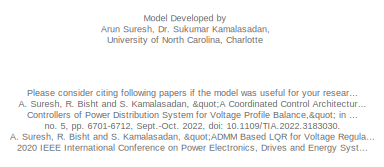
[diagram: root canvas - part 1/4, top left region]
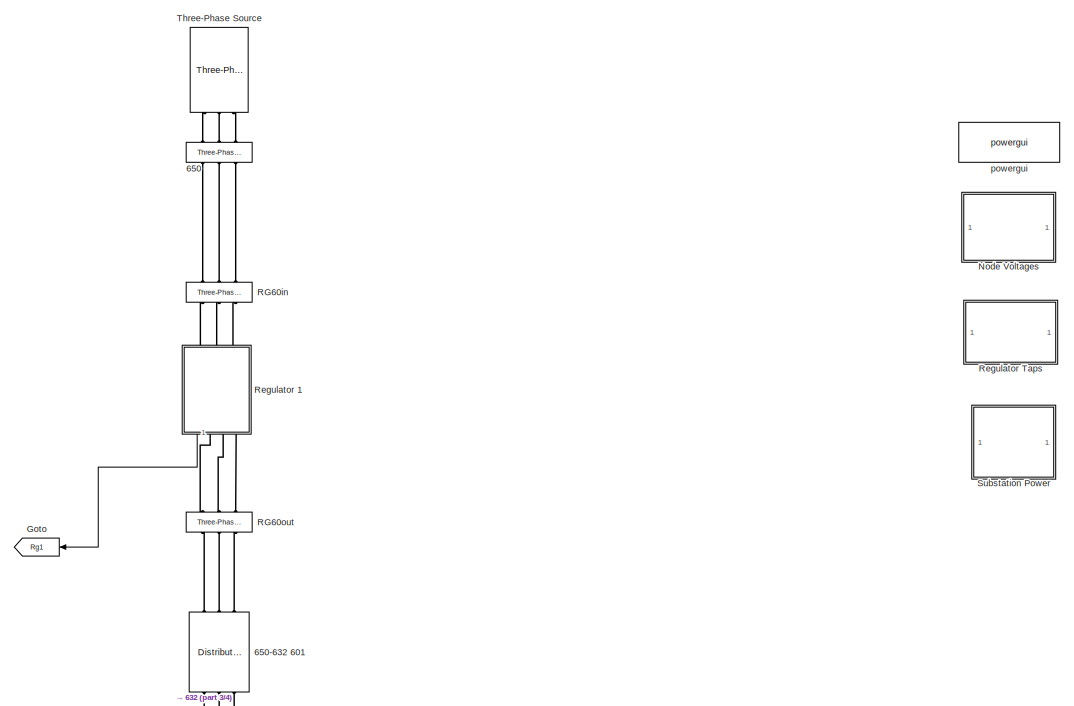
[diagram: root canvas - part 2/4, top right region]
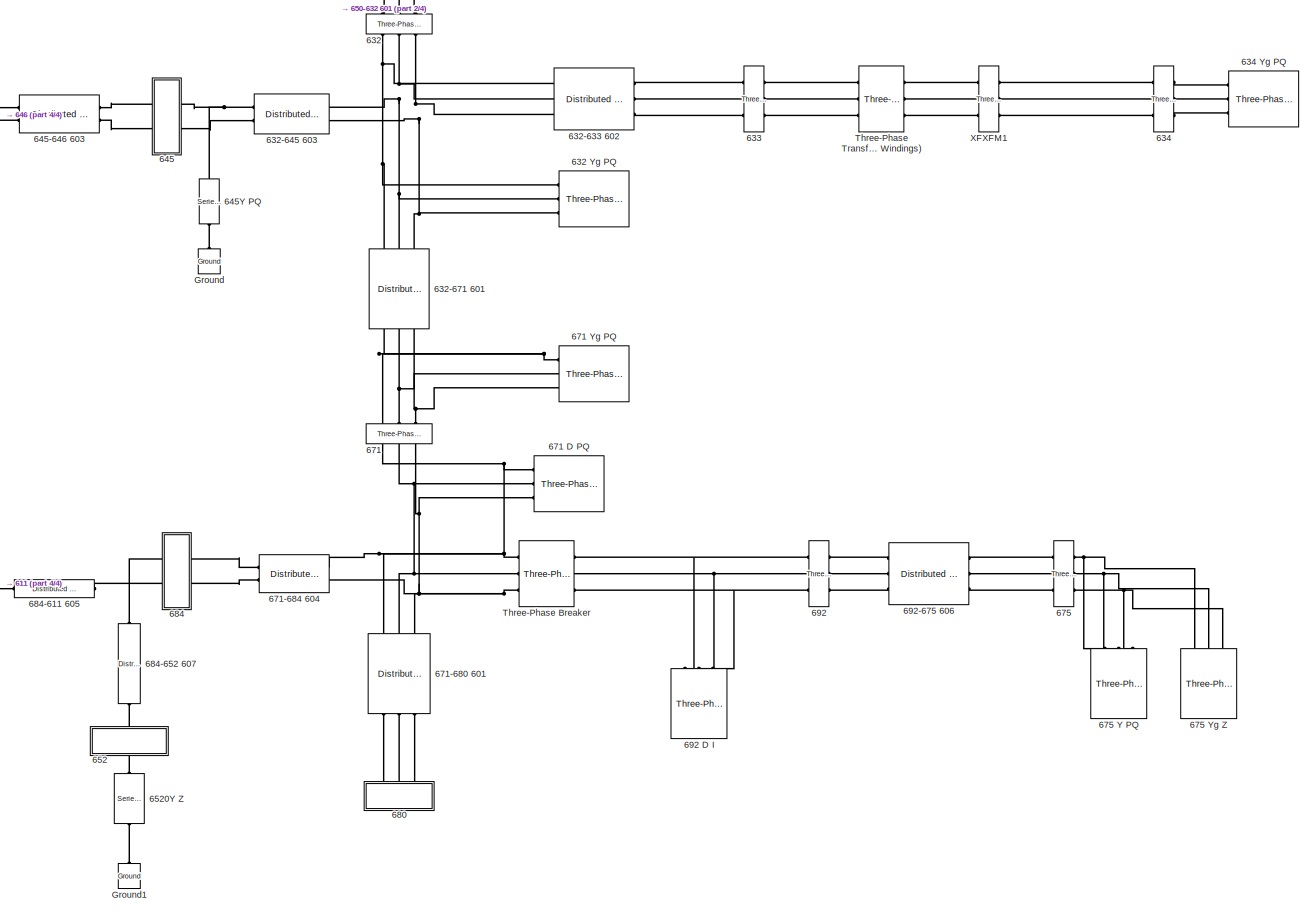
[diagram: root canvas - part 3/4, bottom center region]
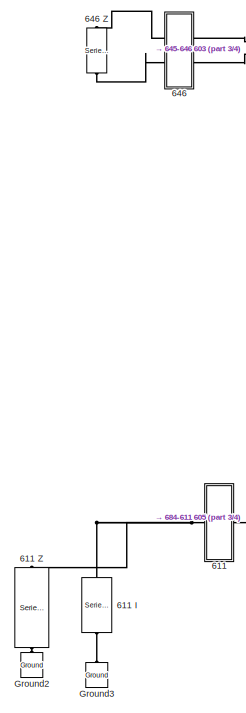
[diagram: root canvas - part 4/4, bottom left region]
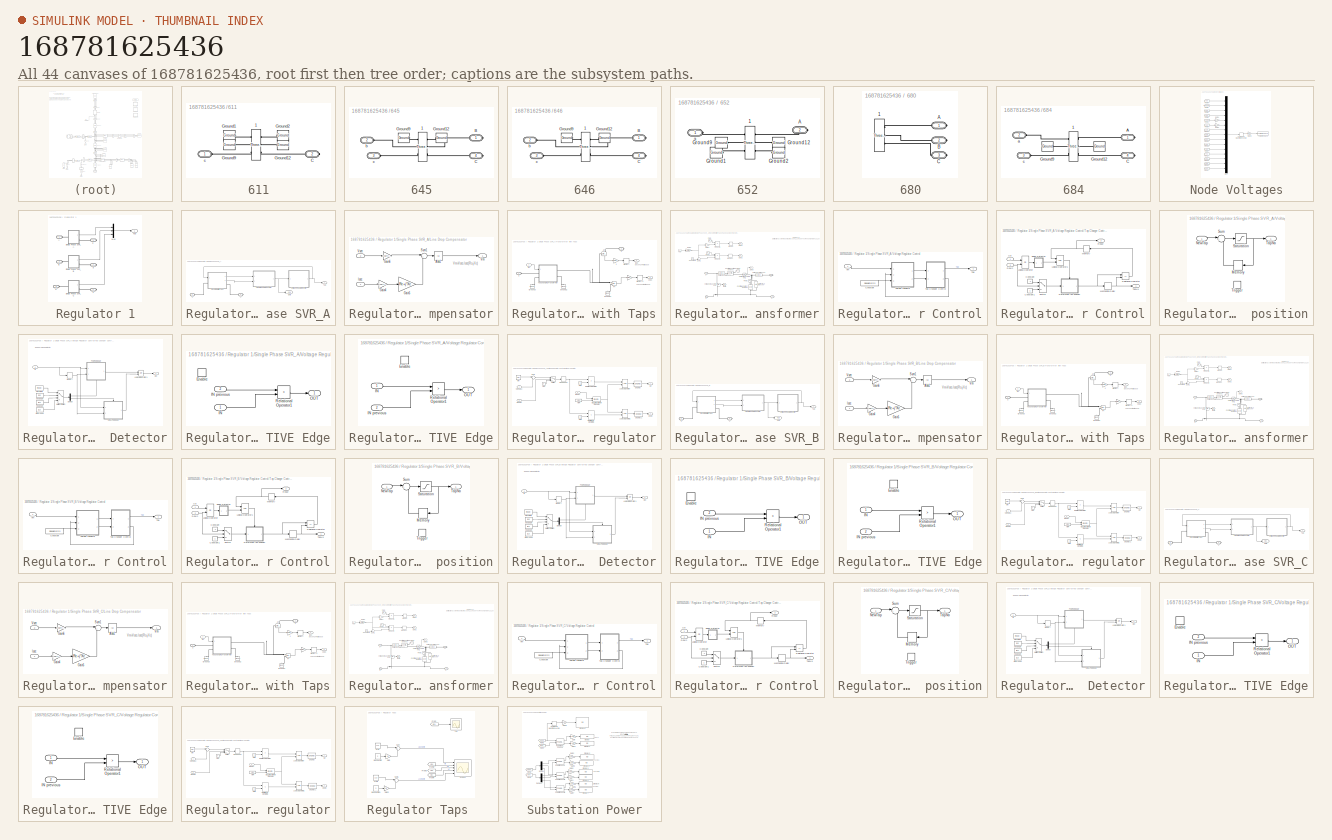
[diagram: thumbnail index - all 44 canvases of the model, root first then tree order]
MODEL slx_168781625436
KIND model
CONFIG AbsTol = auto
CONFIG EnableMultiTasking = off
CONFIG FixedStep = Ts
CONFIG InitFcn = a=1; % Loading Factor\nTs=0.1;% For Delay Blocks in Voltage Regulator Controls\n% phase to sequence conversion of RXB matrices\nc=1*exp(sqrt(-1)*(120*pi/180));\nT=[1 1 1;1 c*c c;1 c c*c];\nTinv=1/3*[1 1 1;1 c c*c;1 c*c c];\n\n% Simulation data for the IEEE 13 Node Test Feeder model\nmi2km = 1.60934;%  miles to km conversion\nft2km = 0.0003048; % feet to km conversion\nms2F = 1*1e-6/(2*pi*60);% microsiemens ...<+2469ch>
CONFIG MaxStep = auto
CONFIG MinStep = auto
CONFIG RelTol = 1e-3
CONFIG SampleTimeConstraint = Unconstrained
CONFIG Solver = VariableStepAuto
CONFIG SolverName = VariableStepAuto
CONFIG StartTime = 0.0
CONFIG StopTime = 100
BLOCK [SubSystem] 611
  Ports = [0, 0, 0, 0, 0, 1, 1]
  RequestExecContextInheritance = off
BLOCK [Reference] 611 I  REF=powerlib/Elements/Series RLC Load
  AttributesFormatString = \n
  Ports = [0, 0, 0, 0, 0, 1, 1]
  SourceBlock = powerlib/Elements/Series RLC Load
  SourceProductBaseCode = PS
  SourceProductName = Simscape Electrical
  SourceType = Series RLC Load
BLOCK [Reference] 611 Z  REF=powerlib/Elements/Series RLC Load
  AttributesFormatString = \n
  Ports = [0, 0, 0, 0, 0, 1, 1]
  SourceBlock = powerlib/Elements/Series RLC Load
  SourceProductBaseCode = PS
  SourceProductName = Simscape Electrical
  SourceType = Series RLC Load
BLOCK [Reference] 611/1  REF=powerlib/Measurements/Three-Phase
V-I Measurement
  Ports = [0, 0, 0, 0, 0, 3, 3]
  SourceBlock = powerlib/Measurements/Three-Phase\nV-I Measurement
  SourceProductBaseCode = PS
  SourceProductName = Simscape Electrical
  SourceType = Three-Phase VI Measurement
BLOCK [PMIOPort] 611/C
  Port = 2
  Side = Right
BLOCK [Reference] 611/Ground1  REF=powerlib/Elements/Ground
  Ports = [0, 0, 0, 0, 0, 1]
  SourceBlock = powerlib/Elements/Ground
  SourceProductBaseCode = PS
  SourceProductName = Simscape Electrical
  SourceType = Ground
BLOCK [Reference] 611/Ground12  REF=powerlib/Elements/Ground
  Ports = [0, 0, 0, 0, 0, 1]
  SourceBlock = powerlib/Elements/Ground
  SourceProductBaseCode = PS
  SourceProductName = Simscape Electrical
  SourceType = Ground
BLOCK [Reference] 611/Ground2  REF=powerlib/Elements/Ground
  Ports = [0, 0, 0, 0, 0, 1]
  SourceBlock = powerlib/Elements/Ground
  SourceProductBaseCode = PS
  SourceProductName = Simscape Electrical
  SourceType = Ground
BLOCK [Reference] 611/Ground9  REF=powerlib/Elements/Ground
  Ports = [0, 0, 0, 0, 0, 1]
  SourceBlock = powerlib/Elements/Ground
  SourceProductBaseCode = PS
  SourceProductName = Simscape Electrical
  SourceType = Ground
BLOCK [PMIOPort] 611/c
  Side = Left
BLOCK [Reference] 632  REF=powerlib/Measurements/Three-Phase
V-I Measurement
  Ports = [0, 0, 0, 0, 0, 3, 3]
  SourceBlock = powerlib/Measurements/Three-Phase\nV-I Measurement
  SourceProductBaseCode = PS
  SourceProductName = Simscape Electrical
  SourceType = Three-Phase VI Measurement
BLOCK [Reference] 632 Yg PQ  REF=powerlib/Elements/Three-Phase
Series RLC Load
  AttributesFormatString = \n
  Ports = [0, 0, 0, 0, 0, 3]
  SourceBlock = powerlib/Elements/Three-Phase\nSeries RLC Load
  SourceProductBaseCode = PS
  SourceProductName = Simscape Electrical
  SourceType = Three-Phase Series RLC Load
BLOCK [Reference] 632-633 602  REF=powerlib/Elements/Distributed Parameters Line
  Ports = [0, 0, 0, 0, 0, 3, 3]
  SourceBlock = powerlib/Elements/Distributed Parameters Line
  SourceProductBaseCode = PS
  SourceProductName = Simscape Power Systems
  SourceType = Distributed Parameters Line
BLOCK [Reference] 632-645 603  REF=powerlib/Elements/Distributed Parameters Line
  Ports = [0, 0, 0, 0, 0, 2, 2]
  SourceBlock = powerlib/Elements/Distributed Parameters Line
  SourceProductBaseCode = PS
  SourceProductName = Simscape Power Systems
  SourceType = Distributed Parameters Line
BLOCK [Reference] 632-671 601  REF=powerlib/Elements/Distributed Parameters Line
  Ports = [0, 0, 0, 0, 0, 3, 3]
  SourceBlock = powerlib/Elements/Distributed Parameters Line
  SourceProductBaseCode = PS
  SourceProductName = Simscape Power Systems
  SourceType = Distributed Parameters Line
BLOCK [Reference] 633  REF=powerlib/Measurements/Three-Phase
V-I Measurement
  Ports = [0, 0, 0, 0, 0, 3, 3]
  SourceBlock = powerlib/Measurements/Three-Phase\nV-I Measurement
  SourceProductBaseCode = PS
  SourceProductName = Simscape Electrical
  SourceType = Three-Phase VI Measurement
BLOCK [Reference] 634  REF=powerlib/Measurements/Three-Phase
V-I Measurement
  Ports = [0, 0, 0, 0, 0, 3, 3]
  SourceBlock = powerlib/Measurements/Three-Phase\nV-I Measurement
  SourceProductBaseCode = PS
  SourceProductName = Simscape Electrical
  SourceType = Three-Phase VI Measurement
BLOCK [Reference] 634 Yg PQ  REF=powerlib/Elements/Three-Phase
Series RLC Load
  AttributesFormatString = \n
  Ports = [0, 0, 0, 0, 0, 3]
  SourceBlock = powerlib/Elements/Three-Phase\nSeries RLC Load
  SourceProductBaseCode = PS
  SourceProductName = Simscape Electrical
  SourceType = Three-Phase Series RLC Load
BLOCK [SubSystem] 645
  Ports = [0, 0, 0, 0, 0, 2, 2]
  RequestExecContextInheritance = off
BLOCK [Reference] 645-646 603  REF=powerlib/Elements/Distributed Parameters Line
  Ports = [0, 0, 0, 0, 0, 2, 2]
  SourceBlock = powerlib/Elements/Distributed Parameters Line
  SourceProductBaseCode = PS
  SourceProductName = Simscape Power Systems
  SourceType = Distributed Parameters Line
BLOCK [Reference] 645/1  REF=powerlib/Measurements/Three-Phase
V-I Measurement
  Ports = [0, 0, 0, 0, 0, 3, 3]
  SourceBlock = powerlib/Measurements/Three-Phase\nV-I Measurement
  SourceProductBaseCode = PS
  SourceProductName = Simscape Electrical
  SourceType = Three-Phase VI Measurement
BLOCK [PMIOPort] 645/B
  Side = Right
BLOCK [PMIOPort] 645/C
  Port = 4
  Side = Right
BLOCK [Reference] 645/Ground12  REF=powerlib/Elements/Ground
  Ports = [0, 0, 0, 0, 0, 1]
  SourceBlock = powerlib/Elements/Ground
  SourceProductBaseCode = PS
  SourceProductName = Simscape Electrical
  SourceType = Ground
BLOCK [Reference] 645/Ground9  REF=powerlib/Elements/Ground
  Ports = [0, 0, 0, 0, 0, 1]
  SourceBlock = powerlib/Elements/Ground
  SourceProductBaseCode = PS
  SourceProductName = Simscape Electrical
  SourceType = Ground
BLOCK [PMIOPort] 645/b
  Port = 2
  Side = Left
BLOCK [PMIOPort] 645/c
  Port = 3
  Side = Left
BLOCK [Reference] 645Y PQ  REF=powerlib/Elements/Series RLC Load
  AttributesFormatString = \n
  Ports = [0, 0, 0, 0, 0, 1, 1]
  SourceBlock = powerlib/Elements/Series RLC Load
  SourceProductBaseCode = PS
  SourceProductName = Simscape Electrical
  SourceType = Series RLC Load
BLOCK [SubSystem] 646
  Ports = [0, 0, 0, 0, 0, 2, 2]
  RequestExecContextInheritance = off
BLOCK [Reference] 646 Z  REF=powerlib/Elements/Series RLC Load
  AttributesFormatString = \n
  Ports = [0, 0, 0, 0, 0, 1, 1]
  SourceBlock = powerlib/Elements/Series RLC Load
  SourceProductBaseCode = PS
  SourceProductName = Simscape Electrical
  SourceType = Series RLC Load
BLOCK [Reference] 646/1  REF=powerlib/Measurements/Three-Phase
V-I Measurement
  Ports = [0, 0, 0, 0, 0, 3, 3]
  SourceBlock = powerlib/Measurements/Three-Phase\nV-I Measurement
  SourceProductBaseCode = PS
  SourceProductName = Simscape Electrical
  SourceType = Three-Phase VI Measurement
BLOCK [PMIOPort] 646/B
  Side = Right
BLOCK [PMIOPort] 646/C
  Port = 4
  Side = Right
BLOCK [Reference] 646/Ground12  REF=powerlib/Elements/Ground
  Ports = [0, 0, 0, 0, 0, 1]
  SourceBlock = powerlib/Elements/Ground
  SourceProductBaseCode = PS
  SourceProductName = Simscape Electrical
  SourceType = Ground
BLOCK [Reference] 646/Ground9  REF=powerlib/Elements/Ground
  Ports = [0, 0, 0, 0, 0, 1]
  SourceBlock = powerlib/Elements/Ground
  SourceProductBaseCode = PS
  SourceProductName = Simscape Electrical
  SourceType = Ground
BLOCK [PMIOPort] 646/b
  Port = 2
  Side = Left
BLOCK [PMIOPort] 646/c
  Port = 3
  Side = Left
BLOCK [Reference] 650  REF=powerlib/Measurements/Three-Phase
V-I Measurement
  Ports = [0, 0, 0, 0, 0, 3, 3]
  SourceBlock = powerlib/Measurements/Three-Phase\nV-I Measurement
  SourceProductBaseCode = PS
  SourceProductName = Simscape Electrical
  SourceType = Three-Phase VI Measurement
BLOCK [Reference] 650-632 601  REF=powerlib/Elements/Distributed Parameters Line
  Ports = [0, 0, 0, 0, 0, 3, 3]
  SourceBlock = powerlib/Elements/Distributed Parameters Line
  SourceProductBaseCode = PS
  SourceProductName = Simscape Power Systems
  SourceType = Distributed Parameters Line
BLOCK [SubSystem] 652
  Ports = [0, 0, 0, 0, 0, 1, 1]
  RequestExecContextInheritance = off
BLOCK [Reference] 652/1  REF=powerlib/Measurements/Three-Phase
V-I Measurement
  Ports = [0, 0, 0, 0, 0, 3, 3]
  SourceBlock = powerlib/Measurements/Three-Phase\nV-I Measurement
  SourceProductBaseCode = PS
  SourceProductName = Simscape Electrical
  SourceType = Three-Phase VI Measurement
BLOCK [PMIOPort] 652/A
  Port = 2
  Side = Right
BLOCK [Reference] 652/Ground1  REF=powerlib/Elements/Ground
  Ports = [0, 0, 0, 0, 0, 1]
  SourceBlock = powerlib/Elements/Ground
  SourceProductBaseCode = PS
  SourceProductName = Simscape Electrical
  SourceType = Ground
BLOCK [Reference] 652/Ground12  REF=powerlib/Elements/Ground
  Ports = [0, 0, 0, 0, 0, 1]
  SourceBlock = powerlib/Elements/Ground
  SourceProductBaseCode = PS
  SourceProductName = Simscape Electrical
  SourceType = Ground
BLOCK [Reference] 652/Ground2  REF=powerlib/Elements/Ground
  Ports = [0, 0, 0, 0, 0, 1]
  SourceBlock = powerlib/Elements/Ground
  SourceProductBaseCode = PS
  SourceProductName = Simscape Electrical
  SourceType = Ground
BLOCK [Reference] 652/Ground9  REF=powerlib/Elements/Ground
  Ports = [0, 0, 0, 0, 0, 1]
  SourceBlock = powerlib/Elements/Ground
  SourceProductBaseCode = PS
  SourceProductName = Simscape Electrical
  SourceType = Ground
BLOCK [PMIOPort] 652/a
  Side = Left
BLOCK [Reference] 6520Y Z  REF=powerlib/Elements/Series RLC Load
  AttributesFormatString = \n
  Ports = [0, 0, 0, 0, 0, 1, 1]
  SourceBlock = powerlib/Elements/Series RLC Load
  SourceProductBaseCode = PS
  SourceProductName = Simscape Electrical
  SourceType = Series RLC Load
BLOCK [Reference] 671  REF=powerlib/Measurements/Three-Phase
V-I Measurement
  Ports = [0, 0, 0, 0, 0, 3, 3]
  SourceBlock = powerlib/Measurements/Three-Phase\nV-I Measurement
  SourceProductBaseCode = PS
  SourceProductName = Simscape Electrical
  SourceType = Three-Phase VI Measurement
BLOCK [Reference] 671 D PQ  REF=powerlib/Elements/Three-Phase
Series RLC Load
  AttributesFormatString = \n
  Ports = [0, 0, 0, 0, 0, 3]
  SourceBlock = powerlib/Elements/Three-Phase\nSeries RLC Load
  SourceProductBaseCode = PS
  SourceProductName = Simscape Electrical
  SourceType = Three-Phase Series RLC Load
BLOCK [Reference] 671 Yg PQ  REF=powerlib/Elements/Three-Phase
Series RLC Load
  AttributesFormatString = \n
  Ports = [0, 0, 0, 0, 0, 3]
  SourceBlock = powerlib/Elements/Three-Phase\nSeries RLC Load
  SourceProductBaseCode = PS
  SourceProductName = Simscape Electrical
  SourceType = Three-Phase Series RLC Load
BLOCK [Reference] 671-680 601  REF=powerlib/Elements/Distributed Parameters Line
  Ports = [0, 0, 0, 0, 0, 3, 3]
  SourceBlock = powerlib/Elements/Distributed Parameters Line
  SourceProductBaseCode = PS
  SourceProductName = Simscape Power Systems
  SourceType = Distributed Parameters Line
BLOCK [Reference] 671-684 604  REF=powerlib/Elements/Distributed Parameters Line
  Ports = [0, 0, 0, 0, 0, 2, 2]
  SourceBlock = powerlib/Elements/Distributed Parameters Line
  SourceProductBaseCode = PS
  SourceProductName = Simscape Power Systems
  SourceType = Distributed Parameters Line
BLOCK [Reference] 675  REF=powerlib/Measurements/Three-Phase
V-I Measurement
  Ports = [0, 0, 0, 0, 0, 3, 3]
  SourceBlock = powerlib/Measurements/Three-Phase\nV-I Measurement
  SourceProductBaseCode = PS
  SourceProductName = Simscape Electrical
  SourceType = Three-Phase VI Measurement
BLOCK [Reference] 675 Y PQ  REF=powerlib/Elements/Three-Phase
Series RLC Load
  AttributesFormatString = \n
  Ports = [0, 0, 0, 0, 0, 3]
  SourceBlock = powerlib/Elements/Three-Phase\nSeries RLC Load
  SourceProductBaseCode = PS
  SourceProductName = Simscape Electrical
  SourceType = Three-Phase Series RLC Load
BLOCK [Reference] 675 Yg Z  REF=powerlib/Elements/Three-Phase
Series RLC Load
  AttributesFormatString = \n
  Ports = [0, 0, 0, 0, 0, 3]
  SourceBlock = powerlib/Elements/Three-Phase\nSeries RLC Load
  SourceProductBaseCode = PS
  SourceProductName = Simscape Electrical
  SourceType = Three-Phase Series RLC Load
BLOCK [SubSystem] 680
  Ports = [0, 0, 0, 0, 0, 0, 3]
  RequestExecContextInheritance = off
BLOCK [Reference] 680/1  REF=powerlib/Measurements/Three-Phase
V-I Measurement
  Ports = [0, 0, 0, 0, 0, 3, 3]
  SourceBlock = powerlib/Measurements/Three-Phase\nV-I Measurement
  SourceProductBaseCode = PS
  SourceProductName = Simscape Electrical
  SourceType = Three-Phase VI Measurement
BLOCK [PMIOPort] 680/A
  Side = Right
BLOCK [PMIOPort] 680/B
  Port = 2
  Side = Right
BLOCK [PMIOPort] 680/C
  Port = 3
  Side = Right
BLOCK [SubSystem] 684
  Ports = [0, 0, 0, 0, 0, 2, 2]
  RequestExecContextInheritance = off
BLOCK [Reference] 684-611 605  REF=powerlib/Elements/Distributed Parameters Line
  Ports = [0, 0, 0, 0, 0, 1, 1]
  SourceBlock = powerlib/Elements/Distributed Parameters Line
  SourceProductBaseCode = PS
  SourceProductName = Simscape Power Systems
  SourceType = Distributed Parameters Line
BLOCK [Reference] 684-652 607  REF=powerlib/Elements/Distributed Parameters Line
  Ports = [0, 0, 0, 0, 0, 1, 1]
  SourceBlock = powerlib/Elements/Distributed Parameters Line
  SourceProductBaseCode = PS
  SourceProductName = Simscape Power Systems
  SourceType = Distributed Parameters Line
BLOCK [Reference] 684/1  REF=powerlib/Measurements/Three-Phase
V-I Measurement
  Ports = [0, 0, 0, 0, 0, 3, 3]
  SourceBlock = powerlib/Measurements/Three-Phase\nV-I Measurement
  SourceProductBaseCode = PS
  SourceProductName = Simscape Electrical
  SourceType = Three-Phase VI Measurement
BLOCK [PMIOPort] 684/A
  Side = Right
BLOCK [PMIOPort] 684/C
  Port = 4
  Side = Right
BLOCK [Reference] 684/Ground12  REF=powerlib/Elements/Ground
  Ports = [0, 0, 0, 0, 0, 1]
  SourceBlock = powerlib/Elements/Ground
  SourceProductBaseCode = PS
  SourceProductName = Simscape Electrical
  SourceType = Ground
BLOCK [Reference] 684/Ground9  REF=powerlib/Elements/Ground
  Ports = [0, 0, 0, 0, 0, 1]
  SourceBlock = powerlib/Elements/Ground
  SourceProductBaseCode = PS
  SourceProductName = Simscape Electrical
  SourceType = Ground
BLOCK [PMIOPort] 684/a
  Port = 2
  Side = Left
BLOCK [PMIOPort] 684/c
  Port = 3
  Side = Left
BLOCK [Reference] 692  REF=powerlib/Measurements/Three-Phase
V-I Measurement
  Ports = [0, 0, 0, 0, 0, 3, 3]
  SourceBlock = powerlib/Measurements/Three-Phase\nV-I Measurement
  SourceProductBaseCode = PS
  SourceProductName = Simscape Electrical
  SourceType = Three-Phase VI Measurement
BLOCK [Reference] 692 D I  REF=powerlib/Elements/Three-Phase
Series RLC Load
  AttributesFormatString = \n
  Ports = [0, 0, 0, 0, 0, 3]
  SourceBlock = powerlib/Elements/Three-Phase\nSeries RLC Load
  SourceProductBaseCode = PS
  SourceProductName = Simscape Electrical
  SourceType = Three-Phase Series RLC Load
BLOCK [Reference] 692-675 606  REF=powerlib/Elements/Distributed Parameters Line
  Ports = [0, 0, 0, 0, 0, 3, 3]
  SourceBlock = powerlib/Elements/Distributed Parameters Line
  SourceProductBaseCode = PS
  SourceProductName = Simscape Power Systems
  SourceType = Distributed Parameters Line
BLOCK [Goto] Goto
  GotoTag = Rg1
  TagVisibility = global
BLOCK [Reference] Ground  REF=powerlib/Elements/Ground
  Ports = [0, 0, 0, 0, 0, 1]
  SourceBlock = powerlib/Elements/Ground
  SourceProductBaseCode = PS
  SourceProductName = Simscape Electrical
  SourceType = Ground
BLOCK [Reference] Ground1  REF=powerlib/Elements/Ground
  Ports = [0, 0, 0, 0, 0, 1]
  SourceBlock = powerlib/Elements/Ground
  SourceProductBaseCode = PS
  SourceProductName = Simscape Electrical
  SourceType = Ground
BLOCK [Reference] Ground2  REF=powerlib/Elements/Ground
  Ports = [0, 0, 0, 0, 0, 1]
  SourceBlock = powerlib/Elements/Ground
  SourceProductBaseCode = PS
  SourceProductName = Simscape Electrical
  SourceType = Ground
BLOCK [Reference] Ground3  REF=powerlib/Elements/Ground
  Ports = [0, 0, 0, 0, 0, 1]
  SourceBlock = powerlib/Elements/Ground
  SourceProductBaseCode = PS
  SourceProductName = Simscape Electrical
  SourceType = Ground
BLOCK [SubSystem] Node Voltages
  Ports = []
  RequestExecContextInheritance = off
BLOCK [ComplexToMagnitudeAngle] Node Voltages/Complex to Magnitude-Angle
  Ports = [1, 2]
BLOCK [From] Node Voltages/From1
  GotoTag = XFXFM1
  TagVisibility = global
BLOCK [From] Node Voltages/From10
  GotoTag = V692
  TagVisibility = global
BLOCK [From] Node Voltages/From11
  GotoTag = V646
  TagVisibility = global
BLOCK [From] Node Voltages/From12
  GotoTag = V671
  TagVisibility = global
BLOCK [From] Node Voltages/From13
  GotoTag = V645
  TagVisibility = global
BLOCK [From] Node Voltages/From14
  GotoTag = V611
  TagVisibility = global
BLOCK [From] Node Voltages/From15
  GotoTag = V680
  TagVisibility = global
BLOCK [From] Node Voltages/From17
  GotoTag = V675
  TagVisibility = global
BLOCK [From] Node Voltages/From18
  GotoTag = V652
  TagVisibility = global
BLOCK [From] Node Voltages/From2
  GotoTag = RG60out
  TagVisibility = global
BLOCK [From] Node Voltages/From5
  GotoTag = V632
  TagVisibility = global
BLOCK [From] Node Voltages/From6
  GotoTag = V650
  TagVisibility = global
BLOCK [From] Node Voltages/From7
  GotoTag = V684
  TagVisibility = global
BLOCK [From] Node Voltages/From8
  GotoTag = V633
  TagVisibility = global
BLOCK [From] Node Voltages/From9
  GotoTag = V634
  TagVisibility = global
BLOCK [Gain] Node Voltages/Gain3
  Gain = 4160/480
  OutDataTypeStr = Inherit: Inherit via internal rule
  ParamDataTypeStr = Inherit: Inherit via internal rule
  SaturateOnIntegerOverflow = off
BLOCK [Gain] Node Voltages/Gain4
  Gain = 4160/480
  OutDataTypeStr = Inherit: Inherit via internal rule
  ParamDataTypeStr = Inherit: Inherit via internal rule
  SaturateOnIntegerOverflow = off
BLOCK [Gain] Node Voltages/Gain8
  Gain = 1/(4160/sqrt(3))*1/sqrt(2)
  OutDataTypeStr = Inherit: Inherit via internal rule
  ParamDataTypeStr = Inherit: Inherit via internal rule
  SaturateOnIntegerOverflow = off
BLOCK [Mux] Node Voltages/Mux
  DisplayOption = bar
  Inputs = 15
  Ports = [15, 1]
BLOCK [ToWorkspace] Node Voltages/To Workspace
  FixptAsFi = on
  MaxDataPoints = inf
  Ports = [1]
  SampleTime = 0.1
  VariableName = V13
BLOCK [Reference] RG60in  REF=powerlib/Measurements/Three-Phase
V-I Measurement
  Ports = [0, 0, 0, 0, 0, 3, 3]
  SourceBlock = powerlib/Measurements/Three-Phase\nV-I Measurement
  SourceProductBaseCode = PS
  SourceProductName = Simscape Electrical
  SourceType = Three-Phase VI Measurement
BLOCK [Reference] RG60out  REF=powerlib/Measurements/Three-Phase
V-I Measurement
  Ports = [0, 0, 0, 0, 0, 3, 3]
  SourceBlock = powerlib/Measurements/Three-Phase\nV-I Measurement
  SourceProductBaseCode = PS
  SourceProductName = Simscape Electrical
  SourceType = Three-Phase VI Measurement
BLOCK [SubSystem] Regulator 1
  Ports = [0, 1, 0, 0, 0, 3, 3]
  RequestExecContextInheritance = off
BLOCK [PMIOPort] Regulator 1/A
  Side = Left
BLOCK [PMIOPort] Regulator 1/B
  Port = 3
  Side = Left
BLOCK [PMIOPort] Regulator 1/C
  Port = 5
  Side = Left
BLOCK [Mux] Regulator 1/Mux
  DisplayOption = bar
  Inputs = 3
  Ports = [3, 1]
BLOCK [SubSystem] Regulator 1/Single Phase SVR_A
  LoadFcn = find_system(gcs,'FollowLinks', 'on', 'LookUnderMasks', 'all');
  Ports = [0, 1, 0, 0, 0, 1, 1]
  RequestExecContextInheritance = off
BLOCK [Goto] Regulator 1/Single Phase SVR_A/Goto
  GotoTag = Vr1a
  TagVisibility = global
BLOCK [PMIOPort] Regulator 1/Single Phase SVR_A/L
  Port = 2
  Side = Right
  Tag = PMCPort
BLOCK [SubSystem] Regulator 1/Single Phase SVR_A/Line Drop Compensator
  Ports = [2, 1]
  RequestExecContextInheritance = off
BLOCK [Abs] Regulator 1/Single Phase SVR_A/Line Drop Compensator/Abs1
  SaturateOnIntegerOverflow = off
BLOCK [Gain] Regulator 1/Single Phase SVR_A/Line Drop Compensator/Gain4
  Gain = 1/sqrt(2)
  OutDataTypeStr = Inherit: Inherit via internal rule
  ParamDataTypeStr = Inherit: Inherit via internal rule
  SaturateOnIntegerOverflow = off
BLOCK [Gain] Regulator 1/Single Phase SVR_A/Line Drop Compensator/Gain5
  Gain = Rc+j*Xc
  OutDataTypeStr = Inherit: Inherit via internal rule
  ParamDataTypeStr = Inherit: Inherit via internal rule
  SaturateOnIntegerOverflow = off
BLOCK [Gain] Regulator 1/Single Phase SVR_A/Line Drop Compensator/Gain6
  Gain = 1/sqrt(2)
  OutDataTypeStr = Inherit: Inherit via internal rule
  ParamDataTypeStr = Inherit: Inherit via internal rule
  SaturateOnIntegerOverflow = off
BLOCK [Inport] Regulator 1/Single Phase SVR_A/Line Drop Compensator/Isec
  IconDisplay = Port number
BLOCK [Sum] Regulator 1/Single Phase SVR_A/Line Drop Compensator/Sum1
  IconShape = round
  InputSameDT = off
  Inputs = |+-
  OutDataTypeStr = Inherit: Inherit via internal rule
  Ports = [2, 1]
  SaturateOnIntegerOverflow = off
BLOCK [Outport] Regulator 1/Single Phase SVR_A/Line Drop Compensator/Vm
  IconDisplay = Port number
BLOCK [Inport] Regulator 1/Single Phase SVR_A/Line Drop Compensator/Vsec
  IconDisplay = Port number
  Port = 2
BLOCK [PMIOPort] Regulator 1/Single Phase SVR_A/S
  Side = Left
  Tag = PMCPort
BLOCK [Outport] Regulator 1/Single Phase SVR_A/Tap
  IconDisplay = Port number
  VectorParamsAs1DForOutWhenUnconnected = off
BLOCK [SubSystem] Regulator 1/Single Phase SVR_A/Transformer with Taps
  Ports = [1, 2, 0, 0, 0, 1, 1]
  RequestExecContextInheritance = off
BLOCK [Gain] Regulator 1/Single Phase SVR_A/Transformer with Taps/    
  Gain = (1/ptRatio)
  OutDataTypeStr = Inherit: Inherit via internal rule
  ParamDataTypeStr = Inherit: Inherit via internal rule
  SaturateOnIntegerOverflow = off
BLOCK [Gain] Regulator 1/Single Phase SVR_A/Transformer with Taps/ 1
  Gain = (1/ctRatio)
  OutDataTypeStr = Inherit: Inherit via internal rule
  ParamDataTypeStr = Inherit: Inherit via internal rule
  SaturateOnIntegerOverflow = off
BLOCK [Reference] Regulator 1/Single Phase SVR_A/Transformer with Taps/CT  REF=powerlib/Measurements/Current Measurement
  Ports = [0, 1, 0, 0, 0, 1, 1]
  SourceBlock = powerlib/Measurements/Current Measurement
  SourceProductBaseCode = PS
  SourceProductName = Simscape Electrical
  SourceType = Current Measurement
BLOCK [Reference] Regulator 1/Single Phase SVR_A/Transformer with Taps/Ground1  REF=powerlib/Elements/Ground
  Ports = [0, 0, 0, 0, 0, 1]
  SourceBlock = powerlib/Elements/Ground
  SourceProductBaseCode = PS
  SourceProductName = Simscape Electrical
  SourceType = Ground
BLOCK [Reference] Regulator 1/Single Phase SVR_A/Transformer with Taps/Ground2  REF=powerlib/Elements/Ground
  Ports = [0, 0, 0, 0, 0, 1]
  SourceBlock = powerlib/Elements/Ground
  SourceProductBaseCode = PS
  SourceProductName = Simscape Electrical
  SourceType = Ground
BLOCK [Reference] Regulator 1/Single Phase SVR_A/Transformer with Taps/Ground3  REF=powerlib/Elements/Ground
  Ports = [0, 0, 0, 0, 0, 1]
  SourceBlock = powerlib/Elements/Ground
  SourceProductBaseCode = PS
  SourceProductName = Simscape Electrical
  SourceType = Ground
BLOCK [Outport] Regulator 1/Single Phase SVR_A/Transformer with Taps/Isec
  IconDisplay = Port number
BLOCK [PMIOPort] Regulator 1/Single Phase SVR_A/Transformer with Taps/L
  Side = Right
  Tag = PMCPort
BLOCK [Memory] Regulator 1/Single Phase SVR_A/Transformer with Taps/Memory
BLOCK [Memory] Regulator 1/Single Phase SVR_A/Transformer with Taps/Memory1
BLOCK [Reference] Regulator 1/Single Phase SVR_A/Transformer with Taps/PT  REF=powerlib/Measurements/Voltage Measurement
  Ports = [0, 1, 0, 0, 0, 2]
  SourceBlock = powerlib/Measurements/Voltage Measurement
  SourceProductBaseCode = PS
  SourceProductName = Simscape Electrical
  SourceType = Voltage Measurement
BLOCK [PMIOPort] Regulator 1/Single Phase SVR_A/Transformer with Taps/S
  Port = 2
  Side = Left
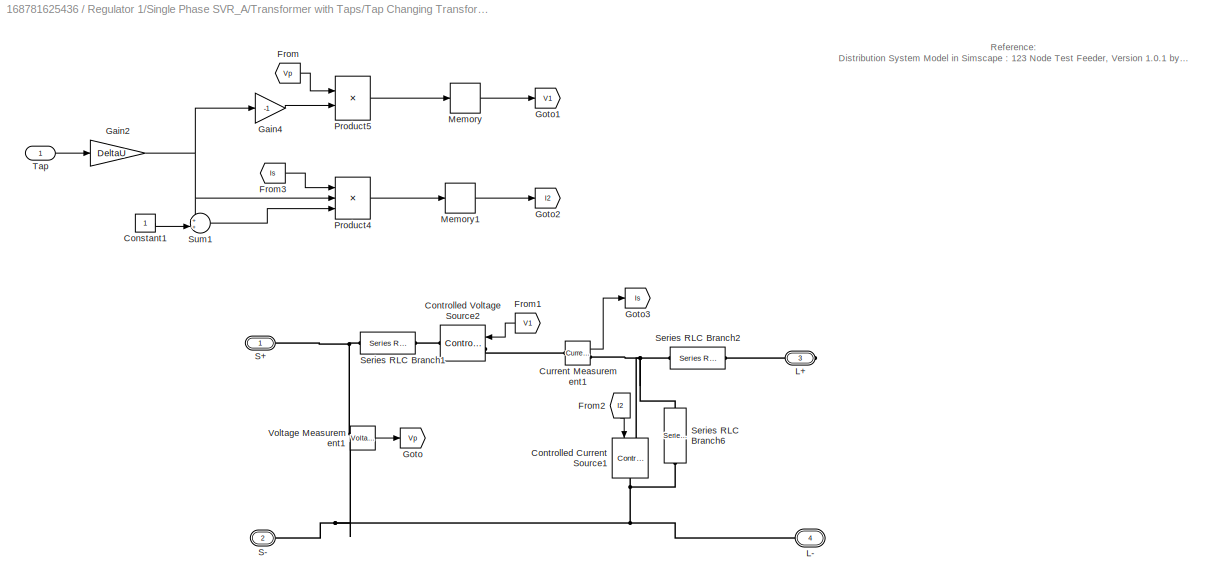
BLOCK [SubSystem] Regulator 1/Single Phase SVR_A/Transformer with Taps/Tap Changing Transformer
  Ports = [1, 0, 0, 0, 0, 2, 2]
  RequestExecContextInheritance = off
BLOCK [Constant] Regulator 1/Single Phase SVR_A/Transformer with Taps/Tap Changing Transformer/Constant1
BLOCK [Reference] Regulator 1/Single Phase SVR_A/Transformer with Taps/Tap Changing Transformer/Controlled Current Source1  REF=powerlib/Electrical
Sources/Controlled Current Source
  Ports = [1, 0, 0, 0, 0, 1, 1]
  SourceBlock = powerlib/Electrical\nSources/Controlled Current Source
  SourceProductBaseCode = PS
  SourceProductName = Simscape Electrical
  SourceType = Controlled Current Source
BLOCK [Reference] Regulator 1/Single Phase SVR_A/Transformer with Taps/Tap Changing Transformer/Controlled Voltage Source2  REF=powerlib/Electrical
Sources/Controlled Voltage Source
  Ports = [1, 0, 0, 0, 0, 1, 1]
  SourceBlock = powerlib/Electrical\nSources/Controlled Voltage Source
  SourceProductBaseCode = PS
  SourceProductName = Simscape Electrical
  SourceType = Controlled Voltage Source
BLOCK [Reference] Regulator 1/Single Phase SVR_A/Transformer with Taps/Tap Changing Transformer/Current Measurement1  REF=powerlib/Measurements/Current Measurement
  Ports = [0, 1, 0, 0, 0, 1, 1]
  SourceBlock = powerlib/Measurements/Current Measurement
  SourceProductBaseCode = PS
  SourceProductName = Simscape Electrical
  SourceType = Current Measurement
BLOCK [From] Regulator 1/Single Phase SVR_A/Transformer with Taps/Tap Changing Transformer/From
  GotoTag = Vp
BLOCK [From] Regulator 1/Single Phase SVR_A/Transformer with Taps/Tap Changing Transformer/From1
  GotoTag = V1
BLOCK [From] Regulator 1/Single Phase SVR_A/Transformer with Taps/Tap Changing Transformer/From2
  GotoTag = I2
BLOCK [From] Regulator 1/Single Phase SVR_A/Transformer with Taps/Tap Changing Transformer/From3
  GotoTag = Is
BLOCK [Gain] Regulator 1/Single Phase SVR_A/Transformer with Taps/Tap Changing Transformer/Gain2
  Gain = DeltaU
  OutDataTypeStr = Inherit: Inherit via internal rule
  ParamDataTypeStr = Inherit: Inherit via internal rule
  SaturateOnIntegerOverflow = off
BLOCK [Gain] Regulator 1/Single Phase SVR_A/Transformer with Taps/Tap Changing Transformer/Gain4
  Gain = -1
  OutDataTypeStr = Inherit: Inherit via internal rule
  ParamDataTypeStr = Inherit: Inherit via internal rule
  SaturateOnIntegerOverflow = off
BLOCK [Goto] Regulator 1/Single Phase SVR_A/Transformer with Taps/Tap Changing Transformer/Goto
  GotoTag = Vp
BLOCK [Goto] Regulator 1/Single Phase SVR_A/Transformer with Taps/Tap Changing Transformer/Goto1
  GotoTag = V1
BLOCK [Goto] Regulator 1/Single Phase SVR_A/Transformer with Taps/Tap Changing Transformer/Goto2
  GotoTag = I2
BLOCK [Goto] Regulator 1/Single Phase SVR_A/Transformer with Taps/Tap Changing Transformer/Goto3
  GotoTag = Is
BLOCK [PMIOPort] Regulator 1/Single Phase SVR_A/Transformer with Taps/Tap Changing Transformer/L+
  Port = 3
  Side = Right
BLOCK [PMIOPort] Regulator 1/Single Phase SVR_A/Transformer with Taps/Tap Changing Transformer/L-
  Port = 4
  Side = Right
BLOCK [Memory] Regulator 1/Single Phase SVR_A/Transformer with Taps/Tap Changing Transformer/Memory
BLOCK [Memory] Regulator 1/Single Phase SVR_A/Transformer with Taps/Tap Changing Transformer/Memory1
BLOCK [Product] Regulator 1/Single Phase SVR_A/Transformer with Taps/Tap Changing Transformer/Product4
  InputSameDT = off
  Inputs = **/
  OutDataTypeStr = Inherit: Inherit via internal rule
  Ports = [3, 1]
  SaturateOnIntegerOverflow = off
BLOCK [Product] Regulator 1/Single Phase SVR_A/Transformer with Taps/Tap Changing Transformer/Product5
  InputSameDT = off
  Inputs = **
  OutDataTypeStr = Inherit: Inherit via internal rule
  Ports = [2, 1]
  SaturateOnIntegerOverflow = off
BLOCK [PMIOPort] Regulator 1/Single Phase SVR_A/Transformer with Taps/Tap Changing Transformer/S+
  Side = Left
BLOCK [PMIOPort] Regulator 1/Single Phase SVR_A/Transformer with Taps/Tap Changing Transformer/S-
  Port = 2
  Side = Left
BLOCK [Reference] Regulator 1/Single Phase SVR_A/Transformer with Taps/Tap Changing Transformer/Series RLC Branch1  REF=powerlib/Elements/Series RLC Branch
  Ports = [0, 0, 0, 0, 0, 1, 1]
  SourceBlock = powerlib/Elements/Series RLC Branch
  SourceProductBaseCode = PS
  SourceProductName = Simscape Electrical
  SourceType = Series RLC Branch
BLOCK [Reference] Regulator 1/Single Phase SVR_A/Transformer with Taps/Tap Changing Transformer/Series RLC Branch2  REF=powerlib/Elements/Series RLC Branch
  Ports = [0, 0, 0, 0, 0, 1, 1]
  SourceBlock = powerlib/Elements/Series RLC Branch
  SourceProductBaseCode = PS
  SourceProductName = Simscape Electrical
  SourceType = Series RLC Branch
BLOCK [Reference] Regulator 1/Single Phase SVR_A/Transformer with Taps/Tap Changing Transformer/Series RLC Branch6  REF=powerlib/Elements/Series RLC Branch
  Ports = [0, 0, 0, 0, 0, 1, 1]
  SourceBlock = powerlib/Elements/Series RLC Branch
  SourceProductBaseCode = PS
  SourceProductName = Simscape Electrical
  SourceType = Series RLC Branch
BLOCK [Sum] Regulator 1/Single Phase SVR_A/Transformer with Taps/Tap Changing Transformer/Sum1
  IconShape = round
  InputSameDT = off
  Inputs = ++|
  OutDataTypeStr = Inherit: Inherit via internal rule
  Ports = [2, 1]
  SaturateOnIntegerOverflow = off
BLOCK [Inport] Regulator 1/Single Phase SVR_A/Transformer with Taps/Tap Changing Transformer/Tap
  IconDisplay = Port number
BLOCK [Reference] Regulator 1/Single Phase SVR_A/Transformer with Taps/Tap Changing Transformer/Voltage Measurement1  REF=powerlib/Measurements/Voltage Measurement
  Ports = [0, 1, 0, 0, 0, 2]
  SourceBlock = powerlib/Measurements/Voltage Measurement
  SourceProductBaseCode = PS
  SourceProductName = Simscape Electrical
  SourceType = Voltage Measurement
BLOCK [Outport] Regulator 1/Single Phase SVR_A/Transformer with Taps/Vsec
  IconDisplay = Port number
  Port = 2
BLOCK [Inport] Regulator 1/Single Phase SVR_A/Transformer with Taps/tap
  IconDisplay = Port number
BLOCK [SubSystem] Regulator 1/Single Phase SVR_A/Voltage Regulator Control
  Ports = [1, 1]
  RequestExecContextInheritance = off
BLOCK [Constant] Regulator 1/Single Phase SVR_A/Voltage Regulator Control/Constant
  Value = RegulatorOn
BLOCK [Outport] Regulator 1/Single Phase SVR_A/Voltage Regulator Control/Tap
  IconDisplay = Port number
BLOCK [SubSystem] Regulator 1/Single Phase SVR_A/Voltage Regulator Control/Tap Changer Control
  Ports = [2, 2]
  RequestExecContextInheritance = off
BLOCK [Constant] Regulator 1/Single Phase SVR_A/Voltage Regulator Control/Tap Changer Control/Constant
  Value = -1
BLOCK [Constant] Regulator 1/Single Phase SVR_A/Voltage Regulator Control/Tap Changer Control/Constant1
BLOCK [SubSystem] Regulator 1/Single Phase SVR_A/Voltage Regulator Control/Tap Changer Control/Determine tap position
  Ports = [1, 1, 0, 1]
  RequestExecContextInheritance = off
BLOCK [Memory] Regulator 1/Single Phase SVR_A/Voltage Regulator Control/Tap Changer Control/Determine tap position/Memory
  InheritSampleTime = on
  InitialCondition = InitialPosition
BLOCK [Inport] Regulator 1/Single Phase SVR_A/Voltage Regulator Control/Tap Changer Control/Determine tap position/NewTap
  IconDisplay = Port number
BLOCK [Saturate] Regulator 1/Single Phase SVR_A/Voltage Regulator Control/Tap Changer Control/Determine tap position/Saturation
  InputPortMap = u0
  LowerLimit = MinMaxTap(1)
  Ports = [1, 1]
  UpperLimit = MinMaxTap(2)
BLOCK [Sum] Regulator 1/Single Phase SVR_A/Voltage Regulator Control/Tap Changer Control/Determine tap position/Sum
  IconShape = round
  InputSameDT = off
  Inputs = |++
  OutDataTypeStr = Inherit: Inherit via internal rule
  Ports = [2, 1]
BLOCK [Outport] Regulator 1/Single Phase SVR_A/Voltage Regulator Control/Tap Changer Control/Determine tap position/TapNo
  IconDisplay = Port number
  InitialOutput = InitialPosition
  VectorParamsAs1DForOutWhenUnconnected = off
BLOCK [TriggerPort] Regulator 1/Single Phase SVR_A/Voltage Regulator Control/Tap Changer Control/Determine tap position/Trigger
  Ports = []
  VariantControl = Variant
BLOCK [Inport] Regulator 1/Single Phase SVR_A/Voltage Regulator Control/Tap Changer Control/Down 
  IconDisplay = Port number
  Port = 2
BLOCK [SubSystem] Regulator 1/Single Phase SVR_A/Voltage Regulator Control/Tap Changer Control/Edge Detector
  DialogController = POWERSYS.PowerSysDialog
  Ports = [1, 1]
  RequestExecContextInheritance = off
  ShowPortLabels = none
BLOCK [Constant] Regulator 1/Single Phase SVR_A/Voltage Regulator Control/Tap Changer Control/Edge Detector/Constant1
  Value = model
BLOCK [Demux] Regulator 1/Single Phase SVR_A/Voltage Regulator Control/Tap Changer Control/Edge Detector/Demux
  Outputs = 2
  Ports = [1, 2]
BLOCK [Inport] Regulator 1/Single Phase SVR_A/Voltage Regulator Control/Tap Changer Control/Edge Detector/In
  IconDisplay = Port number
BLOCK [Logic] Regulator 1/Single Phase SVR_A/Voltage Regulator Control/Tap Changer Control/Edge Detector/Logical Operator1
  Operator = OR
  Ports = [2, 1]
BLOCK [Memory] Regulator 1/Single Phase SVR_A/Voltage Regulator Control/Tap Changer Control/Edge Detector/Memory
  InitialCondition = ic
  LinearizeAsDelay = on
BLOCK [MultiPortSwitch] Regulator 1/Single Phase SVR_A/Voltage Regulator Control/Tap Changer Control/Edge Detector/Multiport Switch
  InputSameDT = off
  Ports = [4, 1]
BLOCK [SubSystem] Regulator 1/Single Phase SVR_A/Voltage Regulator Control/Tap Changer Control/Edge Detector/NEGATIVE Edge
  Ports = [2, 1, 1]
  RequestExecContextInheritance = off
  TreatAsAtomicUnit = on
BLOCK [EnablePort] Regulator 1/Single Phase SVR_A/Voltage Regulator Control/Tap Changer Control/Edge Detector/NEGATIVE Edge/Enable
  Ports = []
  PropagateVarSize = During execution
BLOCK [Inport] Regulator 1/Single Phase SVR_A/Voltage Regulator Control/Tap Changer Control/Edge Detector/NEGATIVE Edge/IN
  IconDisplay = Port number
BLOCK [Inport] Regulator 1/Single Phase SVR_A/Voltage Regulator Control/Tap Changer Control/Edge Detector/NEGATIVE Edge/IN previous
  IconDisplay = Port number
  Port = 2
BLOCK [Outport] Regulator 1/Single Phase SVR_A/Voltage Regulator Control/Tap Changer Control/Edge Detector/NEGATIVE Edge/OUT
  IconDisplay = Port number
  VectorParamsAs1DForOutWhenUnconnected = off
BLOCK [RelationalOperator] Regulator 1/Single Phase SVR_A/Voltage Regulator Control/Tap Changer Control/Edge Detector/NEGATIVE Edge/Relational Operator1
  Operator = >
  Ports = [2, 1]
BLOCK [Outport] Regulator 1/Single Phase SVR_A/Voltage Regulator Control/Tap Changer Control/Edge Detector/Out
  IconDisplay = Port number
  VectorParamsAs1DForOutWhenUnconnected = off
BLOCK [SubSystem] Regulator 1/Single Phase SVR_A/Voltage Regulator Control/Tap Changer Control/Edge Detector/POSITIVE Edge
  Ports = [2, 1, 1]
  RequestExecContextInheritance = off
  TreatAsAtomicUnit = on
BLOCK [EnablePort] Regulator 1/Single Phase SVR_A/Voltage Regulator Control/Tap Changer Control/Edge Detector/POSITIVE Edge/Enable
  Ports = []
  PropagateVarSize = During execution
BLOCK [Inport] Regulator 1/Single Phase SVR_A/Voltage Regulator Control/Tap Changer Control/Edge Detector/POSITIVE Edge/IN
  IconDisplay = Port number
BLOCK [Inport] Regulator 1/Single Phase SVR_A/Voltage Regulator Control/Tap Changer Control/Edge Detector/POSITIVE Edge/IN previous
  IconDisplay = Port number
  Port = 2
BLOCK [Outport] Regulator 1/Single Phase SVR_A/Voltage Regulator Control/Tap Changer Control/Edge Detector/POSITIVE Edge/OUT
  IconDisplay = Port number
  VectorParamsAs1DForOutWhenUnconnected = off
BLOCK [RelationalOperator] Regulator 1/Single Phase SVR_A/Voltage Regulator Control/Tap Changer Control/Edge Detector/POSITIVE Edge/Relational Operator1
  Operator = >
  Ports = [2, 1]
BLOCK [Constant] Regulator 1/Single Phase SVR_A/Voltage Regulator Control/Tap Changer Control/Edge Detector/either edge
  Value = [1 1]
BLOCK [Constant] Regulator 1/Single Phase SVR_A/Voltage Regulator Control/Tap Changer Control/Edge Detector/neg. edge
  Value = [0 1]
BLOCK [Constant] Regulator 1/Single Phase SVR_A/Voltage Regulator Control/Tap Changer Control/Edge Detector/pos. edge
  Value = [1 0]
BLOCK [Logic] Regulator 1/Single Phase SVR_A/Voltage Regulator Control/Tap Changer Control/Logical Operator
  AllPortsSameDT = off
  Operator = OR
  Ports = [2, 1]
BLOCK [Logic] Regulator 1/Single Phase SVR_A/Voltage Regulator Control/Tap Changer Control/Logical Operator1
  AllPortsSameDT = off
  Ports = [2, 1]
BLOCK [TransportDelay] Regulator 1/Single Phase SVR_A/Voltage Regulator Control/Tap Changer Control/Mechanical Delay
  BufferSize = 5120
  DelayTime = MecDelay
  InitialOutput = InitialPosition
  Ports = [1, 1]
BLOCK [Memory] Regulator 1/Single Phase SVR_A/Voltage Regulator Control/Tap Changer Control/Memory
  InheritSampleTime = on
  InitialCondition = 1
BLOCK [Outport] Regulator 1/Single Phase SVR_A/Voltage Regulator Control/Tap Changer Control/Ready
  IconDisplay = Port number
  Port = 2
  VectorParamsAs1DForOutWhenUnconnected = off
BLOCK [RelationalOperator] Regulator 1/Single Phase SVR_A/Voltage Regulator Control/Tap Changer Control/Relational Operator
  InputSameDT = off
  Operator = ==
  OutDataTypeStr = float('double')
  Ports = [2, 1]
BLOCK [Switch] Regulator 1/Single Phase SVR_A/Voltage Regulator Control/Tap Changer Control/Switch
  InputSameDT = off
  Threshold = 0.5
BLOCK [Outport] Regulator 1/Single Phase SVR_A/Voltage Regulator Control/Tap Changer Control/TapNo
  IconDisplay = Port number
  VectorParamsAs1DForOutWhenUnconnected = off
BLOCK [Inport] Regulator 1/Single Phase SVR_A/Voltage Regulator Control/Tap Changer Control/Up 
  IconDisplay = Port number
BLOCK [Inport] Regulator 1/Single Phase SVR_A/Voltage Regulator Control/Vm
  IconDisplay = Port number
BLOCK [SubSystem] Regulator 1/Single Phase SVR_A/Voltage Regulator Control/Voltage regulator
  Ports = [3, 2]
  RequestExecContextInheritance = off
BLOCK [DeadZone] Regulator 1/Single Phase SVR_A/Voltage Regulator Control/Voltage regulator/Dead Zone
  LowerValue = -DeadBand/2
  UpperValue = +DeadBand/2
BLOCK [Reference] Regulator 1/Single Phase SVR_A/Voltage Regulator Control/Voltage regulator/Discrete Variable Time Delay  REF=powerlib_meascontrol/Additional Components/Discrete Variable
Time Delay
  Ports = [2, 1]
  SourceBlock = powerlib_meascontrol/Additional Components/Discrete Variable\nTime Delay
  SourceProductBaseCode = PS
  SourceProductName = Simscape Electrical
  SourceType = Discrete Variable Time Delay
BLOCK [Outport] Regulator 1/Single Phase SVR_A/Voltage Regulator Control/Voltage regulator/Down
  IconDisplay = Port number
  Port = 2
  VectorParamsAs1DForOutWhenUnconnected = off
BLOCK [Logic] Regulator 1/Single Phase SVR_A/Voltage Regulator Control/Voltage regulator/Logical Operator
  AllPortsSameDT = off
  Ports = [2, 1]
BLOCK [Logic] Regulator 1/Single Phase SVR_A/Voltage Regulator Control/Voltage regulator/Logical Operator1
  AllPortsSameDT = off
  Ports = [2, 1]
BLOCK [Reference] Regulator 1/Single Phase SVR_A/Voltage Regulator Control/Voltage regulator/On Delay  REF=powerlib_meascontrol/Logic/On Delay
  Ports = [1, 1]
  SourceBlock = powerlib_meascontrol/Logic/On Delay
  SourceProductBaseCode = PS
  SourceProductName = Simscape Electrical
  SourceType = On/Off Delay
BLOCK [Reference] Regulator 1/Single Phase SVR_A/Voltage Regulator Control/Voltage regulator/On Delay1  REF=powerlib_meascontrol/Logic/On Delay
  Ports = [1, 1]
  SourceBlock = powerlib_meascontrol/Logic/On Delay
  SourceProductBaseCode = PS
  SourceProductName = Simscape Electrical
  SourceType = On/Off Delay
BLOCK [Inport] Regulator 1/Single Phase SVR_A/Voltage Regulator Control/Voltage regulator/Ready
  IconDisplay = Port number
  Port = 2
BLOCK [Inport] Regulator 1/Single Phase SVR_A/Voltage Regulator Control/Voltage regulator/RegOn
  IconDisplay = Port number
  Port = 3
BLOCK [RelationalOperator] Regulator 1/Single Phase SVR_A/Voltage Regulator Control/Voltage regulator/Relational Operator
  InputSameDT = off
  Operator = >
  Ports = [2, 1]
BLOCK [RelationalOperator] Regulator 1/Single Phase SVR_A/Voltage Regulator Control/Voltage regulator/Relational Operator1
  InputSameDT = off
  Operator = <
  Ports = [2, 1]
BLOCK [Sum] Regulator 1/Single Phase SVR_A/Voltage Regulator Control/Voltage regulator/Sum
  IconShape = round
  InputSameDT = off
  Inputs = |+-
  OutDataTypeStr = Inherit: Inherit via internal rule
  Ports = [2, 1]
BLOCK [Switch] Regulator 1/Single Phase SVR_A/Voltage Regulator Control/Voltage regulator/Switch
  InputSameDT = off
  Threshold = 1.5
BLOCK [Outport] Regulator 1/Single Phase SVR_A/Voltage Regulator Control/Voltage regulator/Up
  IconDisplay = Port number
  VectorParamsAs1DForOutWhenUnconnected = off
BLOCK [Inport] Regulator 1/Single Phase SVR_A/Voltage Regulator Control/Voltage regulator/Vmes (pu)
  IconDisplay = Port number
BLOCK [Constant] Regulator 1/Single Phase SVR_A/Voltage Regulator Control/Voltage regulator/Vref
  Value = Vref
BLOCK [Constant] Regulator 1/Single Phase SVR_A/Voltage Regulator Control/Voltage regulator/Vref1
  Value = 0
BLOCK [Constant] Regulator 1/Single Phase SVR_A/Voltage Regulator Control/Voltage regulator/Vref2
  Value = 0
BLOCK [Constant] Regulator 1/Single Phase SVR_A/Voltage Regulator Control/Voltage regulator/Vref3
  Value = 0
BLOCK [Constant] Regulator 1/Single Phase SVR_A/Voltage Regulator Control/Voltage regulator/Vref4
  Value = 3/60
BLOCK [SubSystem] Regulator 1/Single Phase SVR_B
  LoadFcn = find_system(gcs,'FollowLinks', 'on', 'LookUnderMasks', 'all');
  Ports = [0, 1, 0, 0, 0, 1, 1]
  RequestExecContextInheritance = off
BLOCK [Goto] Regulator 1/Single Phase SVR_B/Goto
  GotoTag = Vr1b
  TagVisibility = global
BLOCK [PMIOPort] Regulator 1/Single Phase SVR_B/L
  Port = 2
  Side = Right
  Tag = PMCPort
BLOCK [SubSystem] Regulator 1/Single Phase SVR_B/Line Drop Compensator
  Ports = [2, 1]
  RequestExecContextInheritance = off
BLOCK [Abs] Regulator 1/Single Phase SVR_B/Line Drop Compensator/Abs1
  SaturateOnIntegerOverflow = off
BLOCK [Gain] Regulator 1/Single Phase SVR_B/Line Drop Compensator/Gain4
  Gain = 1/sqrt(2)
  OutDataTypeStr = Inherit: Inherit via internal rule
  ParamDataTypeStr = Inherit: Inherit via internal rule
  SaturateOnIntegerOverflow = off
BLOCK [Gain] Regulator 1/Single Phase SVR_B/Line Drop Compensator/Gain5
  Gain = Rc+j*Xc
  OutDataTypeStr = Inherit: Inherit via internal rule
  ParamDataTypeStr = Inherit: Inherit via internal rule
  SaturateOnIntegerOverflow = off
BLOCK [Gain] Regulator 1/Single Phase SVR_B/Line Drop Compensator/Gain6
  Gain = 1/sqrt(2)
  OutDataTypeStr = Inherit: Inherit via internal rule
  ParamDataTypeStr = Inherit: Inherit via internal rule
  SaturateOnIntegerOverflow = off
BLOCK [Inport] Regulator 1/Single Phase SVR_B/Line Drop Compensator/Isec
  IconDisplay = Port number
BLOCK [Sum] Regulator 1/Single Phase SVR_B/Line Drop Compensator/Sum1
  IconShape = round
  InputSameDT = off
  Inputs = |+-
  OutDataTypeStr = Inherit: Inherit via internal rule
  Ports = [2, 1]
  SaturateOnIntegerOverflow = off
BLOCK [Outport] Regulator 1/Single Phase SVR_B/Line Drop Compensator/Vm
  IconDisplay = Port number
BLOCK [Inport] Regulator 1/Single Phase SVR_B/Line Drop Compensator/Vsec
  IconDisplay = Port number
  Port = 2
BLOCK [PMIOPort] Regulator 1/Single Phase SVR_B/S
  Side = Left
  Tag = PMCPort
BLOCK [Outport] Regulator 1/Single Phase SVR_B/Tap
  IconDisplay = Port number
  VectorParamsAs1DForOutWhenUnconnected = off
BLOCK [SubSystem] Regulator 1/Single Phase SVR_B/Transformer with Taps
  Ports = [1, 2, 0, 0, 0, 1, 1]
  RequestExecContextInheritance = off
BLOCK [Gain] Regulator 1/Single Phase SVR_B/Transformer with Taps/    
  Gain = (1/ptRatio)
  OutDataTypeStr = Inherit: Inherit via internal rule
  ParamDataTypeStr = Inherit: Inherit via internal rule
  SaturateOnIntegerOverflow = off
BLOCK [Gain] Regulator 1/Single Phase SVR_B/Transformer with Taps/ 1
  Gain = (1/ctRatio)
  OutDataTypeStr = Inherit: Inherit via internal rule
  ParamDataTypeStr = Inherit: Inherit via internal rule
  SaturateOnIntegerOverflow = off
BLOCK [Reference] Regulator 1/Single Phase SVR_B/Transformer with Taps/CT  REF=powerlib/Measurements/Current Measurement
  Ports = [0, 1, 0, 0, 0, 1, 1]
  SourceBlock = powerlib/Measurements/Current Measurement
  SourceProductBaseCode = PS
  SourceProductName = Simscape Electrical
  SourceType = Current Measurement
BLOCK [Reference] Regulator 1/Single Phase SVR_B/Transformer with Taps/Ground1  REF=powerlib/Elements/Ground
  Ports = [0, 0, 0, 0, 0, 1]
  SourceBlock = powerlib/Elements/Ground
  SourceProductBaseCode = PS
  SourceProductName = Simscape Electrical
  SourceType = Ground
BLOCK [Reference] Regulator 1/Single Phase SVR_B/Transformer with Taps/Ground2  REF=powerlib/Elements/Ground
  Ports = [0, 0, 0, 0, 0, 1]
  SourceBlock = powerlib/Elements/Ground
  SourceProductBaseCode = PS
  SourceProductName = Simscape Electrical
  SourceType = Ground
BLOCK [Reference] Regulator 1/Single Phase SVR_B/Transformer with Taps/Ground3  REF=powerlib/Elements/Ground
  Ports = [0, 0, 0, 0, 0, 1]
  SourceBlock = powerlib/Elements/Ground
  SourceProductBaseCode = PS
  SourceProductName = Simscape Electrical
  SourceType = Ground
BLOCK [Outport] Regulator 1/Single Phase SVR_B/Transformer with Taps/Isec
  IconDisplay = Port number
BLOCK [PMIOPort] Regulator 1/Single Phase SVR_B/Transformer with Taps/L
  Side = Right
  Tag = PMCPort
BLOCK [Memory] Regulator 1/Single Phase SVR_B/Transformer with Taps/Memory
BLOCK [Memory] Regulator 1/Single Phase SVR_B/Transformer with Taps/Memory1
BLOCK [Reference] Regulator 1/Single Phase SVR_B/Transformer with Taps/PT  REF=powerlib/Measurements/Voltage Measurement
  Ports = [0, 1, 0, 0, 0, 2]
  SourceBlock = powerlib/Measurements/Voltage Measurement
  SourceProductBaseCode = PS
  SourceProductName = Simscape Electrical
  SourceType = Voltage Measurement
BLOCK [PMIOPort] Regulator 1/Single Phase SVR_B/Transformer with Taps/S
  Port = 2
  Side = Left
BLOCK [SubSystem] Regulator 1/Single Phase SVR_B/Transformer with Taps/Tap Changing Transformer
  Ports = [1, 0, 0, 0, 0, 2, 2]
  RequestExecContextInheritance = off
BLOCK [Constant] Regulator 1/Single Phase SVR_B/Transformer with Taps/Tap Changing Transformer/Constant1
BLOCK [Reference] Regulator 1/Single Phase SVR_B/Transformer with Taps/Tap Changing Transformer/Controlled Current Source1  REF=powerlib/Electrical
Sources/Controlled Current Source
  Ports = [1, 0, 0, 0, 0, 1, 1]
  SourceBlock = powerlib/Electrical\nSources/Controlled Current Source
  SourceProductBaseCode = PS
  SourceProductName = Simscape Electrical
  SourceType = Controlled Current Source
BLOCK [Reference] Regulator 1/Single Phase SVR_B/Transformer with Taps/Tap Changing Transformer/Controlled Voltage Source2  REF=powerlib/Electrical
Sources/Controlled Voltage Source
  Ports = [1, 0, 0, 0, 0, 1, 1]
  SourceBlock = powerlib/Electrical\nSources/Controlled Voltage Source
  SourceProductBaseCode = PS
  SourceProductName = Simscape Electrical
  SourceType = Controlled Voltage Source
BLOCK [Reference] Regulator 1/Single Phase SVR_B/Transformer with Taps/Tap Changing Transformer/Current Measurement1  REF=powerlib/Measurements/Current Measurement
  Ports = [0, 1, 0, 0, 0, 1, 1]
  SourceBlock = powerlib/Measurements/Current Measurement
  SourceProductBaseCode = PS
  SourceProductName = Simscape Electrical
  SourceType = Current Measurement
BLOCK [From] Regulator 1/Single Phase SVR_B/Transformer with Taps/Tap Changing Transformer/From
  GotoTag = Vp
BLOCK [From] Regulator 1/Single Phase SVR_B/Transformer with Taps/Tap Changing Transformer/From1
  GotoTag = V1
BLOCK [From] Regulator 1/Single Phase SVR_B/Transformer with Taps/Tap Changing Transformer/From2
  GotoTag = I2
BLOCK [From] Regulator 1/Single Phase SVR_B/Transformer with Taps/Tap Changing Transformer/From3
  GotoTag = Is
BLOCK [Gain] Regulator 1/Single Phase SVR_B/Transformer with Taps/Tap Changing Transformer/Gain2
  Gain = DeltaU
  OutDataTypeStr = Inherit: Inherit via internal rule
  ParamDataTypeStr = Inherit: Inherit via internal rule
  SaturateOnIntegerOverflow = off
BLOCK [Gain] Regulator 1/Single Phase SVR_B/Transformer with Taps/Tap Changing Transformer/Gain4
  Gain = -1
  OutDataTypeStr = Inherit: Inherit via internal rule
  ParamDataTypeStr = Inherit: Inherit via internal rule
  SaturateOnIntegerOverflow = off
BLOCK [Goto] Regulator 1/Single Phase SVR_B/Transformer with Taps/Tap Changing Transformer/Goto
  GotoTag = Vp
BLOCK [Goto] Regulator 1/Single Phase SVR_B/Transformer with Taps/Tap Changing Transformer/Goto1
  GotoTag = V1
BLOCK [Goto] Regulator 1/Single Phase SVR_B/Transformer with Taps/Tap Changing Transformer/Goto2
  GotoTag = I2
BLOCK [Goto] Regulator 1/Single Phase SVR_B/Transformer with Taps/Tap Changing Transformer/Goto3
  GotoTag = Is
BLOCK [PMIOPort] Regulator 1/Single Phase SVR_B/Transformer with Taps/Tap Changing Transformer/L+
  Port = 3
  Side = Right
BLOCK [PMIOPort] Regulator 1/Single Phase SVR_B/Transformer with Taps/Tap Changing Transformer/L-
  Port = 4
  Side = Right
BLOCK [Memory] Regulator 1/Single Phase SVR_B/Transformer with Taps/Tap Changing Transformer/Memory
BLOCK [Memory] Regulator 1/Single Phase SVR_B/Transformer with Taps/Tap Changing Transformer/Memory1
BLOCK [Product] Regulator 1/Single Phase SVR_B/Transformer with Taps/Tap Changing Transformer/Product4
  InputSameDT = off
  Inputs = **/
  OutDataTypeStr = Inherit: Inherit via internal rule
  Ports = [3, 1]
  SaturateOnIntegerOverflow = off
BLOCK [Product] Regulator 1/Single Phase SVR_B/Transformer with Taps/Tap Changing Transformer/Product5
  InputSameDT = off
  Inputs = **
  OutDataTypeStr = Inherit: Inherit via internal rule
  Ports = [2, 1]
  SaturateOnIntegerOverflow = off
BLOCK [PMIOPort] Regulator 1/Single Phase SVR_B/Transformer with Taps/Tap Changing Transformer/S+
  Side = Left
BLOCK [PMIOPort] Regulator 1/Single Phase SVR_B/Transformer with Taps/Tap Changing Transformer/S-
  Port = 2
  Side = Left
BLOCK [Reference] Regulator 1/Single Phase SVR_B/Transformer with Taps/Tap Changing Transformer/Series RLC Branch1  REF=powerlib/Elements/Series RLC Branch
  Ports = [0, 0, 0, 0, 0, 1, 1]
  SourceBlock = powerlib/Elements/Series RLC Branch
  SourceProductBaseCode = PS
  SourceProductName = Simscape Electrical
  SourceType = Series RLC Branch
BLOCK [Reference] Regulator 1/Single Phase SVR_B/Transformer with Taps/Tap Changing Transformer/Series RLC Branch2  REF=powerlib/Elements/Series RLC Branch
  Ports = [0, 0, 0, 0, 0, 1, 1]
  SourceBlock = powerlib/Elements/Series RLC Branch
  SourceProductBaseCode = PS
  SourceProductName = Simscape Electrical
  SourceType = Series RLC Branch
BLOCK [Reference] Regulator 1/Single Phase SVR_B/Transformer with Taps/Tap Changing Transformer/Series RLC Branch6  REF=powerlib/Elements/Series RLC Branch
  Ports = [0, 0, 0, 0, 0, 1, 1]
  SourceBlock = powerlib/Elements/Series RLC Branch
  SourceProductBaseCode = PS
  SourceProductName = Simscape Electrical
  SourceType = Series RLC Branch
BLOCK [Sum] Regulator 1/Single Phase SVR_B/Transformer with Taps/Tap Changing Transformer/Sum1
  IconShape = round
  InputSameDT = off
  Inputs = ++|
  OutDataTypeStr = Inherit: Inherit via internal rule
  Ports = [2, 1]
  SaturateOnIntegerOverflow = off
BLOCK [Inport] Regulator 1/Single Phase SVR_B/Transformer with Taps/Tap Changing Transformer/Tap
  IconDisplay = Port number
BLOCK [Reference] Regulator 1/Single Phase SVR_B/Transformer with Taps/Tap Changing Transformer/Voltage Measurement1  REF=powerlib/Measurements/Voltage Measurement
  Ports = [0, 1, 0, 0, 0, 2]
  SourceBlock = powerlib/Measurements/Voltage Measurement
  SourceProductBaseCode = PS
  SourceProductName = Simscape Electrical
  SourceType = Voltage Measurement
BLOCK [Outport] Regulator 1/Single Phase SVR_B/Transformer with Taps/Vsec
  IconDisplay = Port number
  Port = 2
BLOCK [Inport] Regulator 1/Single Phase SVR_B/Transformer with Taps/tap
  IconDisplay = Port number
BLOCK [SubSystem] Regulator 1/Single Phase SVR_B/Voltage Regulator Control
  Ports = [1, 1]
  RequestExecContextInheritance = off
BLOCK [Constant] Regulator 1/Single Phase SVR_B/Voltage Regulator Control/Constant
  Value = RegulatorOn
BLOCK [Outport] Regulator 1/Single Phase SVR_B/Voltage Regulator Control/Tap
  IconDisplay = Port number
BLOCK [SubSystem] Regulator 1/Single Phase SVR_B/Voltage Regulator Control/Tap Changer Control
  Ports = [2, 2]
  RequestExecContextInheritance = off
BLOCK [Constant] Regulator 1/Single Phase SVR_B/Voltage Regulator Control/Tap Changer Control/Constant
  Value = -1
BLOCK [Constant] Regulator 1/Single Phase SVR_B/Voltage Regulator Control/Tap Changer Control/Constant1
BLOCK [SubSystem] Regulator 1/Single Phase SVR_B/Voltage Regulator Control/Tap Changer Control/Determine tap position
  Ports = [1, 1, 0, 1]
  RequestExecContextInheritance = off
BLOCK [Memory] Regulator 1/Single Phase SVR_B/Voltage Regulator Control/Tap Changer Control/Determine tap position/Memory
  InheritSampleTime = on
  InitialCondition = InitialPosition
BLOCK [Inport] Regulator 1/Single Phase SVR_B/Voltage Regulator Control/Tap Changer Control/Determine tap position/NewTap
  IconDisplay = Port number
BLOCK [Saturate] Regulator 1/Single Phase SVR_B/Voltage Regulator Control/Tap Changer Control/Determine tap position/Saturation
  InputPortMap = u0
  LowerLimit = MinMaxTap(1)
  Ports = [1, 1]
  UpperLimit = MinMaxTap(2)
BLOCK [Sum] Regulator 1/Single Phase SVR_B/Voltage Regulator Control/Tap Changer Control/Determine tap position/Sum
  IconShape = round
  InputSameDT = off
  Inputs = |++
  OutDataTypeStr = Inherit: Inherit via internal rule
  Ports = [2, 1]
BLOCK [Outport] Regulator 1/Single Phase SVR_B/Voltage Regulator Control/Tap Changer Control/Determine tap position/TapNo
  IconDisplay = Port number
  InitialOutput = InitialPosition
  VectorParamsAs1DForOutWhenUnconnected = off
BLOCK [TriggerPort] Regulator 1/Single Phase SVR_B/Voltage Regulator Control/Tap Changer Control/Determine tap position/Trigger
  Ports = []
  VariantControl = Variant
BLOCK [Inport] Regulator 1/Single Phase SVR_B/Voltage Regulator Control/Tap Changer Control/Down 
  IconDisplay = Port number
  Port = 2
BLOCK [SubSystem] Regulator 1/Single Phase SVR_B/Voltage Regulator Control/Tap Changer Control/Edge Detector
  DialogController = POWERSYS.PowerSysDialog
  Ports = [1, 1]
  RequestExecContextInheritance = off
  ShowPortLabels = none
BLOCK [Constant] Regulator 1/Single Phase SVR_B/Voltage Regulator Control/Tap Changer Control/Edge Detector/Constant1
  Value = model
BLOCK [Demux] Regulator 1/Single Phase SVR_B/Voltage Regulator Control/Tap Changer Control/Edge Detector/Demux
  Outputs = 2
  Ports = [1, 2]
BLOCK [Inport] Regulator 1/Single Phase SVR_B/Voltage Regulator Control/Tap Changer Control/Edge Detector/In
  IconDisplay = Port number
BLOCK [Logic] Regulator 1/Single Phase SVR_B/Voltage Regulator Control/Tap Changer Control/Edge Detector/Logical Operator1
  Operator = OR
  Ports = [2, 1]
BLOCK [Memory] Regulator 1/Single Phase SVR_B/Voltage Regulator Control/Tap Changer Control/Edge Detector/Memory
  InitialCondition = ic
  LinearizeAsDelay = on
BLOCK [MultiPortSwitch] Regulator 1/Single Phase SVR_B/Voltage Regulator Control/Tap Changer Control/Edge Detector/Multiport Switch
  InputSameDT = off
  Ports = [4, 1]
BLOCK [SubSystem] Regulator 1/Single Phase SVR_B/Voltage Regulator Control/Tap Changer Control/Edge Detector/NEGATIVE Edge
  Ports = [2, 1, 1]
  RequestExecContextInheritance = off
  TreatAsAtomicUnit = on
BLOCK [EnablePort] Regulator 1/Single Phase SVR_B/Voltage Regulator Control/Tap Changer Control/Edge Detector/NEGATIVE Edge/Enable
  Ports = []
  PropagateVarSize = During execution
BLOCK [Inport] Regulator 1/Single Phase SVR_B/Voltage Regulator Control/Tap Changer Control/Edge Detector/NEGATIVE Edge/IN
  IconDisplay = Port number
BLOCK [Inport] Regulator 1/Single Phase SVR_B/Voltage Regulator Control/Tap Changer Control/Edge Detector/NEGATIVE Edge/IN previous
  IconDisplay = Port number
  Port = 2
BLOCK [Outport] Regulator 1/Single Phase SVR_B/Voltage Regulator Control/Tap Changer Control/Edge Detector/NEGATIVE Edge/OUT
  IconDisplay = Port number
  VectorParamsAs1DForOutWhenUnconnected = off
BLOCK [RelationalOperator] Regulator 1/Single Phase SVR_B/Voltage Regulator Control/Tap Changer Control/Edge Detector/NEGATIVE Edge/Relational Operator1
  Operator = >
  Ports = [2, 1]
BLOCK [Outport] Regulator 1/Single Phase SVR_B/Voltage Regulator Control/Tap Changer Control/Edge Detector/Out
  IconDisplay = Port number
  VectorParamsAs1DForOutWhenUnconnected = off
BLOCK [SubSystem] Regulator 1/Single Phase SVR_B/Voltage Regulator Control/Tap Changer Control/Edge Detector/POSITIVE Edge
  Ports = [2, 1, 1]
  RequestExecContextInheritance = off
  TreatAsAtomicUnit = on
BLOCK [EnablePort] Regulator 1/Single Phase SVR_B/Voltage Regulator Control/Tap Changer Control/Edge Detector/POSITIVE Edge/Enable
  Ports = []
  PropagateVarSize = During execution
BLOCK [Inport] Regulator 1/Single Phase SVR_B/Voltage Regulator Control/Tap Changer Control/Edge Detector/POSITIVE Edge/IN
  IconDisplay = Port number
BLOCK [Inport] Regulator 1/Single Phase SVR_B/Voltage Regulator Control/Tap Changer Control/Edge Detector/POSITIVE Edge/IN previous
  IconDisplay = Port number
  Port = 2
BLOCK [Outport] Regulator 1/Single Phase SVR_B/Voltage Regulator Control/Tap Changer Control/Edge Detector/POSITIVE Edge/OUT
  IconDisplay = Port number
  VectorParamsAs1DForOutWhenUnconnected = off
BLOCK [RelationalOperator] Regulator 1/Single Phase SVR_B/Voltage Regulator Control/Tap Changer Control/Edge Detector/POSITIVE Edge/Relational Operator1
  Operator = >
  Ports = [2, 1]
BLOCK [Constant] Regulator 1/Single Phase SVR_B/Voltage Regulator Control/Tap Changer Control/Edge Detector/either edge
  Value = [1 1]
BLOCK [Constant] Regulator 1/Single Phase SVR_B/Voltage Regulator Control/Tap Changer Control/Edge Detector/neg. edge
  Value = [0 1]
BLOCK [Constant] Regulator 1/Single Phase SVR_B/Voltage Regulator Control/Tap Changer Control/Edge Detector/pos. edge
  Value = [1 0]
BLOCK [Logic] Regulator 1/Single Phase SVR_B/Voltage Regulator Control/Tap Changer Control/Logical Operator
  AllPortsSameDT = off
  Operator = OR
  Ports = [2, 1]
BLOCK [Logic] Regulator 1/Single Phase SVR_B/Voltage Regulator Control/Tap Changer Control/Logical Operator1
  AllPortsSameDT = off
  Ports = [2, 1]
BLOCK [TransportDelay] Regulator 1/Single Phase SVR_B/Voltage Regulator Control/Tap Changer Control/Mechanical Delay
  BufferSize = 5120
  DelayTime = MecDelay
  InitialOutput = InitialPosition
  Ports = [1, 1]
BLOCK [Memory] Regulator 1/Single Phase SVR_B/Voltage Regulator Control/Tap Changer Control/Memory
  InheritSampleTime = on
  InitialCondition = 1
BLOCK [Outport] Regulator 1/Single Phase SVR_B/Voltage Regulator Control/Tap Changer Control/Ready
  IconDisplay = Port number
  Port = 2
  VectorParamsAs1DForOutWhenUnconnected = off
BLOCK [RelationalOperator] Regulator 1/Single Phase SVR_B/Voltage Regulator Control/Tap Changer Control/Relational Operator
  InputSameDT = off
  Operator = ==
  OutDataTypeStr = float('double')
  Ports = [2, 1]
BLOCK [Switch] Regulator 1/Single Phase SVR_B/Voltage Regulator Control/Tap Changer Control/Switch
  InputSameDT = off
  Threshold = 0.5
BLOCK [Outport] Regulator 1/Single Phase SVR_B/Voltage Regulator Control/Tap Changer Control/TapNo
  IconDisplay = Port number
  VectorParamsAs1DForOutWhenUnconnected = off
BLOCK [Inport] Regulator 1/Single Phase SVR_B/Voltage Regulator Control/Tap Changer Control/Up 
  IconDisplay = Port number
BLOCK [Inport] Regulator 1/Single Phase SVR_B/Voltage Regulator Control/Vm
  IconDisplay = Port number
BLOCK [SubSystem] Regulator 1/Single Phase SVR_B/Voltage Regulator Control/Voltage regulator
  Ports = [3, 2]
  RequestExecContextInheritance = off
BLOCK [DeadZone] Regulator 1/Single Phase SVR_B/Voltage Regulator Control/Voltage regulator/Dead Zone
  LowerValue = -DeadBand/2
  UpperValue = +DeadBand/2
BLOCK [Reference] Regulator 1/Single Phase SVR_B/Voltage Regulator Control/Voltage regulator/Discrete Variable Time Delay  REF=powerlib_meascontrol/Additional Components/Discrete Variable
Time Delay
  Ports = [2, 1]
  SourceBlock = powerlib_meascontrol/Additional Components/Discrete Variable\nTime Delay
  SourceProductBaseCode = PS
  SourceProductName = Simscape Electrical
  SourceType = Discrete Variable Time Delay
BLOCK [Outport] Regulator 1/Single Phase SVR_B/Voltage Regulator Control/Voltage regulator/Down
  IconDisplay = Port number
  Port = 2
  VectorParamsAs1DForOutWhenUnconnected = off
BLOCK [Logic] Regulator 1/Single Phase SVR_B/Voltage Regulator Control/Voltage regulator/Logical Operator
  AllPortsSameDT = off
  Ports = [2, 1]
BLOCK [Logic] Regulator 1/Single Phase SVR_B/Voltage Regulator Control/Voltage regulator/Logical Operator1
  AllPortsSameDT = off
  Ports = [2, 1]
BLOCK [Reference] Regulator 1/Single Phase SVR_B/Voltage Regulator Control/Voltage regulator/On Delay  REF=powerlib_meascontrol/Logic/On Delay
  Ports = [1, 1]
  SourceBlock = powerlib_meascontrol/Logic/On Delay
  SourceProductBaseCode = PS
  SourceProductName = Simscape Electrical
  SourceType = On/Off Delay
BLOCK [Reference] Regulator 1/Single Phase SVR_B/Voltage Regulator Control/Voltage regulator/On Delay1  REF=powerlib_meascontrol/Logic/On Delay
  Ports = [1, 1]
  SourceBlock = powerlib_meascontrol/Logic/On Delay
  SourceProductBaseCode = PS
  SourceProductName = Simscape Electrical
  SourceType = On/Off Delay
BLOCK [Inport] Regulator 1/Single Phase SVR_B/Voltage Regulator Control/Voltage regulator/Ready
  IconDisplay = Port number
  Port = 2
BLOCK [Inport] Regulator 1/Single Phase SVR_B/Voltage Regulator Control/Voltage regulator/RegOn
  IconDisplay = Port number
  Port = 3
BLOCK [RelationalOperator] Regulator 1/Single Phase SVR_B/Voltage Regulator Control/Voltage regulator/Relational Operator
  InputSameDT = off
  Operator = >
  Ports = [2, 1]
BLOCK [RelationalOperator] Regulator 1/Single Phase SVR_B/Voltage Regulator Control/Voltage regulator/Relational Operator1
  InputSameDT = off
  Operator = <
  Ports = [2, 1]
BLOCK [Sum] Regulator 1/Single Phase SVR_B/Voltage Regulator Control/Voltage regulator/Sum
  IconShape = round
  InputSameDT = off
  Inputs = |+-
  OutDataTypeStr = Inherit: Inherit via internal rule
  Ports = [2, 1]
BLOCK [Switch] Regulator 1/Single Phase SVR_B/Voltage Regulator Control/Voltage regulator/Switch
  InputSameDT = off
  Threshold = 1.5
BLOCK [Outport] Regulator 1/Single Phase SVR_B/Voltage Regulator Control/Voltage regulator/Up
  IconDisplay = Port number
  VectorParamsAs1DForOutWhenUnconnected = off
BLOCK [Inport] Regulator 1/Single Phase SVR_B/Voltage Regulator Control/Voltage regulator/Vmes (pu)
  IconDisplay = Port number
BLOCK [Constant] Regulator 1/Single Phase SVR_B/Voltage Regulator Control/Voltage regulator/Vref
  Value = Vref
BLOCK [Constant] Regulator 1/Single Phase SVR_B/Voltage Regulator Control/Voltage regulator/Vref1
  Value = 0
BLOCK [Constant] Regulator 1/Single Phase SVR_B/Voltage Regulator Control/Voltage regulator/Vref2
  Value = 0
BLOCK [Constant] Regulator 1/Single Phase SVR_B/Voltage Regulator Control/Voltage regulator/Vref3
  Value = 0
BLOCK [Constant] Regulator 1/Single Phase SVR_B/Voltage Regulator Control/Voltage regulator/Vref4
  Value = 3/60
BLOCK [SubSystem] Regulator 1/Single Phase SVR_C
  LoadFcn = find_system(gcs,'FollowLinks', 'on', 'LookUnderMasks', 'all');
  Ports = [0, 1, 0, 0, 0, 1, 1]
  RequestExecContextInheritance = off
BLOCK [Goto] Regulator 1/Single Phase SVR_C/Goto
  GotoTag = Vr1c
  TagVisibility = global
BLOCK [PMIOPort] Regulator 1/Single Phase SVR_C/L
  Port = 2
  Side = Right
  Tag = PMCPort
BLOCK [SubSystem] Regulator 1/Single Phase SVR_C/Line Drop Compensator
  Ports = [2, 1]
  RequestExecContextInheritance = off
BLOCK [Abs] Regulator 1/Single Phase SVR_C/Line Drop Compensator/Abs1
  SaturateOnIntegerOverflow = off
BLOCK [Gain] Regulator 1/Single Phase SVR_C/Line Drop Compensator/Gain4
  Gain = 1/sqrt(2)
  OutDataTypeStr = Inherit: Inherit via internal rule
  ParamDataTypeStr = Inherit: Inherit via internal rule
  SaturateOnIntegerOverflow = off
BLOCK [Gain] Regulator 1/Single Phase SVR_C/Line Drop Compensator/Gain5
  Gain = Rc+j*Xc
  OutDataTypeStr = Inherit: Inherit via internal rule
  ParamDataTypeStr = Inherit: Inherit via internal rule
  SaturateOnIntegerOverflow = off
BLOCK [Gain] Regulator 1/Single Phase SVR_C/Line Drop Compensator/Gain6
  Gain = 1/sqrt(2)
  OutDataTypeStr = Inherit: Inherit via internal rule
  ParamDataTypeStr = Inherit: Inherit via internal rule
  SaturateOnIntegerOverflow = off
BLOCK [Inport] Regulator 1/Single Phase SVR_C/Line Drop Compensator/Isec
  IconDisplay = Port number
BLOCK [Sum] Regulator 1/Single Phase SVR_C/Line Drop Compensator/Sum1
  IconShape = round
  InputSameDT = off
  Inputs = |+-
  OutDataTypeStr = Inherit: Inherit via internal rule
  Ports = [2, 1]
  SaturateOnIntegerOverflow = off
BLOCK [Outport] Regulator 1/Single Phase SVR_C/Line Drop Compensator/Vm
  IconDisplay = Port number
BLOCK [Inport] Regulator 1/Single Phase SVR_C/Line Drop Compensator/Vsec
  IconDisplay = Port number
  Port = 2
BLOCK [PMIOPort] Regulator 1/Single Phase SVR_C/S
  Side = Left
  Tag = PMCPort
BLOCK [Outport] Regulator 1/Single Phase SVR_C/Tap
  IconDisplay = Port number
  VectorParamsAs1DForOutWhenUnconnected = off
BLOCK [SubSystem] Regulator 1/Single Phase SVR_C/Transformer with Taps
  Ports = [1, 2, 0, 0, 0, 1, 1]
  RequestExecContextInheritance = off
BLOCK [Gain] Regulator 1/Single Phase SVR_C/Transformer with Taps/    
  Gain = (1/ptRatio)
  OutDataTypeStr = Inherit: Inherit via internal rule
  ParamDataTypeStr = Inherit: Inherit via internal rule
  SaturateOnIntegerOverflow = off
BLOCK [Gain] Regulator 1/Single Phase SVR_C/Transformer with Taps/ 1
  Gain = (1/ctRatio)
  OutDataTypeStr = Inherit: Inherit via internal rule
  ParamDataTypeStr = Inherit: Inherit via internal rule
  SaturateOnIntegerOverflow = off
BLOCK [Reference] Regulator 1/Single Phase SVR_C/Transformer with Taps/CT  REF=powerlib/Measurements/Current Measurement
  Ports = [0, 1, 0, 0, 0, 1, 1]
  SourceBlock = powerlib/Measurements/Current Measurement
  SourceProductBaseCode = PS
  SourceProductName = Simscape Electrical
  SourceType = Current Measurement
BLOCK [Reference] Regulator 1/Single Phase SVR_C/Transformer with Taps/Ground1  REF=powerlib/Elements/Ground
  Ports = [0, 0, 0, 0, 0, 1]
  SourceBlock = powerlib/Elements/Ground
  SourceProductBaseCode = PS
  SourceProductName = Simscape Electrical
  SourceType = Ground
BLOCK [Reference] Regulator 1/Single Phase SVR_C/Transformer with Taps/Ground2  REF=powerlib/Elements/Ground
  Ports = [0, 0, 0, 0, 0, 1]
  SourceBlock = powerlib/Elements/Ground
  SourceProductBaseCode = PS
  SourceProductName = Simscape Electrical
  SourceType = Ground
BLOCK [Reference] Regulator 1/Single Phase SVR_C/Transformer with Taps/Ground3  REF=powerlib/Elements/Ground
  Ports = [0, 0, 0, 0, 0, 1]
  SourceBlock = powerlib/Elements/Ground
  SourceProductBaseCode = PS
  SourceProductName = Simscape Electrical
  SourceType = Ground
BLOCK [Outport] Regulator 1/Single Phase SVR_C/Transformer with Taps/Isec
  IconDisplay = Port number
BLOCK [PMIOPort] Regulator 1/Single Phase SVR_C/Transformer with Taps/L
  Side = Right
  Tag = PMCPort
BLOCK [Memory] Regulator 1/Single Phase SVR_C/Transformer with Taps/Memory
BLOCK [Memory] Regulator 1/Single Phase SVR_C/Transformer with Taps/Memory1
BLOCK [Reference] Regulator 1/Single Phase SVR_C/Transformer with Taps/PT  REF=powerlib/Measurements/Voltage Measurement
  Ports = [0, 1, 0, 0, 0, 2]
  SourceBlock = powerlib/Measurements/Voltage Measurement
  SourceProductBaseCode = PS
  SourceProductName = Simscape Electrical
  SourceType = Voltage Measurement
BLOCK [PMIOPort] Regulator 1/Single Phase SVR_C/Transformer with Taps/S
  Port = 2
  Side = Left
BLOCK [SubSystem] Regulator 1/Single Phase SVR_C/Transformer with Taps/Tap Changing Transformer
  Ports = [1, 0, 0, 0, 0, 2, 2]
  RequestExecContextInheritance = off
BLOCK [Constant] Regulator 1/Single Phase SVR_C/Transformer with Taps/Tap Changing Transformer/Constant1
BLOCK [Reference] Regulator 1/Single Phase SVR_C/Transformer with Taps/Tap Changing Transformer/Controlled Current Source1  REF=powerlib/Electrical
Sources/Controlled Current Source
  Ports = [1, 0, 0, 0, 0, 1, 1]
  SourceBlock = powerlib/Electrical\nSources/Controlled Current Source
  SourceProductBaseCode = PS
  SourceProductName = Simscape Electrical
  SourceType = Controlled Current Source
BLOCK [Reference] Regulator 1/Single Phase SVR_C/Transformer with Taps/Tap Changing Transformer/Controlled Voltage Source2  REF=powerlib/Electrical
Sources/Controlled Voltage Source
  Ports = [1, 0, 0, 0, 0, 1, 1]
  SourceBlock = powerlib/Electrical\nSources/Controlled Voltage Source
  SourceProductBaseCode = PS
  SourceProductName = Simscape Electrical
  SourceType = Controlled Voltage Source
BLOCK [Reference] Regulator 1/Single Phase SVR_C/Transformer with Taps/Tap Changing Transformer/Current Measurement1  REF=powerlib/Measurements/Current Measurement
  Ports = [0, 1, 0, 0, 0, 1, 1]
  SourceBlock = powerlib/Measurements/Current Measurement
  SourceProductBaseCode = PS
  SourceProductName = Simscape Electrical
  SourceType = Current Measurement
BLOCK [From] Regulator 1/Single Phase SVR_C/Transformer with Taps/Tap Changing Transformer/From
  GotoTag = Vp
BLOCK [From] Regulator 1/Single Phase SVR_C/Transformer with Taps/Tap Changing Transformer/From1
  GotoTag = V1
BLOCK [From] Regulator 1/Single Phase SVR_C/Transformer with Taps/Tap Changing Transformer/From2
  GotoTag = I2
BLOCK [From] Regulator 1/Single Phase SVR_C/Transformer with Taps/Tap Changing Transformer/From3
  GotoTag = Is
BLOCK [Gain] Regulator 1/Single Phase SVR_C/Transformer with Taps/Tap Changing Transformer/Gain2
  Gain = DeltaU
  OutDataTypeStr = Inherit: Inherit via internal rule
  ParamDataTypeStr = Inherit: Inherit via internal rule
  SaturateOnIntegerOverflow = off
BLOCK [Gain] Regulator 1/Single Phase SVR_C/Transformer with Taps/Tap Changing Transformer/Gain4
  Gain = -1
  OutDataTypeStr = Inherit: Inherit via internal rule
  ParamDataTypeStr = Inherit: Inherit via internal rule
  SaturateOnIntegerOverflow = off
BLOCK [Goto] Regulator 1/Single Phase SVR_C/Transformer with Taps/Tap Changing Transformer/Goto
  GotoTag = Vp
BLOCK [Goto] Regulator 1/Single Phase SVR_C/Transformer with Taps/Tap Changing Transformer/Goto1
  GotoTag = V1
BLOCK [Goto] Regulator 1/Single Phase SVR_C/Transformer with Taps/Tap Changing Transformer/Goto2
  GotoTag = I2
BLOCK [Goto] Regulator 1/Single Phase SVR_C/Transformer with Taps/Tap Changing Transformer/Goto3
  GotoTag = Is
BLOCK [PMIOPort] Regulator 1/Single Phase SVR_C/Transformer with Taps/Tap Changing Transformer/L+
  Port = 3
  Side = Right
BLOCK [PMIOPort] Regulator 1/Single Phase SVR_C/Transformer with Taps/Tap Changing Transformer/L-
  Port = 4
  Side = Right
BLOCK [Memory] Regulator 1/Single Phase SVR_C/Transformer with Taps/Tap Changing Transformer/Memory
BLOCK [Memory] Regulator 1/Single Phase SVR_C/Transformer with Taps/Tap Changing Transformer/Memory1
BLOCK [Product] Regulator 1/Single Phase SVR_C/Transformer with Taps/Tap Changing Transformer/Product4
  InputSameDT = off
  Inputs = **/
  OutDataTypeStr = Inherit: Inherit via internal rule
  Ports = [3, 1]
  SaturateOnIntegerOverflow = off
BLOCK [Product] Regulator 1/Single Phase SVR_C/Transformer with Taps/Tap Changing Transformer/Product5
  InputSameDT = off
  Inputs = **
  OutDataTypeStr = Inherit: Inherit via internal rule
  Ports = [2, 1]
  SaturateOnIntegerOverflow = off
BLOCK [PMIOPort] Regulator 1/Single Phase SVR_C/Transformer with Taps/Tap Changing Transformer/S+
  Side = Left
BLOCK [PMIOPort] Regulator 1/Single Phase SVR_C/Transformer with Taps/Tap Changing Transformer/S-
  Port = 2
  Side = Left
BLOCK [Reference] Regulator 1/Single Phase SVR_C/Transformer with Taps/Tap Changing Transformer/Series RLC Branch1  REF=powerlib/Elements/Series RLC Branch
  Ports = [0, 0, 0, 0, 0, 1, 1]
  SourceBlock = powerlib/Elements/Series RLC Branch
  SourceProductBaseCode = PS
  SourceProductName = Simscape Electrical
  SourceType = Series RLC Branch
BLOCK [Reference] Regulator 1/Single Phase SVR_C/Transformer with Taps/Tap Changing Transformer/Series RLC Branch2  REF=powerlib/Elements/Series RLC Branch
  Ports = [0, 0, 0, 0, 0, 1, 1]
  SourceBlock = powerlib/Elements/Series RLC Branch
  SourceProductBaseCode = PS
  SourceProductName = Simscape Electrical
  SourceType = Series RLC Branch
BLOCK [Reference] Regulator 1/Single Phase SVR_C/Transformer with Taps/Tap Changing Transformer/Series RLC Branch6  REF=powerlib/Elements/Series RLC Branch
  Ports = [0, 0, 0, 0, 0, 1, 1]
  SourceBlock = powerlib/Elements/Series RLC Branch
  SourceProductBaseCode = PS
  SourceProductName = Simscape Electrical
  SourceType = Series RLC Branch
BLOCK [Sum] Regulator 1/Single Phase SVR_C/Transformer with Taps/Tap Changing Transformer/Sum1
  IconShape = round
  InputSameDT = off
  Inputs = ++|
  OutDataTypeStr = Inherit: Inherit via internal rule
  Ports = [2, 1]
  SaturateOnIntegerOverflow = off
BLOCK [Inport] Regulator 1/Single Phase SVR_C/Transformer with Taps/Tap Changing Transformer/Tap
  IconDisplay = Port number
BLOCK [Reference] Regulator 1/Single Phase SVR_C/Transformer with Taps/Tap Changing Transformer/Voltage Measurement1  REF=powerlib/Measurements/Voltage Measurement
  Ports = [0, 1, 0, 0, 0, 2]
  SourceBlock = powerlib/Measurements/Voltage Measurement
  SourceProductBaseCode = PS
  SourceProductName = Simscape Electrical
  SourceType = Voltage Measurement
BLOCK [Outport] Regulator 1/Single Phase SVR_C/Transformer with Taps/Vsec
  IconDisplay = Port number
  Port = 2
BLOCK [Inport] Regulator 1/Single Phase SVR_C/Transformer with Taps/tap
  IconDisplay = Port number
BLOCK [SubSystem] Regulator 1/Single Phase SVR_C/Voltage Regulator Control
  Ports = [1, 1]
  RequestExecContextInheritance = off
BLOCK [Constant] Regulator 1/Single Phase SVR_C/Voltage Regulator Control/Constant
  Value = RegulatorOn
BLOCK [Outport] Regulator 1/Single Phase SVR_C/Voltage Regulator Control/Tap
  IconDisplay = Port number
BLOCK [SubSystem] Regulator 1/Single Phase SVR_C/Voltage Regulator Control/Tap Changer Control
  Ports = [2, 2]
  RequestExecContextInheritance = off
BLOCK [Constant] Regulator 1/Single Phase SVR_C/Voltage Regulator Control/Tap Changer Control/Constant
  Value = -1
BLOCK [Constant] Regulator 1/Single Phase SVR_C/Voltage Regulator Control/Tap Changer Control/Constant1
BLOCK [SubSystem] Regulator 1/Single Phase SVR_C/Voltage Regulator Control/Tap Changer Control/Determine tap position
  Ports = [1, 1, 0, 1]
  RequestExecContextInheritance = off
BLOCK [Memory] Regulator 1/Single Phase SVR_C/Voltage Regulator Control/Tap Changer Control/Determine tap position/Memory
  InheritSampleTime = on
  InitialCondition = InitialPosition
BLOCK [Inport] Regulator 1/Single Phase SVR_C/Voltage Regulator Control/Tap Changer Control/Determine tap position/NewTap
  IconDisplay = Port number
BLOCK [Saturate] Regulator 1/Single Phase SVR_C/Voltage Regulator Control/Tap Changer Control/Determine tap position/Saturation
  InputPortMap = u0
  LowerLimit = MinMaxTap(1)
  Ports = [1, 1]
  UpperLimit = MinMaxTap(2)
BLOCK [Sum] Regulator 1/Single Phase SVR_C/Voltage Regulator Control/Tap Changer Control/Determine tap position/Sum
  IconShape = round
  InputSameDT = off
  Inputs = |++
  OutDataTypeStr = Inherit: Inherit via internal rule
  Ports = [2, 1]
BLOCK [Outport] Regulator 1/Single Phase SVR_C/Voltage Regulator Control/Tap Changer Control/Determine tap position/TapNo
  IconDisplay = Port number
  InitialOutput = InitialPosition
  VectorParamsAs1DForOutWhenUnconnected = off
BLOCK [TriggerPort] Regulator 1/Single Phase SVR_C/Voltage Regulator Control/Tap Changer Control/Determine tap position/Trigger
  Ports = []
  VariantControl = Variant
BLOCK [Inport] Regulator 1/Single Phase SVR_C/Voltage Regulator Control/Tap Changer Control/Down 
  IconDisplay = Port number
  Port = 2
BLOCK [SubSystem] Regulator 1/Single Phase SVR_C/Voltage Regulator Control/Tap Changer Control/Edge Detector
  DialogController = POWERSYS.PowerSysDialog
  Ports = [1, 1]
  RequestExecContextInheritance = off
  ShowPortLabels = none
BLOCK [Constant] Regulator 1/Single Phase SVR_C/Voltage Regulator Control/Tap Changer Control/Edge Detector/Constant1
  Value = model
BLOCK [Demux] Regulator 1/Single Phase SVR_C/Voltage Regulator Control/Tap Changer Control/Edge Detector/Demux
  Outputs = 2
  Ports = [1, 2]
BLOCK [Inport] Regulator 1/Single Phase SVR_C/Voltage Regulator Control/Tap Changer Control/Edge Detector/In
  IconDisplay = Port number
BLOCK [Logic] Regulator 1/Single Phase SVR_C/Voltage Regulator Control/Tap Changer Control/Edge Detector/Logical Operator1
  Operator = OR
  Ports = [2, 1]
BLOCK [Memory] Regulator 1/Single Phase SVR_C/Voltage Regulator Control/Tap Changer Control/Edge Detector/Memory
  InitialCondition = ic
  LinearizeAsDelay = on
BLOCK [MultiPortSwitch] Regulator 1/Single Phase SVR_C/Voltage Regulator Control/Tap Changer Control/Edge Detector/Multiport Switch
  InputSameDT = off
  Ports = [4, 1]
BLOCK [SubSystem] Regulator 1/Single Phase SVR_C/Voltage Regulator Control/Tap Changer Control/Edge Detector/NEGATIVE Edge
  Ports = [2, 1, 1]
  RequestExecContextInheritance = off
  TreatAsAtomicUnit = on
BLOCK [EnablePort] Regulator 1/Single Phase SVR_C/Voltage Regulator Control/Tap Changer Control/Edge Detector/NEGATIVE Edge/Enable
  Ports = []
  PropagateVarSize = During execution
BLOCK [Inport] Regulator 1/Single Phase SVR_C/Voltage Regulator Control/Tap Changer Control/Edge Detector/NEGATIVE Edge/IN
  IconDisplay = Port number
BLOCK [Inport] Regulator 1/Single Phase SVR_C/Voltage Regulator Control/Tap Changer Control/Edge Detector/NEGATIVE Edge/IN previous
  IconDisplay = Port number
  Port = 2
BLOCK [Outport] Regulator 1/Single Phase SVR_C/Voltage Regulator Control/Tap Changer Control/Edge Detector/NEGATIVE Edge/OUT
  IconDisplay = Port number
  VectorParamsAs1DForOutWhenUnconnected = off
BLOCK [RelationalOperator] Regulator 1/Single Phase SVR_C/Voltage Regulator Control/Tap Changer Control/Edge Detector/NEGATIVE Edge/Relational Operator1
  Operator = >
  Ports = [2, 1]
BLOCK [Outport] Regulator 1/Single Phase SVR_C/Voltage Regulator Control/Tap Changer Control/Edge Detector/Out
  IconDisplay = Port number
  VectorParamsAs1DForOutWhenUnconnected = off
BLOCK [SubSystem] Regulator 1/Single Phase SVR_C/Voltage Regulator Control/Tap Changer Control/Edge Detector/POSITIVE Edge
  Ports = [2, 1, 1]
  RequestExecContextInheritance = off
  TreatAsAtomicUnit = on
BLOCK [EnablePort] Regulator 1/Single Phase SVR_C/Voltage Regulator Control/Tap Changer Control/Edge Detector/POSITIVE Edge/Enable
  Ports = []
  PropagateVarSize = During execution
BLOCK [Inport] Regulator 1/Single Phase SVR_C/Voltage Regulator Control/Tap Changer Control/Edge Detector/POSITIVE Edge/IN
  IconDisplay = Port number
BLOCK [Inport] Regulator 1/Single Phase SVR_C/Voltage Regulator Control/Tap Changer Control/Edge Detector/POSITIVE Edge/IN previous
  IconDisplay = Port number
  Port = 2
BLOCK [Outport] Regulator 1/Single Phase SVR_C/Voltage Regulator Control/Tap Changer Control/Edge Detector/POSITIVE Edge/OUT
  IconDisplay = Port number
  VectorParamsAs1DForOutWhenUnconnected = off
BLOCK [RelationalOperator] Regulator 1/Single Phase SVR_C/Voltage Regulator Control/Tap Changer Control/Edge Detector/POSITIVE Edge/Relational Operator1
  Operator = >
  Ports = [2, 1]
BLOCK [Constant] Regulator 1/Single Phase SVR_C/Voltage Regulator Control/Tap Changer Control/Edge Detector/either edge
  Value = [1 1]
BLOCK [Constant] Regulator 1/Single Phase SVR_C/Voltage Regulator Control/Tap Changer Control/Edge Detector/neg. edge
  Value = [0 1]
BLOCK [Constant] Regulator 1/Single Phase SVR_C/Voltage Regulator Control/Tap Changer Control/Edge Detector/pos. edge
  Value = [1 0]
BLOCK [Logic] Regulator 1/Single Phase SVR_C/Voltage Regulator Control/Tap Changer Control/Logical Operator
  AllPortsSameDT = off
  Operator = OR
  Ports = [2, 1]
BLOCK [Logic] Regulator 1/Single Phase SVR_C/Voltage Regulator Control/Tap Changer Control/Logical Operator1
  AllPortsSameDT = off
  Ports = [2, 1]
BLOCK [TransportDelay] Regulator 1/Single Phase SVR_C/Voltage Regulator Control/Tap Changer Control/Mechanical Delay
  BufferSize = 5120
  DelayTime = MecDelay
  InitialOutput = InitialPosition
  Ports = [1, 1]
BLOCK [Memory] Regulator 1/Single Phase SVR_C/Voltage Regulator Control/Tap Changer Control/Memory
  InheritSampleTime = on
  InitialCondition = 1
BLOCK [Outport] Regulator 1/Single Phase SVR_C/Voltage Regulator Control/Tap Changer Control/Ready
  IconDisplay = Port number
  Port = 2
  VectorParamsAs1DForOutWhenUnconnected = off
BLOCK [RelationalOperator] Regulator 1/Single Phase SVR_C/Voltage Regulator Control/Tap Changer Control/Relational Operator
  InputSameDT = off
  Operator = ==
  OutDataTypeStr = float('double')
  Ports = [2, 1]
BLOCK [Switch] Regulator 1/Single Phase SVR_C/Voltage Regulator Control/Tap Changer Control/Switch
  InputSameDT = off
  Threshold = 0.5
BLOCK [Outport] Regulator 1/Single Phase SVR_C/Voltage Regulator Control/Tap Changer Control/TapNo
  IconDisplay = Port number
  VectorParamsAs1DForOutWhenUnconnected = off
BLOCK [Inport] Regulator 1/Single Phase SVR_C/Voltage Regulator Control/Tap Changer Control/Up 
  IconDisplay = Port number
BLOCK [Inport] Regulator 1/Single Phase SVR_C/Voltage Regulator Control/Vm
  IconDisplay = Port number
BLOCK [SubSystem] Regulator 1/Single Phase SVR_C/Voltage Regulator Control/Voltage regulator
  Ports = [3, 2]
  RequestExecContextInheritance = off
BLOCK [DeadZone] Regulator 1/Single Phase SVR_C/Voltage Regulator Control/Voltage regulator/Dead Zone
  LowerValue = -DeadBand/2
  UpperValue = +DeadBand/2
BLOCK [Reference] Regulator 1/Single Phase SVR_C/Voltage Regulator Control/Voltage regulator/Discrete Variable Time Delay  REF=powerlib_meascontrol/Additional Components/Discrete Variable
Time Delay
  Ports = [2, 1]
  SourceBlock = powerlib_meascontrol/Additional Components/Discrete Variable\nTime Delay
  SourceProductBaseCode = PS
  SourceProductName = Simscape Electrical
  SourceType = Discrete Variable Time Delay
BLOCK [Outport] Regulator 1/Single Phase SVR_C/Voltage Regulator Control/Voltage regulator/Down
  IconDisplay = Port number
  Port = 2
  VectorParamsAs1DForOutWhenUnconnected = off
BLOCK [Logic] Regulator 1/Single Phase SVR_C/Voltage Regulator Control/Voltage regulator/Logical Operator
  AllPortsSameDT = off
  Ports = [2, 1]
BLOCK [Logic] Regulator 1/Single Phase SVR_C/Voltage Regulator Control/Voltage regulator/Logical Operator1
  AllPortsSameDT = off
  Ports = [2, 1]
BLOCK [Reference] Regulator 1/Single Phase SVR_C/Voltage Regulator Control/Voltage regulator/On Delay  REF=powerlib_meascontrol/Logic/On Delay
  Ports = [1, 1]
  SourceBlock = powerlib_meascontrol/Logic/On Delay
  SourceProductBaseCode = PS
  SourceProductName = Simscape Electrical
  SourceType = On/Off Delay
BLOCK [Reference] Regulator 1/Single Phase SVR_C/Voltage Regulator Control/Voltage regulator/On Delay1  REF=powerlib_meascontrol/Logic/On Delay
  Ports = [1, 1]
  SourceBlock = powerlib_meascontrol/Logic/On Delay
  SourceProductBaseCode = PS
  SourceProductName = Simscape Electrical
  SourceType = On/Off Delay
BLOCK [Inport] Regulator 1/Single Phase SVR_C/Voltage Regulator Control/Voltage regulator/Ready
  IconDisplay = Port number
  Port = 2
BLOCK [Inport] Regulator 1/Single Phase SVR_C/Voltage Regulator Control/Voltage regulator/RegOn
  IconDisplay = Port number
  Port = 3
BLOCK [RelationalOperator] Regulator 1/Single Phase SVR_C/Voltage Regulator Control/Voltage regulator/Relational Operator
  InputSameDT = off
  Operator = >
  Ports = [2, 1]
BLOCK [RelationalOperator] Regulator 1/Single Phase SVR_C/Voltage Regulator Control/Voltage regulator/Relational Operator1
  InputSameDT = off
  Operator = <
  Ports = [2, 1]
BLOCK [Sum] Regulator 1/Single Phase SVR_C/Voltage Regulator Control/Voltage regulator/Sum
  IconShape = round
  InputSameDT = off
  Inputs = |+-
  OutDataTypeStr = Inherit: Inherit via internal rule
  Ports = [2, 1]
BLOCK [Switch] Regulator 1/Single Phase SVR_C/Voltage Regulator Control/Voltage regulator/Switch
  InputSameDT = off
  Threshold = 1.5
BLOCK [Outport] Regulator 1/Single Phase SVR_C/Voltage Regulator Control/Voltage regulator/Up
  IconDisplay = Port number
  VectorParamsAs1DForOutWhenUnconnected = off
BLOCK [Inport] Regulator 1/Single Phase SVR_C/Voltage Regulator Control/Voltage regulator/Vmes (pu)
  IconDisplay = Port number
BLOCK [Constant] Regulator 1/Single Phase SVR_C/Voltage Regulator Control/Voltage regulator/Vref
  Value = Vref
BLOCK [Constant] Regulator 1/Single Phase SVR_C/Voltage Regulator Control/Voltage regulator/Vref1
  Value = 0
BLOCK [Constant] Regulator 1/Single Phase SVR_C/Voltage Regulator Control/Voltage regulator/Vref2
  Value = 0
BLOCK [Constant] Regulator 1/Single Phase SVR_C/Voltage Regulator Control/Voltage regulator/Vref3
  Value = 0
BLOCK [Constant] Regulator 1/Single Phase SVR_C/Voltage Regulator Control/Voltage regulator/Vref4
  Value = 3/60
BLOCK [Outport] Regulator 1/Tap
  IconDisplay = Port number
BLOCK [PMIOPort] Regulator 1/a
  Port = 2
  Side = Right
BLOCK [PMIOPort] Regulator 1/b
  Port = 4
  Side = Right
BLOCK [PMIOPort] Regulator 1/c
  Port = 6
  Side = Right
BLOCK [SubSystem] Regulator Taps 
  Ports = []
  RequestExecContextInheritance = off
BLOCK [Constant] Regulator Taps /Band Width
  Value = 2
BLOCK [Constant] Regulator Taps /Band Width1
  Value = 2
BLOCK [From] Regulator Taps /From
  GotoTag = Rg1
  TagVisibility = global
BLOCK [From] Regulator Taps /From2
  GotoTag = Vr1a
  TagVisibility = global
BLOCK [From] Regulator Taps /From3
  GotoTag = Vr1b
  TagVisibility = global
BLOCK [From] Regulator Taps /From4
  GotoTag = Vr1c
  TagVisibility = global
BLOCK [Gain] Regulator Taps /Gain
  Gain = 1/2
  OutDataTypeStr = Inherit: Inherit via internal rule
  ParamDataTypeStr = Inherit: Inherit via internal rule
  SaturateOnIntegerOverflow = off
BLOCK [Gain] Regulator Taps /Gain2
  Gain = 1/2
  OutDataTypeStr = Inherit: Inherit via internal rule
  ParamDataTypeStr = Inherit: Inherit via internal rule
  SaturateOnIntegerOverflow = off
BLOCK [Scope] Regulator Taps /Scope3
  Floating = off
  NumInputPorts = 5
  Ports = [5]
  ScopeSpecificationString = Simulink.scopes.TimeScopeBlockCfg('CurrentConfiguration', extmgr.ConfigurationSet(extmgr.Configuration('Core','General UI',true,'FigureColor',[1 1 1]),extmgr.Configuration('Core','Source UI',true),extmgr.Configuration('Sources','WiredSimulink',true,'DataLoggingVariableName','ScopeData2'),extmgr.Configuration('Visuals','Time Domain',true,'SerializedDisplays',{struct('MinYLimReal','120.38876','MaxYL...<+2293ch>
BLOCK [Sum] Regulator Taps /Sum
  IconShape = round
  InputSameDT = off
  Inputs = |++
  OutDataTypeStr = Inherit: Inherit via internal rule
  Ports = [2, 1]
  SaturateOnIntegerOverflow = off
BLOCK [Sum] Regulator Taps /Sum1
  IconShape = round
  InputSameDT = off
  Inputs = |+-
  OutDataTypeStr = Inherit: Inherit via internal rule
  Ports = [2, 1]
  SaturateOnIntegerOverflow = off
BLOCK [Scope] Regulator Taps /Tap
  Floating = off
  NumInputPorts = 1
  Ports = [1]
  ScopeSpecificationString = Simulink.scopes.TimeScopeBlockCfg('CurrentConfiguration', extmgr.ConfigurationSet(extmgr.Configuration('Core','General UI',true,'FigureColor',[1 1 1]),extmgr.Configuration('Core','Source UI',true),extmgr.Configuration('Sources','WiredSimulink',true,'DataLoggingVariableName','ScopeData1'),extmgr.Configuration('Visuals','Time Domain',true,'SerializedDisplays',{struct('MinYLimReal','7.625','MaxYLimRe...<+1848ch>
BLOCK [Constant] Regulator Taps /Vref
  Value = 122
BLOCK [Constant] Regulator Taps /Vref1
  Value = 122
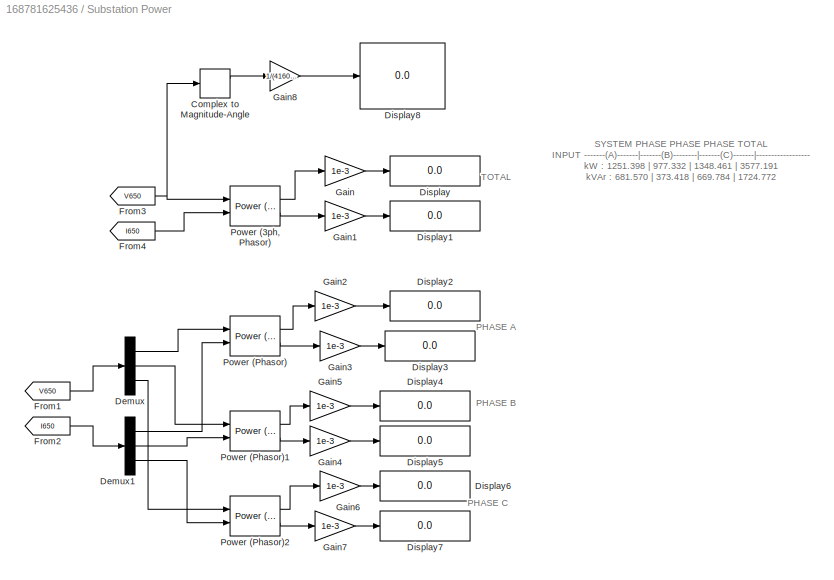
BLOCK [SubSystem] Substation Power
  Ports = []
  RequestExecContextInheritance = off
BLOCK [ComplexToMagnitudeAngle] Substation Power/Complex to Magnitude-Angle
  Ports = [1, 2]
BLOCK [Demux] Substation Power/Demux
  DisplayOption = bar
  Outputs = 3
  Ports = [1, 3]
BLOCK [Demux] Substation Power/Demux1
  DisplayOption = bar
  Outputs = 3
  Ports = [1, 3]
BLOCK [Display] Substation Power/Display
  Decimation = 1
  Ports = [1]
BLOCK [Display] Substation Power/Display1
  Decimation = 1
  Ports = [1]
BLOCK [Display] Substation Power/Display2
  Decimation = 1
  Ports = [1]
BLOCK [Display] Substation Power/Display3
  Decimation = 1
  Ports = [1]
BLOCK [Display] Substation Power/Display4
  Decimation = 1
  Ports = [1]
BLOCK [Display] Substation Power/Display5
  Decimation = 1
  Ports = [1]
BLOCK [Display] Substation Power/Display6
  Decimation = 1
  Ports = [1]
BLOCK [Display] Substation Power/Display7
  Decimation = 1
  Ports = [1]
BLOCK [Display] Substation Power/Display8
  Decimation = 1
  Ports = [1]
BLOCK [From] Substation Power/From1
  GotoTag = V650
  TagVisibility = global
BLOCK [From] Substation Power/From2
  GotoTag = I650
  TagVisibility = global
BLOCK [From] Substation Power/From3
  GotoTag = V650
  TagVisibility = global
BLOCK [From] Substation Power/From4
  GotoTag = I650
  TagVisibility = global
BLOCK [Gain] Substation Power/Gain
  Gain = 1e-3
  OutDataTypeStr = Inherit: Inherit via internal rule
  ParamDataTypeStr = Inherit: Inherit via internal rule
  SaturateOnIntegerOverflow = off
BLOCK [Gain] Substation Power/Gain1
  Gain = 1e-3
  OutDataTypeStr = Inherit: Inherit via internal rule
  ParamDataTypeStr = Inherit: Inherit via internal rule
  SaturateOnIntegerOverflow = off
BLOCK [Gain] Substation Power/Gain2
  Gain = 1e-3
  OutDataTypeStr = Inherit: Inherit via internal rule
  ParamDataTypeStr = Inherit: Inherit via internal rule
  SaturateOnIntegerOverflow = off
BLOCK [Gain] Substation Power/Gain3
  Gain = 1e-3
  OutDataTypeStr = Inherit: Inherit via internal rule
  ParamDataTypeStr = Inherit: Inherit via internal rule
  SaturateOnIntegerOverflow = off
BLOCK [Gain] Substation Power/Gain4
  Gain = 1e-3
  OutDataTypeStr = Inherit: Inherit via internal rule
  ParamDataTypeStr = Inherit: Inherit via internal rule
  SaturateOnIntegerOverflow = off
BLOCK [Gain] Substation Power/Gain5
  Gain = 1e-3
  OutDataTypeStr = Inherit: Inherit via internal rule
  ParamDataTypeStr = Inherit: Inherit via internal rule
  SaturateOnIntegerOverflow = off
BLOCK [Gain] Substation Power/Gain6
  Gain = 1e-3
  OutDataTypeStr = Inherit: Inherit via internal rule
  ParamDataTypeStr = Inherit: Inherit via internal rule
  SaturateOnIntegerOverflow = off
BLOCK [Gain] Substation Power/Gain7
  Gain = 1e-3
  OutDataTypeStr = Inherit: Inherit via internal rule
  ParamDataTypeStr = Inherit: Inherit via internal rule
  SaturateOnIntegerOverflow = off
BLOCK [Gain] Substation Power/Gain8
  Gain = 1/(4160/sqrt(3))*1/sqrt(2)
  OutDataTypeStr = Inherit: Inherit via internal rule
  ParamDataTypeStr = Inherit: Inherit via internal rule
  SaturateOnIntegerOverflow = off
BLOCK [Reference] Substation Power/Power (3ph, Phasor)  REF=powerlib_meascontrol/Measurements/Power
(3ph, Phasor)
  Ports = [2, 2]
  SourceBlock = powerlib_meascontrol/Measurements/Power\n(3ph, Phasor)
  SourceProductBaseCode = PS
  SourceProductName = Simscape Electrical
  SourceType = Power (3ph, Phasor)
BLOCK [Reference] Substation Power/Power (Phasor)  REF=powerlib_meascontrol/Measurements/Power
(Phasor)
  Ports = [2, 2]
  SourceBlock = powerlib_meascontrol/Measurements/Power\n(Phasor)
  SourceProductBaseCode = PS
  SourceProductName = Simscape Electrical
  SourceType = Power (Phasor)
BLOCK [Reference] Substation Power/Power (Phasor)1  REF=powerlib_meascontrol/Measurements/Power
(Phasor)
  Ports = [2, 2]
  SourceBlock = powerlib_meascontrol/Measurements/Power\n(Phasor)
  SourceProductBaseCode = PS
  SourceProductName = Simscape Electrical
  SourceType = Power (Phasor)
BLOCK [Reference] Substation Power/Power (Phasor)2  REF=powerlib_meascontrol/Measurements/Power
(Phasor)
  Ports = [2, 2]
  SourceBlock = powerlib_meascontrol/Measurements/Power\n(Phasor)
  SourceProductBaseCode = PS
  SourceProductName = Simscape Electrical
  SourceType = Power (Phasor)
BLOCK [Reference] Three-Phase Breaker  REF=powerlib/Elements/Three-Phase Breaker
  Ports = [0, 0, 0, 0, 0, 3, 3]
  SourceBlock = powerlib/Elements/Three-Phase Breaker
  SourceProductBaseCode = PS
  SourceProductName = Simscape Electrical
  SourceType = Three-Phase Breaker
BLOCK [Reference] Three-Phase Source  REF=powerlib/Electrical
Sources/Three-Phase Source
  Ports = [0, 0, 0, 0, 0, 0, 3]
  SourceBlock = powerlib/Electrical\nSources/Three-Phase Source
  SourceProductBaseCode = PS
  SourceProductName = Simscape Electrical
  SourceType = Three-Phase Source
BLOCK [Reference] Three-Phase Transformer (Two Windings)  REF=powerlib/Elements/Three-Phase
Transformer
(Two Windings)
  Ports = [0, 0, 0, 0, 0, 3, 3]
  SourceBlock = powerlib/Elements/Three-Phase\nTransformer\n(Two Windings)
  SourceProductBaseCode = PS
  SourceProductName = Simscape Electrical
  SourceType = Three-Phase Transformer (Two Windings)
BLOCK [Reference] XFXFM1  REF=powerlib/Measurements/Three-Phase
V-I Measurement
  Ports = [0, 0, 0, 0, 0, 3, 3]
  SourceBlock = powerlib/Measurements/Three-Phase\nV-I Measurement
  SourceProductBaseCode = PS
  SourceProductName = Simscape Electrical
  SourceType = Three-Phase VI Measurement
BLOCK [Reference] powergui  REF=powerlib/powergui
  Ports = []
  Priority = 1
  SourceBlock = powerlib/powergui
  SourceProductBaseCode = PS
  SourceProductName = Simscape Electrical
  SourceType = PSB option menu block
ANNOTATION (root): Model Developed by Arun Suresh, Dr. Sukumar Kamalasadan, University of North Carolina, Charlotte
ANNOTATION (root): Please consider citing following papers if the model was useful for your research A. Suresh, R. Bisht and S. Kamalasadan, "A Coordinated Control Architecture With Inverter-Based Resources and Legacy Controllers of Power Distribution System for Voltage Profile Balance," in IEEE Transactions on Industry Applications, vol. 58, no. 5, pp. 6701-6712, Sept.-Oct. 2022, doi: 10.1109/TIA.2022.3183030. A. S...<+256ch>
ANNOTATION Regulator 1/Single Phase SVR_A/Line Drop Compensator: Vm=Vsec-Isec(Rc+jXc)
ANNOTATION Regulator 1/Single Phase SVR_A/Transformer with Taps: Isec on CT Ratio base
ANNOTATION Regulator 1/Single Phase SVR_A/Transformer with Taps: Vsec on Pt Ratio base
ANNOTATION Regulator 1/Single Phase SVR_A/Transformer with Taps/Tap Changing Transformer: Reference: Distribution System Model in Simscape : 123 Node Test Feeder, Version 1.0.1 by Graham Dudgeon
ANNOTATION Regulator 1/Single Phase SVR_A/Voltage Regulator Control/Tap Changer Control/Edge Detector: Edge or Slope Detector
ANNOTATION Regulator 1/Single Phase SVR_B/Line Drop Compensator: Vm=Vsec-Isec(Rc+jXc)
ANNOTATION Regulator 1/Single Phase SVR_B/Transformer with Taps: Isec on CT Ratio base
ANNOTATION Regulator 1/Single Phase SVR_B/Transformer with Taps: Vsec on Pt Ratio base
ANNOTATION Regulator 1/Single Phase SVR_B/Transformer with Taps/Tap Changing Transformer: Reference: Distribution System Model in Simscape : 123 Node Test Feeder, Version 1.0.1 by Graham Dudgeon
ANNOTATION Regulator 1/Single Phase SVR_B/Voltage Regulator Control/Tap Changer Control/Edge Detector: Edge or Slope Detector
ANNOTATION Regulator 1/Single Phase SVR_C/Line Drop Compensator: Vm=Vsec-Isec(Rc+jXc)
ANNOTATION Regulator 1/Single Phase SVR_C/Transformer with Taps: Isec on CT Ratio base
ANNOTATION Regulator 1/Single Phase SVR_C/Transformer with Taps: Vsec on Pt Ratio base
ANNOTATION Regulator 1/Single Phase SVR_C/Transformer with Taps/Tap Changing Transformer: Reference: Distribution System Model in Simscape : 123 Node Test Feeder, Version 1.0.1 by Graham Dudgeon
ANNOTATION Regulator 1/Single Phase SVR_C/Voltage Regulator Control/Tap Changer Control/Edge Detector: Edge or Slope Detector
ANNOTATION Substation Power: PHASE A
ANNOTATION Substation Power: PHASE B
ANNOTATION Substation Power: PHASE C
ANNOTATION Substation Power: TOTAL
ANNOTATION Substation Power: SYSTEM PHASE PHASE PHASE TOTAL INPUT -------(A)-------|-------(B)--------|-------(C)-------|------------------ kW : 1251.398 | 977.332 | 1348.461 | 3577.191 kVAr : 681.570 | 373.418 | 669.784 | 1724.772
LINE Node Voltages/Complex to Magnitude-Angle:1 -> Node Voltages/Gain8:1
LINE Node Voltages/From10:1 -> Node Voltages/Mux:14
LINE Node Voltages/From11:1 -> Node Voltages/Mux:8
LINE Node Voltages/From12:1 -> Node Voltages/Mux:9
LINE Node Voltages/From13:1 -> Node Voltages/Mux:7
LINE Node Voltages/From14:1 -> Node Voltages/Mux:12
LINE Node Voltages/From15:1 -> Node Voltages/Mux:10
LINE Node Voltages/From17:1 -> Node Voltages/Mux:15
LINE Node Voltages/From18:1 -> Node Voltages/Mux:13
LINE Node Voltages/From1:1 -> Node Voltages/Gain4:1
LINE Node Voltages/From2:1 -> Node Voltages/Mux:2
LINE Node Voltages/From5:1 -> Node Voltages/Mux:3
LINE Node Voltages/From6:1 -> Node Voltages/Mux:1
LINE Node Voltages/From7:1 -> Node Voltages/Mux:11
LINE Node Voltages/From8:1 -> Node Voltages/Mux:4
LINE Node Voltages/From9:1 -> Node Voltages/Gain3:1
LINE Node Voltages/Gain3:1 -> Node Voltages/Mux:6
LINE Node Voltages/Gain4:1 -> Node Voltages/Mux:5
LINE Node Voltages/Gain8:1 -> Node Voltages/To Workspace:1
LINE Node Voltages/Mux:1 -> Node Voltages/Complex to Magnitude-Angle:1
LINE Regulator 1/Mux:1 -> Regulator 1/Tap:1
LINE Regulator 1/Single Phase SVR_A/Line Drop Compensator/Abs1:1 -> Regulator 1/Single Phase SVR_A/Line Drop Compensator/Vm:1
LINE Regulator 1/Single Phase SVR_A/Line Drop Compensator/Gain4:1 -> Regulator 1/Single Phase SVR_A/Line Drop Compensator/Gain5:1
LINE Regulator 1/Single Phase SVR_A/Line Drop Compensator/Gain5:1 -> Regulator 1/Single Phase SVR_A/Line Drop Compensator/Sum1:2
LINE Regulator 1/Single Phase SVR_A/Line Drop Compensator/Gain6:1 -> Regulator 1/Single Phase SVR_A/Line Drop Compensator/Sum1:1
LINE Regulator 1/Single Phase SVR_A/Line Drop Compensator/Isec:1 -> Regulator 1/Single Phase SVR_A/Line Drop Compensator/Gain4:1
LINE Regulator 1/Single Phase SVR_A/Line Drop Compensator/Sum1:1 -> Regulator 1/Single Phase SVR_A/Line Drop Compensator/Abs1:1
LINE Regulator 1/Single Phase SVR_A/Line Drop Compensator/Vsec:1 -> Regulator 1/Single Phase SVR_A/Line Drop Compensator/Gain6:1
NET Regulator 1/Single Phase SVR_A/Line Drop Compensator:1 -> Regulator 1/Single Phase SVR_A/Goto:1, Regulator 1/Single Phase SVR_A/Voltage Regulator Control:1
LINE Regulator 1/Single Phase SVR_A/Transformer with Taps/    :1 -> Regulator 1/Single Phase SVR_A/Transformer with Taps/Memory1:1
LINE Regulator 1/Single Phase SVR_A/Transformer with Taps/ 1:1 -> Regulator 1/Single Phase SVR_A/Transformer with Taps/Memory:1
LINE Regulator 1/Single Phase SVR_A/Transformer with Taps/CT:1 -> Regulator 1/Single Phase SVR_A/Transformer with Taps/ 1:1
LINE Regulator 1/Single Phase SVR_A/Transformer with Taps/Memory1:1 -> Regulator 1/Single Phase SVR_A/Transformer with Taps/Vsec:1
LINE Regulator 1/Single Phase SVR_A/Transformer with Taps/Memory:1 -> Regulator 1/Single Phase SVR_A/Transformer with Taps/Isec:1
LINE Regulator 1/Single Phase SVR_A/Transformer with Taps/PT:1 -> Regulator 1/Single Phase SVR_A/Transformer with Taps/    :1
LINE Regulator 1/Single Phase SVR_A/Transformer with Taps/Tap Changing Transformer/Constant1:1 -> Regulator 1/Single Phase SVR_A/Transformer with Taps/Tap Changing Transformer/Sum1:2
LINE Regulator 1/Single Phase SVR_A/Transformer with Taps/Tap Changing Transformer/Current Measurement1:1 -> Regulator 1/Single Phase SVR_A/Transformer with Taps/Tap Changing Transformer/Goto3:1
LINE Regulator 1/Single Phase SVR_A/Transformer with Taps/Tap Changing Transformer/From1:1 -> Regulator 1/Single Phase SVR_A/Transformer with Taps/Tap Changing Transformer/Controlled Voltage Source2:1
LINE Regulator 1/Single Phase SVR_A/Transformer with Taps/Tap Changing Transformer/From2:1 -> Regulator 1/Single Phase SVR_A/Transformer with Taps/Tap Changing Transformer/Controlled Current Source1:1
LINE Regulator 1/Single Phase SVR_A/Transformer with Taps/Tap Changing Transformer/From3:1 -> Regulator 1/Single Phase SVR_A/Transformer with Taps/Tap Changing Transformer/Product4:1
LINE Regulator 1/Single Phase SVR_A/Transformer with Taps/Tap Changing Transformer/From:1 -> Regulator 1/Single Phase SVR_A/Transformer with Taps/Tap Changing Transformer/Product5:1
NET Regulator 1/Single Phase SVR_A/Transformer with Taps/Tap Changing Transformer/Gain2:1 -> Regulator 1/Single Phase SVR_A/Transformer with Taps/Tap Changing Transformer/Gain4:1, Regulator 1/Single Phase SVR_A/Transformer with Taps/Tap Changing Transformer/Product4:2, Regulator 1/Single Phase SVR_A/Transformer with Taps/Tap Changing Transformer/Sum1:1
LINE Regulator 1/Single Phase SVR_A/Transformer with Taps/Tap Changing Transformer/Gain4:1 -> Regulator 1/Single Phase SVR_A/Transformer with Taps/Tap Changing Transformer/Product5:2
LINE Regulator 1/Single Phase SVR_A/Transformer with Taps/Tap Changing Transformer/Memory1:1 -> Regulator 1/Single Phase SVR_A/Transformer with Taps/Tap Changing Transformer/Goto2:1
LINE Regulator 1/Single Phase SVR_A/Transformer with Taps/Tap Changing Transformer/Memory:1 -> Regulator 1/Single Phase SVR_A/Transformer with Taps/Tap Changing Transformer/Goto1:1
LINE Regulator 1/Single Phase SVR_A/Transformer with Taps/Tap Changing Transformer/Product4:1 -> Regulator 1/Single Phase SVR_A/Transformer with Taps/Tap Changing Transformer/Memory1:1
LINE Regulator 1/Single Phase SVR_A/Transformer with Taps/Tap Changing Transformer/Product5:1 -> Regulator 1/Single Phase SVR_A/Transformer with Taps/Tap Changing Transformer/Memory:1
LINE Regulator 1/Single Phase SVR_A/Transformer with Taps/Tap Changing Transformer/Sum1:1 -> Regulator 1/Single Phase SVR_A/Transformer with Taps/Tap Changing Transformer/Product4:3
LINE Regulator 1/Single Phase SVR_A/Transformer with Taps/Tap Changing Transformer/Tap:1 -> Regulator 1/Single Phase SVR_A/Transformer with Taps/Tap Changing Transformer/Gain2:1
LINE Regulator 1/Single Phase SVR_A/Transformer with Taps/Tap Changing Transformer/Voltage Measurement1:1 -> Regulator 1/Single Phase SVR_A/Transformer with Taps/Tap Changing Transformer/Goto:1
LINE Regulator 1/Single Phase SVR_A/Transformer with Taps/tap:1 -> Regulator 1/Single Phase SVR_A/Transformer with Taps/Tap Changing Transformer:1
LINE Regulator 1/Single Phase SVR_A/Transformer with Taps:1 -> Regulator 1/Single Phase SVR_A/Line Drop Compensator:1
LINE Regulator 1/Single Phase SVR_A/Transformer with Taps:2 -> Regulator 1/Single Phase SVR_A/Line Drop Compensator:2
LINE Regulator 1/Single Phase SVR_A/Voltage Regulator Control/Constant:1 -> Regulator 1/Single Phase SVR_A/Voltage Regulator Control/Voltage regulator:3
LINE Regulator 1/Single Phase SVR_A/Voltage Regulator Control/Tap Changer Control/Constant1:1 -> Regulator 1/Single Phase SVR_A/Voltage Regulator Control/Tap Changer Control/Switch:3
LINE Regulator 1/Single Phase SVR_A/Voltage Regulator Control/Tap Changer Control/Constant:1 -> Regulator 1/Single Phase SVR_A/Voltage Regulator Control/Tap Changer Control/Switch:1
LINE Regulator 1/Single Phase SVR_A/Voltage Regulator Control/Tap Changer Control/Determine tap position/Memory:1 -> Regulator 1/Single Phase SVR_A/Voltage Regulator Control/Tap Changer Control/Determine tap position/Sum:2
LINE Regulator 1/Single Phase SVR_A/Voltage Regulator Control/Tap Changer Control/Determine tap position/NewTap:1 -> Regulator 1/Single Phase SVR_A/Voltage Regulator Control/Tap Changer Control/Determine tap position/Sum:1
NET Regulator 1/Single Phase SVR_A/Voltage Regulator Control/Tap Changer Control/Determine tap position/Saturation:1 -> Regulator 1/Single Phase SVR_A/Voltage Regulator Control/Tap Changer Control/Determine tap position/Memory:1, Regulator 1/Single Phase SVR_A/Voltage Regulator Control/Tap Changer Control/Determine tap position/TapNo:1
LINE Regulator 1/Single Phase SVR_A/Voltage Regulator Control/Tap Changer Control/Determine tap position/Sum:1 -> Regulator 1/Single Phase SVR_A/Voltage Regulator Control/Tap Changer Control/Determine tap position/Saturation:1
NET Regulator 1/Single Phase SVR_A/Voltage Regulator Control/Tap Changer Control/Determine tap position:1 -> Regulator 1/Single Phase SVR_A/Voltage Regulator Control/Tap Changer Control/Mechanical Delay:1, Regulator 1/Single Phase SVR_A/Voltage Regulator Control/Tap Changer Control/Relational Operator:1
NET Regulator 1/Single Phase SVR_A/Voltage Regulator Control/Tap Changer Control/Down :1 -> Regulator 1/Single Phase SVR_A/Voltage Regulator Control/Tap Changer Control/Logical Operator:2, Regulator 1/Single Phase SVR_A/Voltage Regulator Control/Tap Changer Control/Switch:2
LINE Regulator 1/Single Phase SVR_A/Voltage Regulator Control/Tap Changer Control/Edge Detector:1 -> Regulator 1/Single Phase SVR_A/Voltage Regulator Control/Tap Changer Control/Logical Operator1:2
LINE Regulator 1/Single Phase SVR_A/Voltage Regulator Control/Tap Changer Control/Logical Operator1:1 -> Regulator 1/Single Phase SVR_A/Voltage Regulator Control/Tap Changer Control/Determine tap position:trigger
LINE Regulator 1/Single Phase SVR_A/Voltage Regulator Control/Tap Changer Control/Logical Operator:1 -> Regulator 1/Single Phase SVR_A/Voltage Regulator Control/Tap Changer Control/Edge Detector:1
NET Regulator 1/Single Phase SVR_A/Voltage Regulator Control/Tap Changer Control/Mechanical Delay:1 -> Regulator 1/Single Phase SVR_A/Voltage Regulator Control/Tap Changer Control/Relational Operator:2, Regulator 1/Single Phase SVR_A/Voltage Regulator Control/Tap Changer Control/TapNo:1
NET Regulator 1/Single Phase SVR_A/Voltage Regulator Control/Tap Changer Control/Memory:1 -> Regulator 1/Single Phase SVR_A/Voltage Regulator Control/Tap Changer Control/Logical Operator1:1, Regulator 1/Single Phase SVR_A/Voltage Regulator Control/Tap Changer Control/Ready:1
LINE Regulator 1/Single Phase SVR_A/Voltage Regulator Control/Tap Changer Control/Relational Operator:1 -> Regulator 1/Single Phase SVR_A/Voltage Regulator Control/Tap Changer Control/Memory:1
LINE Regulator 1/Single Phase SVR_A/Voltage Regulator Control/Tap Changer Control/Switch:1 -> Regulator 1/Single Phase SVR_A/Voltage Regulator Control/Tap Changer Control/Determine tap position:1
LINE Regulator 1/Single Phase SVR_A/Voltage Regulator Control/Tap Changer Control/Up :1 -> Regulator 1/Single Phase SVR_A/Voltage Regulator Control/Tap Changer Control/Logical Operator:1
LINE Regulator 1/Single Phase SVR_A/Voltage Regulator Control/Tap Changer Control:1 -> Regulator 1/Single Phase SVR_A/Voltage Regulator Control/Tap:1
LINE Regulator 1/Single Phase SVR_A/Voltage Regulator Control/Tap Changer Control:2 -> Regulator 1/Single Phase SVR_A/Voltage Regulator Control/Voltage regulator:2
LINE Regulator 1/Single Phase SVR_A/Voltage Regulator Control/Vm:1 -> Regulator 1/Single Phase SVR_A/Voltage Regulator Control/Voltage regulator:1
NET Regulator 1/Single Phase SVR_A/Voltage Regulator Control/Voltage regulator/Dead Zone:1 -> Regulator 1/Single Phase SVR_A/Voltage Regulator Control/Voltage regulator/Relational Operator1:1, Regulator 1/Single Phase SVR_A/Voltage Regulator Control/Voltage regulator/Relational Operator:1
NET Regulator 1/Single Phase SVR_A/Voltage Regulator Control/Voltage regulator/Discrete Variable Time Delay:1 -> Regulator 1/Single Phase SVR_A/Voltage Regulator Control/Voltage regulator/Logical Operator1:1, Regulator 1/Single Phase SVR_A/Voltage Regulator Control/Voltage regulator/Logical Operator:2
LINE Regulator 1/Single Phase SVR_A/Voltage Regulator Control/Voltage regulator/Logical Operator1:1 -> Regulator 1/Single Phase SVR_A/Voltage Regulator Control/Voltage regulator/On Delay1:1
LINE Regulator 1/Single Phase SVR_A/Voltage Regulator Control/Voltage regulator/Logical Operator:1 -> Regulator 1/Single Phase SVR_A/Voltage Regulator Control/Voltage regulator/On Delay:1
LINE Regulator 1/Single Phase SVR_A/Voltage Regulator Control/Voltage regulator/On Delay1:1 -> Regulator 1/Single Phase SVR_A/Voltage Regulator Control/Voltage regulator/Down:1
LINE Regulator 1/Single Phase SVR_A/Voltage Regulator Control/Voltage regulator/On Delay:1 -> Regulator 1/Single Phase SVR_A/Voltage Regulator Control/Voltage regulator/Up:1
LINE Regulator 1/Single Phase SVR_A/Voltage Regulator Control/Voltage regulator/Ready:1 -> Regulator 1/Single Phase SVR_A/Voltage Regulator Control/Voltage regulator/Discrete Variable Time Delay:1
LINE Regulator 1/Single Phase SVR_A/Voltage Regulator Control/Voltage regulator/RegOn:1 -> Regulator 1/Single Phase SVR_A/Voltage Regulator Control/Voltage regulator/Switch:2
LINE Regulator 1/Single Phase SVR_A/Voltage Regulator Control/Voltage regulator/Relational Operator1:1 -> Regulator 1/Single Phase SVR_A/Voltage Regulator Control/Voltage regulator/Logical Operator1:2
LINE Regulator 1/Single Phase SVR_A/Voltage Regulator Control/Voltage regulator/Relational Operator:1 -> Regulator 1/Single Phase SVR_A/Voltage Regulator Control/Voltage regulator/Logical Operator:1
LINE Regulator 1/Single Phase SVR_A/Voltage Regulator Control/Voltage regulator/Sum:1 -> Regulator 1/Single Phase SVR_A/Voltage Regulator Control/Voltage regulator/Switch:1
LINE Regulator 1/Single Phase SVR_A/Voltage Regulator Control/Voltage regulator/Switch:1 -> Regulator 1/Single Phase SVR_A/Voltage Regulator Control/Voltage regulator/Dead Zone:1
LINE Regulator 1/Single Phase SVR_A/Voltage Regulator Control/Voltage regulator/Vmes (pu):1 -> Regulator 1/Single Phase SVR_A/Voltage Regulator Control/Voltage regulator/Sum:2
LINE Regulator 1/Single Phase SVR_A/Voltage Regulator Control/Voltage regulator/Vref1:1 -> Regulator 1/Single Phase SVR_A/Voltage Regulator Control/Voltage regulator/Relational Operator:2
LINE Regulator 1/Single Phase SVR_A/Voltage Regulator Control/Voltage regulator/Vref2:1 -> Regulator 1/Single Phase SVR_A/Voltage Regulator Control/Voltage regulator/Switch:3
LINE Regulator 1/Single Phase SVR_A/Voltage Regulator Control/Voltage regulator/Vref3:1 -> Regulator 1/Single Phase SVR_A/Voltage Regulator Control/Voltage regulator/Relational Operator1:2
LINE Regulator 1/Single Phase SVR_A/Voltage Regulator Control/Voltage regulator/Vref4:1 -> Regulator 1/Single Phase SVR_A/Voltage Regulator Control/Voltage regulator/Discrete Variable Time Delay:2
LINE Regulator 1/Single Phase SVR_A/Voltage Regulator Control/Voltage regulator/Vref:1 -> Regulator 1/Single Phase SVR_A/Voltage Regulator Control/Voltage regulator/Sum:1
LINE Regulator 1/Single Phase SVR_A/Voltage Regulator Control/Voltage regulator:1 -> Regulator 1/Single Phase SVR_A/Voltage Regulator Control/Tap Changer Control:1
LINE Regulator 1/Single Phase SVR_A/Voltage Regulator Control/Voltage regulator:2 -> Regulator 1/Single Phase SVR_A/Voltage Regulator Control/Tap Changer Control:2
NET Regulator 1/Single Phase SVR_A/Voltage Regulator Control:1 -> Regulator 1/Single Phase SVR_A/Tap:1, Regulator 1/Single Phase SVR_A/Transformer with Taps:1
LINE Regulator 1/Single Phase SVR_A:1 -> Regulator 1/Mux:1
LINE Regulator 1/Single Phase SVR_B/Line Drop Compensator/Abs1:1 -> Regulator 1/Single Phase SVR_B/Line Drop Compensator/Vm:1
LINE Regulator 1/Single Phase SVR_B/Line Drop Compensator/Gain4:1 -> Regulator 1/Single Phase SVR_B/Line Drop Compensator/Gain5:1
LINE Regulator 1/Single Phase SVR_B/Line Drop Compensator/Gain5:1 -> Regulator 1/Single Phase SVR_B/Line Drop Compensator/Sum1:2
LINE Regulator 1/Single Phase SVR_B/Line Drop Compensator/Gain6:1 -> Regulator 1/Single Phase SVR_B/Line Drop Compensator/Sum1:1
LINE Regulator 1/Single Phase SVR_B/Line Drop Compensator/Isec:1 -> Regulator 1/Single Phase SVR_B/Line Drop Compensator/Gain4:1
LINE Regulator 1/Single Phase SVR_B/Line Drop Compensator/Sum1:1 -> Regulator 1/Single Phase SVR_B/Line Drop Compensator/Abs1:1
LINE Regulator 1/Single Phase SVR_B/Line Drop Compensator/Vsec:1 -> Regulator 1/Single Phase SVR_B/Line Drop Compensator/Gain6:1
NET Regulator 1/Single Phase SVR_B/Line Drop Compensator:1 -> Regulator 1/Single Phase SVR_B/Goto:1, Regulator 1/Single Phase SVR_B/Voltage Regulator Control:1
LINE Regulator 1/Single Phase SVR_B/Transformer with Taps/    :1 -> Regulator 1/Single Phase SVR_B/Transformer with Taps/Memory1:1
LINE Regulator 1/Single Phase SVR_B/Transformer with Taps/ 1:1 -> Regulator 1/Single Phase SVR_B/Transformer with Taps/Memory:1
LINE Regulator 1/Single Phase SVR_B/Transformer with Taps/CT:1 -> Regulator 1/Single Phase SVR_B/Transformer with Taps/ 1:1
LINE Regulator 1/Single Phase SVR_B/Transformer with Taps/Memory1:1 -> Regulator 1/Single Phase SVR_B/Transformer with Taps/Vsec:1
LINE Regulator 1/Single Phase SVR_B/Transformer with Taps/Memory:1 -> Regulator 1/Single Phase SVR_B/Transformer with Taps/Isec:1
LINE Regulator 1/Single Phase SVR_B/Transformer with Taps/PT:1 -> Regulator 1/Single Phase SVR_B/Transformer with Taps/    :1
LINE Regulator 1/Single Phase SVR_B/Transformer with Taps/Tap Changing Transformer/Constant1:1 -> Regulator 1/Single Phase SVR_B/Transformer with Taps/Tap Changing Transformer/Sum1:2
LINE Regulator 1/Single Phase SVR_B/Transformer with Taps/Tap Changing Transformer/Current Measurement1:1 -> Regulator 1/Single Phase SVR_B/Transformer with Taps/Tap Changing Transformer/Goto3:1
LINE Regulator 1/Single Phase SVR_B/Transformer with Taps/Tap Changing Transformer/From1:1 -> Regulator 1/Single Phase SVR_B/Transformer with Taps/Tap Changing Transformer/Controlled Voltage Source2:1
LINE Regulator 1/Single Phase SVR_B/Transformer with Taps/Tap Changing Transformer/From2:1 -> Regulator 1/Single Phase SVR_B/Transformer with Taps/Tap Changing Transformer/Controlled Current Source1:1
LINE Regulator 1/Single Phase SVR_B/Transformer with Taps/Tap Changing Transformer/From3:1 -> Regulator 1/Single Phase SVR_B/Transformer with Taps/Tap Changing Transformer/Product4:1
LINE Regulator 1/Single Phase SVR_B/Transformer with Taps/Tap Changing Transformer/From:1 -> Regulator 1/Single Phase SVR_B/Transformer with Taps/Tap Changing Transformer/Product5:1
NET Regulator 1/Single Phase SVR_B/Transformer with Taps/Tap Changing Transformer/Gain2:1 -> Regulator 1/Single Phase SVR_B/Transformer with Taps/Tap Changing Transformer/Gain4:1, Regulator 1/Single Phase SVR_B/Transformer with Taps/Tap Changing Transformer/Product4:2, Regulator 1/Single Phase SVR_B/Transformer with Taps/Tap Changing Transformer/Sum1:1
LINE Regulator 1/Single Phase SVR_B/Transformer with Taps/Tap Changing Transformer/Gain4:1 -> Regulator 1/Single Phase SVR_B/Transformer with Taps/Tap Changing Transformer/Product5:2
LINE Regulator 1/Single Phase SVR_B/Transformer with Taps/Tap Changing Transformer/Memory1:1 -> Regulator 1/Single Phase SVR_B/Transformer with Taps/Tap Changing Transformer/Goto2:1
LINE Regulator 1/Single Phase SVR_B/Transformer with Taps/Tap Changing Transformer/Memory:1 -> Regulator 1/Single Phase SVR_B/Transformer with Taps/Tap Changing Transformer/Goto1:1
LINE Regulator 1/Single Phase SVR_B/Transformer with Taps/Tap Changing Transformer/Product4:1 -> Regulator 1/Single Phase SVR_B/Transformer with Taps/Tap Changing Transformer/Memory1:1
LINE Regulator 1/Single Phase SVR_B/Transformer with Taps/Tap Changing Transformer/Product5:1 -> Regulator 1/Single Phase SVR_B/Transformer with Taps/Tap Changing Transformer/Memory:1
LINE Regulator 1/Single Phase SVR_B/Transformer with Taps/Tap Changing Transformer/Sum1:1 -> Regulator 1/Single Phase SVR_B/Transformer with Taps/Tap Changing Transformer/Product4:3
LINE Regulator 1/Single Phase SVR_B/Transformer with Taps/Tap Changing Transformer/Tap:1 -> Regulator 1/Single Phase SVR_B/Transformer with Taps/Tap Changing Transformer/Gain2:1
LINE Regulator 1/Single Phase SVR_B/Transformer with Taps/Tap Changing Transformer/Voltage Measurement1:1 -> Regulator 1/Single Phase SVR_B/Transformer with Taps/Tap Changing Transformer/Goto:1
LINE Regulator 1/Single Phase SVR_B/Transformer with Taps/tap:1 -> Regulator 1/Single Phase SVR_B/Transformer with Taps/Tap Changing Transformer:1
LINE Regulator 1/Single Phase SVR_B/Transformer with Taps:1 -> Regulator 1/Single Phase SVR_B/Line Drop Compensator:1
LINE Regulator 1/Single Phase SVR_B/Transformer with Taps:2 -> Regulator 1/Single Phase SVR_B/Line Drop Compensator:2
LINE Regulator 1/Single Phase SVR_B/Voltage Regulator Control/Constant:1 -> Regulator 1/Single Phase SVR_B/Voltage Regulator Control/Voltage regulator:3
LINE Regulator 1/Single Phase SVR_B/Voltage Regulator Control/Tap Changer Control/Constant1:1 -> Regulator 1/Single Phase SVR_B/Voltage Regulator Control/Tap Changer Control/Switch:3
LINE Regulator 1/Single Phase SVR_B/Voltage Regulator Control/Tap Changer Control/Constant:1 -> Regulator 1/Single Phase SVR_B/Voltage Regulator Control/Tap Changer Control/Switch:1
LINE Regulator 1/Single Phase SVR_B/Voltage Regulator Control/Tap Changer Control/Determine tap position/Memory:1 -> Regulator 1/Single Phase SVR_B/Voltage Regulator Control/Tap Changer Control/Determine tap position/Sum:2
LINE Regulator 1/Single Phase SVR_B/Voltage Regulator Control/Tap Changer Control/Determine tap position/NewTap:1 -> Regulator 1/Single Phase SVR_B/Voltage Regulator Control/Tap Changer Control/Determine tap position/Sum:1
NET Regulator 1/Single Phase SVR_B/Voltage Regulator Control/Tap Changer Control/Determine tap position/Saturation:1 -> Regulator 1/Single Phase SVR_B/Voltage Regulator Control/Tap Changer Control/Determine tap position/Memory:1, Regulator 1/Single Phase SVR_B/Voltage Regulator Control/Tap Changer Control/Determine tap position/TapNo:1
LINE Regulator 1/Single Phase SVR_B/Voltage Regulator Control/Tap Changer Control/Determine tap position/Sum:1 -> Regulator 1/Single Phase SVR_B/Voltage Regulator Control/Tap Changer Control/Determine tap position/Saturation:1
NET Regulator 1/Single Phase SVR_B/Voltage Regulator Control/Tap Changer Control/Determine tap position:1 -> Regulator 1/Single Phase SVR_B/Voltage Regulator Control/Tap Changer Control/Mechanical Delay:1, Regulator 1/Single Phase SVR_B/Voltage Regulator Control/Tap Changer Control/Relational Operator:1
NET Regulator 1/Single Phase SVR_B/Voltage Regulator Control/Tap Changer Control/Down :1 -> Regulator 1/Single Phase SVR_B/Voltage Regulator Control/Tap Changer Control/Logical Operator:2, Regulator 1/Single Phase SVR_B/Voltage Regulator Control/Tap Changer Control/Switch:2
LINE Regulator 1/Single Phase SVR_B/Voltage Regulator Control/Tap Changer Control/Edge Detector:1 -> Regulator 1/Single Phase SVR_B/Voltage Regulator Control/Tap Changer Control/Logical Operator1:2
LINE Regulator 1/Single Phase SVR_B/Voltage Regulator Control/Tap Changer Control/Logical Operator1:1 -> Regulator 1/Single Phase SVR_B/Voltage Regulator Control/Tap Changer Control/Determine tap position:trigger
LINE Regulator 1/Single Phase SVR_B/Voltage Regulator Control/Tap Changer Control/Logical Operator:1 -> Regulator 1/Single Phase SVR_B/Voltage Regulator Control/Tap Changer Control/Edge Detector:1
NET Regulator 1/Single Phase SVR_B/Voltage Regulator Control/Tap Changer Control/Mechanical Delay:1 -> Regulator 1/Single Phase SVR_B/Voltage Regulator Control/Tap Changer Control/Relational Operator:2, Regulator 1/Single Phase SVR_B/Voltage Regulator Control/Tap Changer Control/TapNo:1
NET Regulator 1/Single Phase SVR_B/Voltage Regulator Control/Tap Changer Control/Memory:1 -> Regulator 1/Single Phase SVR_B/Voltage Regulator Control/Tap Changer Control/Logical Operator1:1, Regulator 1/Single Phase SVR_B/Voltage Regulator Control/Tap Changer Control/Ready:1
LINE Regulator 1/Single Phase SVR_B/Voltage Regulator Control/Tap Changer Control/Relational Operator:1 -> Regulator 1/Single Phase SVR_B/Voltage Regulator Control/Tap Changer Control/Memory:1
LINE Regulator 1/Single Phase SVR_B/Voltage Regulator Control/Tap Changer Control/Switch:1 -> Regulator 1/Single Phase SVR_B/Voltage Regulator Control/Tap Changer Control/Determine tap position:1
LINE Regulator 1/Single Phase SVR_B/Voltage Regulator Control/Tap Changer Control/Up :1 -> Regulator 1/Single Phase SVR_B/Voltage Regulator Control/Tap Changer Control/Logical Operator:1
LINE Regulator 1/Single Phase SVR_B/Voltage Regulator Control/Tap Changer Control:1 -> Regulator 1/Single Phase SVR_B/Voltage Regulator Control/Tap:1
LINE Regulator 1/Single Phase SVR_B/Voltage Regulator Control/Tap Changer Control:2 -> Regulator 1/Single Phase SVR_B/Voltage Regulator Control/Voltage regulator:2
LINE Regulator 1/Single Phase SVR_B/Voltage Regulator Control/Vm:1 -> Regulator 1/Single Phase SVR_B/Voltage Regulator Control/Voltage regulator:1
NET Regulator 1/Single Phase SVR_B/Voltage Regulator Control/Voltage regulator/Dead Zone:1 -> Regulator 1/Single Phase SVR_B/Voltage Regulator Control/Voltage regulator/Relational Operator1:1, Regulator 1/Single Phase SVR_B/Voltage Regulator Control/Voltage regulator/Relational Operator:1
NET Regulator 1/Single Phase SVR_B/Voltage Regulator Control/Voltage regulator/Discrete Variable Time Delay:1 -> Regulator 1/Single Phase SVR_B/Voltage Regulator Control/Voltage regulator/Logical Operator1:1, Regulator 1/Single Phase SVR_B/Voltage Regulator Control/Voltage regulator/Logical Operator:2
LINE Regulator 1/Single Phase SVR_B/Voltage Regulator Control/Voltage regulator/Logical Operator1:1 -> Regulator 1/Single Phase SVR_B/Voltage Regulator Control/Voltage regulator/On Delay1:1
LINE Regulator 1/Single Phase SVR_B/Voltage Regulator Control/Voltage regulator/Logical Operator:1 -> Regulator 1/Single Phase SVR_B/Voltage Regulator Control/Voltage regulator/On Delay:1
LINE Regulator 1/Single Phase SVR_B/Voltage Regulator Control/Voltage regulator/On Delay1:1 -> Regulator 1/Single Phase SVR_B/Voltage Regulator Control/Voltage regulator/Down:1
LINE Regulator 1/Single Phase SVR_B/Voltage Regulator Control/Voltage regulator/On Delay:1 -> Regulator 1/Single Phase SVR_B/Voltage Regulator Control/Voltage regulator/Up:1
LINE Regulator 1/Single Phase SVR_B/Voltage Regulator Control/Voltage regulator/Ready:1 -> Regulator 1/Single Phase SVR_B/Voltage Regulator Control/Voltage regulator/Discrete Variable Time Delay:1
LINE Regulator 1/Single Phase SVR_B/Voltage Regulator Control/Voltage regulator/RegOn:1 -> Regulator 1/Single Phase SVR_B/Voltage Regulator Control/Voltage regulator/Switch:2
LINE Regulator 1/Single Phase SVR_B/Voltage Regulator Control/Voltage regulator/Relational Operator1:1 -> Regulator 1/Single Phase SVR_B/Voltage Regulator Control/Voltage regulator/Logical Operator1:2
LINE Regulator 1/Single Phase SVR_B/Voltage Regulator Control/Voltage regulator/Relational Operator:1 -> Regulator 1/Single Phase SVR_B/Voltage Regulator Control/Voltage regulator/Logical Operator:1
LINE Regulator 1/Single Phase SVR_B/Voltage Regulator Control/Voltage regulator/Sum:1 -> Regulator 1/Single Phase SVR_B/Voltage Regulator Control/Voltage regulator/Switch:1
LINE Regulator 1/Single Phase SVR_B/Voltage Regulator Control/Voltage regulator/Switch:1 -> Regulator 1/Single Phase SVR_B/Voltage Regulator Control/Voltage regulator/Dead Zone:1
LINE Regulator 1/Single Phase SVR_B/Voltage Regulator Control/Voltage regulator/Vmes (pu):1 -> Regulator 1/Single Phase SVR_B/Voltage Regulator Control/Voltage regulator/Sum:2
LINE Regulator 1/Single Phase SVR_B/Voltage Regulator Control/Voltage regulator/Vref1:1 -> Regulator 1/Single Phase SVR_B/Voltage Regulator Control/Voltage regulator/Relational Operator:2
LINE Regulator 1/Single Phase SVR_B/Voltage Regulator Control/Voltage regulator/Vref2:1 -> Regulator 1/Single Phase SVR_B/Voltage Regulator Control/Voltage regulator/Switch:3
LINE Regulator 1/Single Phase SVR_B/Voltage Regulator Control/Voltage regulator/Vref3:1 -> Regulator 1/Single Phase SVR_B/Voltage Regulator Control/Voltage regulator/Relational Operator1:2
LINE Regulator 1/Single Phase SVR_B/Voltage Regulator Control/Voltage regulator/Vref4:1 -> Regulator 1/Single Phase SVR_B/Voltage Regulator Control/Voltage regulator/Discrete Variable Time Delay:2
LINE Regulator 1/Single Phase SVR_B/Voltage Regulator Control/Voltage regulator/Vref:1 -> Regulator 1/Single Phase SVR_B/Voltage Regulator Control/Voltage regulator/Sum:1
LINE Regulator 1/Single Phase SVR_B/Voltage Regulator Control/Voltage regulator:1 -> Regulator 1/Single Phase SVR_B/Voltage Regulator Control/Tap Changer Control:1
LINE Regulator 1/Single Phase SVR_B/Voltage Regulator Control/Voltage regulator:2 -> Regulator 1/Single Phase SVR_B/Voltage Regulator Control/Tap Changer Control:2
NET Regulator 1/Single Phase SVR_B/Voltage Regulator Control:1 -> Regulator 1/Single Phase SVR_B/Tap:1, Regulator 1/Single Phase SVR_B/Transformer with Taps:1
LINE Regulator 1/Single Phase SVR_B:1 -> Regulator 1/Mux:2
LINE Regulator 1/Single Phase SVR_C/Line Drop Compensator/Abs1:1 -> Regulator 1/Single Phase SVR_C/Line Drop Compensator/Vm:1
LINE Regulator 1/Single Phase SVR_C/Line Drop Compensator/Gain4:1 -> Regulator 1/Single Phase SVR_C/Line Drop Compensator/Gain5:1
LINE Regulator 1/Single Phase SVR_C/Line Drop Compensator/Gain5:1 -> Regulator 1/Single Phase SVR_C/Line Drop Compensator/Sum1:2
LINE Regulator 1/Single Phase SVR_C/Line Drop Compensator/Gain6:1 -> Regulator 1/Single Phase SVR_C/Line Drop Compensator/Sum1:1
LINE Regulator 1/Single Phase SVR_C/Line Drop Compensator/Isec:1 -> Regulator 1/Single Phase SVR_C/Line Drop Compensator/Gain4:1
LINE Regulator 1/Single Phase SVR_C/Line Drop Compensator/Sum1:1 -> Regulator 1/Single Phase SVR_C/Line Drop Compensator/Abs1:1
LINE Regulator 1/Single Phase SVR_C/Line Drop Compensator/Vsec:1 -> Regulator 1/Single Phase SVR_C/Line Drop Compensator/Gain6:1
NET Regulator 1/Single Phase SVR_C/Line Drop Compensator:1 -> Regulator 1/Single Phase SVR_C/Goto:1, Regulator 1/Single Phase SVR_C/Voltage Regulator Control:1
LINE Regulator 1/Single Phase SVR_C/Transformer with Taps/    :1 -> Regulator 1/Single Phase SVR_C/Transformer with Taps/Memory1:1
LINE Regulator 1/Single Phase SVR_C/Transformer with Taps/ 1:1 -> Regulator 1/Single Phase SVR_C/Transformer with Taps/Memory:1
LINE Regulator 1/Single Phase SVR_C/Transformer with Taps/CT:1 -> Regulator 1/Single Phase SVR_C/Transformer with Taps/ 1:1
LINE Regulator 1/Single Phase SVR_C/Transformer with Taps/Memory1:1 -> Regulator 1/Single Phase SVR_C/Transformer with Taps/Vsec:1
LINE Regulator 1/Single Phase SVR_C/Transformer with Taps/Memory:1 -> Regulator 1/Single Phase SVR_C/Transformer with Taps/Isec:1
LINE Regulator 1/Single Phase SVR_C/Transformer with Taps/PT:1 -> Regulator 1/Single Phase SVR_C/Transformer with Taps/    :1
LINE Regulator 1/Single Phase SVR_C/Transformer with Taps/Tap Changing Transformer/Constant1:1 -> Regulator 1/Single Phase SVR_C/Transformer with Taps/Tap Changing Transformer/Sum1:2
LINE Regulator 1/Single Phase SVR_C/Transformer with Taps/Tap Changing Transformer/Current Measurement1:1 -> Regulator 1/Single Phase SVR_C/Transformer with Taps/Tap Changing Transformer/Goto3:1
LINE Regulator 1/Single Phase SVR_C/Transformer with Taps/Tap Changing Transformer/From1:1 -> Regulator 1/Single Phase SVR_C/Transformer with Taps/Tap Changing Transformer/Controlled Voltage Source2:1
LINE Regulator 1/Single Phase SVR_C/Transformer with Taps/Tap Changing Transformer/From2:1 -> Regulator 1/Single Phase SVR_C/Transformer with Taps/Tap Changing Transformer/Controlled Current Source1:1
LINE Regulator 1/Single Phase SVR_C/Transformer with Taps/Tap Changing Transformer/From3:1 -> Regulator 1/Single Phase SVR_C/Transformer with Taps/Tap Changing Transformer/Product4:1
LINE Regulator 1/Single Phase SVR_C/Transformer with Taps/Tap Changing Transformer/From:1 -> Regulator 1/Single Phase SVR_C/Transformer with Taps/Tap Changing Transformer/Product5:1
NET Regulator 1/Single Phase SVR_C/Transformer with Taps/Tap Changing Transformer/Gain2:1 -> Regulator 1/Single Phase SVR_C/Transformer with Taps/Tap Changing Transformer/Gain4:1, Regulator 1/Single Phase SVR_C/Transformer with Taps/Tap Changing Transformer/Product4:2, Regulator 1/Single Phase SVR_C/Transformer with Taps/Tap Changing Transformer/Sum1:1
LINE Regulator 1/Single Phase SVR_C/Transformer with Taps/Tap Changing Transformer/Gain4:1 -> Regulator 1/Single Phase SVR_C/Transformer with Taps/Tap Changing Transformer/Product5:2
LINE Regulator 1/Single Phase SVR_C/Transformer with Taps/Tap Changing Transformer/Memory1:1 -> Regulator 1/Single Phase SVR_C/Transformer with Taps/Tap Changing Transformer/Goto2:1
LINE Regulator 1/Single Phase SVR_C/Transformer with Taps/Tap Changing Transformer/Memory:1 -> Regulator 1/Single Phase SVR_C/Transformer with Taps/Tap Changing Transformer/Goto1:1
LINE Regulator 1/Single Phase SVR_C/Transformer with Taps/Tap Changing Transformer/Product4:1 -> Regulator 1/Single Phase SVR_C/Transformer with Taps/Tap Changing Transformer/Memory1:1
LINE Regulator 1/Single Phase SVR_C/Transformer with Taps/Tap Changing Transformer/Product5:1 -> Regulator 1/Single Phase SVR_C/Transformer with Taps/Tap Changing Transformer/Memory:1
LINE Regulator 1/Single Phase SVR_C/Transformer with Taps/Tap Changing Transformer/Sum1:1 -> Regulator 1/Single Phase SVR_C/Transformer with Taps/Tap Changing Transformer/Product4:3
LINE Regulator 1/Single Phase SVR_C/Transformer with Taps/Tap Changing Transformer/Tap:1 -> Regulator 1/Single Phase SVR_C/Transformer with Taps/Tap Changing Transformer/Gain2:1
LINE Regulator 1/Single Phase SVR_C/Transformer with Taps/Tap Changing Transformer/Voltage Measurement1:1 -> Regulator 1/Single Phase SVR_C/Transformer with Taps/Tap Changing Transformer/Goto:1
LINE Regulator 1/Single Phase SVR_C/Transformer with Taps/tap:1 -> Regulator 1/Single Phase SVR_C/Transformer with Taps/Tap Changing Transformer:1
LINE Regulator 1/Single Phase SVR_C/Transformer with Taps:1 -> Regulator 1/Single Phase SVR_C/Line Drop Compensator:1
LINE Regulator 1/Single Phase SVR_C/Transformer with Taps:2 -> Regulator 1/Single Phase SVR_C/Line Drop Compensator:2
LINE Regulator 1/Single Phase SVR_C/Voltage Regulator Control/Constant:1 -> Regulator 1/Single Phase SVR_C/Voltage Regulator Control/Voltage regulator:3
LINE Regulator 1/Single Phase SVR_C/Voltage Regulator Control/Tap Changer Control/Constant1:1 -> Regulator 1/Single Phase SVR_C/Voltage Regulator Control/Tap Changer Control/Switch:3
LINE Regulator 1/Single Phase SVR_C/Voltage Regulator Control/Tap Changer Control/Constant:1 -> Regulator 1/Single Phase SVR_C/Voltage Regulator Control/Tap Changer Control/Switch:1
LINE Regulator 1/Single Phase SVR_C/Voltage Regulator Control/Tap Changer Control/Determine tap position/Memory:1 -> Regulator 1/Single Phase SVR_C/Voltage Regulator Control/Tap Changer Control/Determine tap position/Sum:2
LINE Regulator 1/Single Phase SVR_C/Voltage Regulator Control/Tap Changer Control/Determine tap position/NewTap:1 -> Regulator 1/Single Phase SVR_C/Voltage Regulator Control/Tap Changer Control/Determine tap position/Sum:1
NET Regulator 1/Single Phase SVR_C/Voltage Regulator Control/Tap Changer Control/Determine tap position/Saturation:1 -> Regulator 1/Single Phase SVR_C/Voltage Regulator Control/Tap Changer Control/Determine tap position/Memory:1, Regulator 1/Single Phase SVR_C/Voltage Regulator Control/Tap Changer Control/Determine tap position/TapNo:1
LINE Regulator 1/Single Phase SVR_C/Voltage Regulator Control/Tap Changer Control/Determine tap position/Sum:1 -> Regulator 1/Single Phase SVR_C/Voltage Regulator Control/Tap Changer Control/Determine tap position/Saturation:1
NET Regulator 1/Single Phase SVR_C/Voltage Regulator Control/Tap Changer Control/Determine tap position:1 -> Regulator 1/Single Phase SVR_C/Voltage Regulator Control/Tap Changer Control/Mechanical Delay:1, Regulator 1/Single Phase SVR_C/Voltage Regulator Control/Tap Changer Control/Relational Operator:1
NET Regulator 1/Single Phase SVR_C/Voltage Regulator Control/Tap Changer Control/Down :1 -> Regulator 1/Single Phase SVR_C/Voltage Regulator Control/Tap Changer Control/Logical Operator:2, Regulator 1/Single Phase SVR_C/Voltage Regulator Control/Tap Changer Control/Switch:2
LINE Regulator 1/Single Phase SVR_C/Voltage Regulator Control/Tap Changer Control/Edge Detector:1 -> Regulator 1/Single Phase SVR_C/Voltage Regulator Control/Tap Changer Control/Logical Operator1:2
LINE Regulator 1/Single Phase SVR_C/Voltage Regulator Control/Tap Changer Control/Logical Operator1:1 -> Regulator 1/Single Phase SVR_C/Voltage Regulator Control/Tap Changer Control/Determine tap position:trigger
LINE Regulator 1/Single Phase SVR_C/Voltage Regulator Control/Tap Changer Control/Logical Operator:1 -> Regulator 1/Single Phase SVR_C/Voltage Regulator Control/Tap Changer Control/Edge Detector:1
NET Regulator 1/Single Phase SVR_C/Voltage Regulator Control/Tap Changer Control/Mechanical Delay:1 -> Regulator 1/Single Phase SVR_C/Voltage Regulator Control/Tap Changer Control/Relational Operator:2, Regulator 1/Single Phase SVR_C/Voltage Regulator Control/Tap Changer Control/TapNo:1
NET Regulator 1/Single Phase SVR_C/Voltage Regulator Control/Tap Changer Control/Memory:1 -> Regulator 1/Single Phase SVR_C/Voltage Regulator Control/Tap Changer Control/Logical Operator1:1, Regulator 1/Single Phase SVR_C/Voltage Regulator Control/Tap Changer Control/Ready:1
LINE Regulator 1/Single Phase SVR_C/Voltage Regulator Control/Tap Changer Control/Relational Operator:1 -> Regulator 1/Single Phase SVR_C/Voltage Regulator Control/Tap Changer Control/Memory:1
LINE Regulator 1/Single Phase SVR_C/Voltage Regulator Control/Tap Changer Control/Switch:1 -> Regulator 1/Single Phase SVR_C/Voltage Regulator Control/Tap Changer Control/Determine tap position:1
LINE Regulator 1/Single Phase SVR_C/Voltage Regulator Control/Tap Changer Control/Up :1 -> Regulator 1/Single Phase SVR_C/Voltage Regulator Control/Tap Changer Control/Logical Operator:1
LINE Regulator 1/Single Phase SVR_C/Voltage Regulator Control/Tap Changer Control:1 -> Regulator 1/Single Phase SVR_C/Voltage Regulator Control/Tap:1
LINE Regulator 1/Single Phase SVR_C/Voltage Regulator Control/Tap Changer Control:2 -> Regulator 1/Single Phase SVR_C/Voltage Regulator Control/Voltage regulator:2
LINE Regulator 1/Single Phase SVR_C/Voltage Regulator Control/Vm:1 -> Regulator 1/Single Phase SVR_C/Voltage Regulator Control/Voltage regulator:1
NET Regulator 1/Single Phase SVR_C/Voltage Regulator Control/Voltage regulator/Dead Zone:1 -> Regulator 1/Single Phase SVR_C/Voltage Regulator Control/Voltage regulator/Relational Operator1:1, Regulator 1/Single Phase SVR_C/Voltage Regulator Control/Voltage regulator/Relational Operator:1
NET Regulator 1/Single Phase SVR_C/Voltage Regulator Control/Voltage regulator/Discrete Variable Time Delay:1 -> Regulator 1/Single Phase SVR_C/Voltage Regulator Control/Voltage regulator/Logical Operator1:1, Regulator 1/Single Phase SVR_C/Voltage Regulator Control/Voltage regulator/Logical Operator:2
LINE Regulator 1/Single Phase SVR_C/Voltage Regulator Control/Voltage regulator/Logical Operator1:1 -> Regulator 1/Single Phase SVR_C/Voltage Regulator Control/Voltage regulator/On Delay1:1
LINE Regulator 1/Single Phase SVR_C/Voltage Regulator Control/Voltage regulator/Logical Operator:1 -> Regulator 1/Single Phase SVR_C/Voltage Regulator Control/Voltage regulator/On Delay:1
LINE Regulator 1/Single Phase SVR_C/Voltage Regulator Control/Voltage regulator/On Delay1:1 -> Regulator 1/Single Phase SVR_C/Voltage Regulator Control/Voltage regulator/Down:1
LINE Regulator 1/Single Phase SVR_C/Voltage Regulator Control/Voltage regulator/On Delay:1 -> Regulator 1/Single Phase SVR_C/Voltage Regulator Control/Voltage regulator/Up:1
LINE Regulator 1/Single Phase SVR_C/Voltage Regulator Control/Voltage regulator/Ready:1 -> Regulator 1/Single Phase SVR_C/Voltage Regulator Control/Voltage regulator/Discrete Variable Time Delay:1
LINE Regulator 1/Single Phase SVR_C/Voltage Regulator Control/Voltage regulator/RegOn:1 -> Regulator 1/Single Phase SVR_C/Voltage Regulator Control/Voltage regulator/Switch:2
LINE Regulator 1/Single Phase SVR_C/Voltage Regulator Control/Voltage regulator/Relational Operator1:1 -> Regulator 1/Single Phase SVR_C/Voltage Regulator Control/Voltage regulator/Logical Operator1:2
LINE Regulator 1/Single Phase SVR_C/Voltage Regulator Control/Voltage regulator/Relational Operator:1 -> Regulator 1/Single Phase SVR_C/Voltage Regulator Control/Voltage regulator/Logical Operator:1
LINE Regulator 1/Single Phase SVR_C/Voltage Regulator Control/Voltage regulator/Sum:1 -> Regulator 1/Single Phase SVR_C/Voltage Regulator Control/Voltage regulator/Switch:1
LINE Regulator 1/Single Phase SVR_C/Voltage Regulator Control/Voltage regulator/Switch:1 -> Regulator 1/Single Phase SVR_C/Voltage Regulator Control/Voltage regulator/Dead Zone:1
LINE Regulator 1/Single Phase SVR_C/Voltage Regulator Control/Voltage regulator/Vmes (pu):1 -> Regulator 1/Single Phase SVR_C/Voltage Regulator Control/Voltage regulator/Sum:2
LINE Regulator 1/Single Phase SVR_C/Voltage Regulator Control/Voltage regulator/Vref1:1 -> Regulator 1/Single Phase SVR_C/Voltage Regulator Control/Voltage regulator/Relational Operator:2
LINE Regulator 1/Single Phase SVR_C/Voltage Regulator Control/Voltage regulator/Vref2:1 -> Regulator 1/Single Phase SVR_C/Voltage Regulator Control/Voltage regulator/Switch:3
LINE Regulator 1/Single Phase SVR_C/Voltage Regulator Control/Voltage regulator/Vref3:1 -> Regulator 1/Single Phase SVR_C/Voltage Regulator Control/Voltage regulator/Relational Operator1:2
LINE Regulator 1/Single Phase SVR_C/Voltage Regulator Control/Voltage regulator/Vref4:1 -> Regulator 1/Single Phase SVR_C/Voltage Regulator Control/Voltage regulator/Discrete Variable Time Delay:2
LINE Regulator 1/Single Phase SVR_C/Voltage Regulator Control/Voltage regulator/Vref:1 -> Regulator 1/Single Phase SVR_C/Voltage Regulator Control/Voltage regulator/Sum:1
LINE Regulator 1/Single Phase SVR_C/Voltage Regulator Control/Voltage regulator:1 -> Regulator 1/Single Phase SVR_C/Voltage Regulator Control/Tap Changer Control:1
LINE Regulator 1/Single Phase SVR_C/Voltage Regulator Control/Voltage regulator:2 -> Regulator 1/Single Phase SVR_C/Voltage Regulator Control/Tap Changer Control:2
NET Regulator 1/Single Phase SVR_C/Voltage Regulator Control:1 -> Regulator 1/Single Phase SVR_C/Tap:1, Regulator 1/Single Phase SVR_C/Transformer with Taps:1
LINE Regulator 1/Single Phase SVR_C:1 -> Regulator 1/Mux:3
LINE Regulator 1:1 -> Goto:1
LINE Regulator Taps /Band Width1:1 -> Regulator Taps /Gain2:1
LINE Regulator Taps /Band Width:1 -> Regulator Taps /Gain:1
LINE Regulator Taps /From2:1 -> Regulator Taps /Scope3:2
LINE Regulator Taps /From3:1 -> Regulator Taps /Scope3:3
LINE Regulator Taps /From4:1 -> Regulator Taps /Scope3:4
LINE Regulator Taps /From:1 -> Regulator Taps /Tap:1
LINE Regulator Taps /Gain2:1 -> Regulator Taps /Sum1:2
LINE Regulator Taps /Gain:1 -> Regulator Taps /Sum:2
LINE Regulator Taps /Sum1:1 -> Regulator Taps /Scope3:5
LINE Regulator Taps /Sum:1 -> Regulator Taps /Scope3:1
LINE Regulator Taps /Vref1:1 -> Regulator Taps /Sum1:1
LINE Regulator Taps /Vref:1 -> Regulator Taps /Sum:1
LINE Substation Power/Complex to Magnitude-Angle:1 -> Substation Power/Gain8:1
LINE Substation Power/Demux1:1 -> Substation Power/Power (Phasor):2
LINE Substation Power/Demux1:2 -> Substation Power/Power (Phasor)1:2
LINE Substation Power/Demux1:3 -> Substation Power/Power (Phasor)2:2
LINE Substation Power/Demux:1 -> Substation Power/Power (Phasor):1
LINE Substation Power/Demux:2 -> Substation Power/Power (Phasor)1:1
LINE Substation Power/Demux:3 -> Substation Power/Power (Phasor)2:1
LINE Substation Power/From1:1 -> Substation Power/Demux:1
LINE Substation Power/From2:1 -> Substation Power/Demux1:1
NET Substation Power/From3:1 -> Substation Power/Complex to Magnitude-Angle:1, Substation Power/Power (3ph, Phasor):1
LINE Substation Power/From4:1 -> Substation Power/Power (3ph, Phasor):2
LINE Substation Power/Gain1:1 -> Substation Power/Display1:1
LINE Substation Power/Gain2:1 -> Substation Power/Display2:1
LINE Substation Power/Gain3:1 -> Substation Power/Display3:1
LINE Substation Power/Gain4:1 -> Substation Power/Display5:1
LINE Substation Power/Gain5:1 -> Substation Power/Display4:1
LINE Substation Power/Gain6:1 -> Substation Power/Display6:1
LINE Substation Power/Gain7:1 -> Substation Power/Display7:1
LINE Substation Power/Gain8:1 -> Substation Power/Display8:1
LINE Substation Power/Gain:1 -> Substation Power/Display:1
LINE Substation Power/Power (3ph, Phasor):1 -> Substation Power/Gain:1
LINE Substation Power/Power (3ph, Phasor):2 -> Substation Power/Gain1:1
LINE Substation Power/Power (Phasor)1:1 -> Substation Power/Gain5:1
LINE Substation Power/Power (Phasor)1:2 -> Substation Power/Gain4:1
LINE Substation Power/Power (Phasor)2:1 -> Substation Power/Gain6:1
LINE Substation Power/Power (Phasor)2:2 -> Substation Power/Gain7:1
LINE Substation Power/Power (Phasor):1 -> Substation Power/Gain2:1
LINE Substation Power/Power (Phasor):2 -> Substation Power/Gain3:1
PNET net1: 611 I:LConn1 -- 611 Z:LConn1 -- 611:LConn1
PLINE 611 I:RConn1 -- Ground3:LConn1
PLINE 611 Z:RConn1 -- Ground2:LConn1
PLINE 611/1:LConn1 -- 611/Ground2:LConn1
PLINE 611/1:LConn2 -- 611/Ground12:LConn1
PLINE 611/1:LConn3 -- 611/C:RConn1
PLINE 611/1:RConn1 -- 611/Ground1:LConn1
PLINE 611/1:RConn2 -- 611/Ground9:LConn1
PLINE 611/1:RConn3 -- 611/c:RConn1
PLINE 611:RConn1 -- 684-611 605:LConn1
PNET net2: 632 Yg PQ:LConn1 -- 632-633 602:LConn1 -- 632-671 601:LConn1 -- 632:RConn1
PNET net3: 632 Yg PQ:LConn2 -- 632-633 602:LConn2 -- 632-645 603:RConn1 -- 632-671 601:LConn2 -- 632:RConn2
PNET net4: 632 Yg PQ:LConn3 -- 632-633 602:LConn3 -- 632-645 603:RConn2 -- 632-671 601:LConn3 -- 632:RConn3
PLINE 632-633 602:RConn1 -- 633:LConn1
PLINE 632-633 602:RConn2 -- 633:LConn2
PLINE 632-633 602:RConn3 -- 633:LConn3
PNET net5: 632-645 603:LConn1 -- 645:RConn1 -- 645Y PQ:LConn1
PLINE 632-645 603:LConn2 -- 645:RConn2
PNET net6: 632-671 601:RConn1 -- 671 Yg PQ:LConn1 -- 671:LConn1
PNET net7: 632-671 601:RConn2 -- 671 Yg PQ:LConn2 -- 671:LConn2
PNET net8: 632-671 601:RConn3 -- 671 Yg PQ:LConn3 -- 671:LConn3
PLINE 632:LConn1 -- 650-632 601:RConn1
PLINE 632:LConn2 -- 650-632 601:RConn2
PLINE 632:LConn3 -- 650-632 601:RConn3
PLINE 633:RConn1 -- Three-Phase Transformer (Two Windings):LConn1
PLINE 633:RConn2 -- Three-Phase Transformer (Two Windings):LConn2
PLINE 633:RConn3 -- Three-Phase Transformer (Two Windings):LConn3
PLINE 634 Yg PQ:LConn1 -- 634:RConn1
PLINE 634 Yg PQ:LConn2 -- 634:RConn2
PLINE 634 Yg PQ:LConn3 -- 634:RConn3
PLINE 634:LConn1 -- XFXFM1:RConn1
PLINE 634:LConn2 -- XFXFM1:RConn2
PLINE 634:LConn3 -- XFXFM1:RConn3
PLINE 645-646 603:LConn1 -- 646:RConn1
PLINE 645-646 603:LConn2 -- 646:RConn2
PLINE 645-646 603:RConn1 -- 645:LConn1
PLINE 645-646 603:RConn2 -- 645:LConn2
PLINE 645/1:LConn1 -- 645/Ground12:LConn1
PLINE 645/1:LConn2 -- 645/B:RConn1
PLINE 645/1:LConn3 -- 645/C:RConn1
PLINE 645/1:RConn1 -- 645/Ground9:LConn1
PLINE 645/1:RConn2 -- 645/b:RConn1
PLINE 645/1:RConn3 -- 645/c:RConn1
PLINE 645Y PQ:RConn1 -- Ground:LConn1
PLINE 646 Z:LConn1 -- 646:LConn1
PLINE 646 Z:RConn1 -- 646:LConn2
PLINE 646/1:LConn1 -- 646/Ground12:LConn1
PLINE 646/1:LConn2 -- 646/B:RConn1
PLINE 646/1:LConn3 -- 646/C:RConn1
PLINE 646/1:RConn1 -- 646/Ground9:LConn1
PLINE 646/1:RConn2 -- 646/b:RConn1
PLINE 646/1:RConn3 -- 646/c:RConn1
PLINE 650-632 601:LConn1 -- RG60out:RConn1
PLINE 650-632 601:LConn2 -- RG60out:RConn2
PLINE 650-632 601:LConn3 -- RG60out:RConn3
PLINE 650:LConn1 -- Three-Phase Source:RConn1
PLINE 650:LConn2 -- Three-Phase Source:RConn2
PLINE 650:LConn3 -- Three-Phase Source:RConn3
PLINE 650:RConn1 -- RG60in:LConn1
PLINE 650:RConn2 -- RG60in:LConn2
PLINE 650:RConn3 -- RG60in:LConn3
PLINE 652/1:LConn1 -- 652/A:RConn1
PLINE 652/1:LConn2 -- 652/Ground12:LConn1
PLINE 652/1:LConn3 -- 652/Ground2:LConn1
PLINE 652/1:RConn1 -- 652/a:RConn1
PLINE 652/1:RConn2 -- 652/Ground9:LConn1
PLINE 652/1:RConn3 -- 652/Ground1:LConn1
PLINE 6520Y Z:LConn1 -- 652:LConn1
PLINE 6520Y Z:RConn1 -- Ground1:LConn1
PLINE 652:RConn1 -- 684-652 607:RConn1
PNET net9: 671 D PQ:LConn1 -- 671-680 601:LConn1 -- 671-684 604:RConn1 -- 671:RConn1 -- Three-Phase Breaker:LConn1
PNET net10: 671 D PQ:LConn2 -- 671-680 601:LConn2 -- 671:RConn2 -- Three-Phase Breaker:LConn2
PNET net11: 671 D PQ:LConn3 -- 671-680 601:LConn3 -- 671-684 604:RConn2 -- 671:RConn3 -- Three-Phase Breaker:LConn3
PLINE 671-680 601:RConn1 -- 680:RConn1
PLINE 671-680 601:RConn2 -- 680:RConn2
PLINE 671-680 601:RConn3 -- 680:RConn3
PLINE 671-684 604:LConn1 -- 684:RConn1
PLINE 671-684 604:LConn2 -- 684:RConn2
PNET net12: 675 Y PQ:LConn1 -- 675 Yg Z:LConn1 -- 675:RConn1
PNET net13: 675 Y PQ:LConn2 -- 675 Yg Z:LConn2 -- 675:RConn2
PNET net14: 675 Y PQ:LConn3 -- 675 Yg Z:LConn3 -- 675:RConn3
PLINE 675:LConn1 -- 692-675 606:RConn1
PLINE 675:LConn2 -- 692-675 606:RConn2
PLINE 675:LConn3 -- 692-675 606:RConn3
PLINE 680/1:LConn1 -- 680/A:RConn1
PLINE 680/1:LConn2 -- 680/B:RConn1
PLINE 680/1:LConn3 -- 680/C:RConn1
PLINE 684-611 605:RConn1 -- 684:LConn2
PLINE 684-652 607:LConn1 -- 684:LConn1
PLINE 684/1:LConn1 -- 684/A:RConn1
PLINE 684/1:LConn2 -- 684/Ground12:LConn1
PLINE 684/1:LConn3 -- 684/C:RConn1
PLINE 684/1:RConn1 -- 684/a:RConn1
PLINE 684/1:RConn2 -- 684/Ground9:LConn1
PLINE 684/1:RConn3 -- 684/c:RConn1
PNET net15: 692 D I:LConn1 -- 692:LConn1 -- Three-Phase Breaker:RConn1
PNET net16: 692 D I:LConn2 -- 692:LConn2 -- Three-Phase Breaker:RConn2
PNET net17: 692 D I:LConn3 -- 692:LConn3 -- Three-Phase Breaker:RConn3
PLINE 692-675 606:LConn1 -- 692:RConn1
PLINE 692-675 606:LConn2 -- 692:RConn2
PLINE 692-675 606:LConn3 -- 692:RConn3
PLINE RG60in:RConn1 -- Regulator 1:LConn1
PLINE RG60in:RConn2 -- Regulator 1:LConn2
PLINE RG60in:RConn3 -- Regulator 1:LConn3
PLINE RG60out:LConn1 -- Regulator 1:RConn1
PLINE RG60out:LConn2 -- Regulator 1:RConn2
PLINE RG60out:LConn3 -- Regulator 1:RConn3
PLINE Regulator 1/A:RConn1 -- Regulator 1/Single Phase SVR_A:LConn1
PLINE Regulator 1/B:RConn1 -- Regulator 1/Single Phase SVR_B:LConn1
PLINE Regulator 1/C:RConn1 -- Regulator 1/Single Phase SVR_C:LConn1
PLINE Regulator 1/Single Phase SVR_A/L:RConn1 -- Regulator 1/Single Phase SVR_A/Transformer with Taps:RConn1
PLINE Regulator 1/Single Phase SVR_A/S:RConn1 -- Regulator 1/Single Phase SVR_A/Transformer with Taps:LConn1
PNET net18: Regulator 1/Single Phase SVR_A/Transformer with Taps/CT:LConn1 -- Regulator 1/Single Phase SVR_A/Transformer with Taps/PT:LConn1 -- Regulator 1/Single Phase SVR_A/Transformer with Taps/Tap Changing Transformer:RConn1
PLINE Regulator 1/Single Phase SVR_A/Transformer with Taps/CT:RConn1 -- Regulator 1/Single Phase SVR_A/Transformer with Taps/L:RConn1
PLINE Regulator 1/Single Phase SVR_A/Transformer with Taps/Ground1:LConn1 -- Regulator 1/Single Phase SVR_A/Transformer with Taps/PT:LConn2
PLINE Regulator 1/Single Phase SVR_A/Transformer with Taps/Ground2:LConn1 -- Regulator 1/Single Phase SVR_A/Transformer with Taps/Tap Changing Transformer:RConn2
PLINE Regulator 1/Single Phase SVR_A/Transformer with Taps/Ground3:LConn1 -- Regulator 1/Single Phase SVR_A/Transformer with Taps/Tap Changing Transformer:LConn2
PLINE Regulator 1/Single Phase SVR_A/Transformer with Taps/S:RConn1 -- Regulator 1/Single Phase SVR_A/Transformer with Taps/Tap Changing Transformer:LConn1
PNET net19: Regulator 1/Single Phase SVR_A/Transformer with Taps/Tap Changing Transformer/Controlled Current Source1:LConn1 -- Regulator 1/Single Phase SVR_A/Transformer with Taps/Tap Changing Transformer/Current Measurement1:RConn1 -- Regulator 1/Single Phase SVR_A/Transformer with Taps/Tap Changing Transformer/Series RLC Branch2:RConn1 -- Regulator 1/Single Phase SVR_A/Transformer with Taps/Tap Changing Transformer/Series RLC Branch6:RConn1
PNET net20: Regulator 1/Single Phase SVR_A/Transformer with Taps/Tap Changing Transformer/Controlled Current Source1:RConn1 -- Regulator 1/Single Phase SVR_A/Transformer with Taps/Tap Changing Transformer/L-:RConn1 -- Regulator 1/Single Phase SVR_A/Transformer with Taps/Tap Changing Transformer/S-:RConn1 -- Regulator 1/Single Phase SVR_A/Transformer with Taps/Tap Changing Transformer/Series RLC Branch6:LConn1 -- Regulator 1/Single Phase SVR_A/Transformer with Taps/Tap Changing Transformer/Voltage Measurement1:LConn2
PLINE Regulator 1/Single Phase SVR_A/Transformer with Taps/Tap Changing Transformer/Controlled Voltage Source2:LConn1 -- Regulator 1/Single Phase SVR_A/Transformer with Taps/Tap Changing Transformer/Current Measurement1:LConn1
PLINE Regulator 1/Single Phase SVR_A/Transformer with Taps/Tap Changing Transformer/Controlled Voltage Source2:RConn1 -- Regulator 1/Single Phase SVR_A/Transformer with Taps/Tap Changing Transformer/Series RLC Branch1:LConn1
PLINE Regulator 1/Single Phase SVR_A/Transformer with Taps/Tap Changing Transformer/L+:RConn1 -- Regulator 1/Single Phase SVR_A/Transformer with Taps/Tap Changing Transformer/Series RLC Branch2:LConn1
PNET net21: Regulator 1/Single Phase SVR_A/Transformer with Taps/Tap Changing Transformer/S+:RConn1 -- Regulator 1/Single Phase SVR_A/Transformer with Taps/Tap Changing Transformer/Series RLC Branch1:RConn1 -- Regulator 1/Single Phase SVR_A/Transformer with Taps/Tap Changing Transformer/Voltage Measurement1:LConn1
PLINE Regulator 1/Single Phase SVR_A:RConn1 -- Regulator 1/a:RConn1
PLINE Regulator 1/Single Phase SVR_B/L:RConn1 -- Regulator 1/Single Phase SVR_B/Transformer with Taps:RConn1
PLINE Regulator 1/Single Phase SVR_B/S:RConn1 -- Regulator 1/Single Phase SVR_B/Transformer with Taps:LConn1
PNET net22: Regulator 1/Single Phase SVR_B/Transformer with Taps/CT:LConn1 -- Regulator 1/Single Phase SVR_B/Transformer with Taps/PT:LConn1 -- Regulator 1/Single Phase SVR_B/Transformer with Taps/Tap Changing Transformer:RConn1
PLINE Regulator 1/Single Phase SVR_B/Transformer with Taps/CT:RConn1 -- Regulator 1/Single Phase SVR_B/Transformer with Taps/L:RConn1
PLINE Regulator 1/Single Phase SVR_B/Transformer with Taps/Ground1:LConn1 -- Regulator 1/Single Phase SVR_B/Transformer with Taps/PT:LConn2
PLINE Regulator 1/Single Phase SVR_B/Transformer with Taps/Ground2:LConn1 -- Regulator 1/Single Phase SVR_B/Transformer with Taps/Tap Changing Transformer:RConn2
PLINE Regulator 1/Single Phase SVR_B/Transformer with Taps/Ground3:LConn1 -- Regulator 1/Single Phase SVR_B/Transformer with Taps/Tap Changing Transformer:LConn2
PLINE Regulator 1/Single Phase SVR_B/Transformer with Taps/S:RConn1 -- Regulator 1/Single Phase SVR_B/Transformer with Taps/Tap Changing Transformer:LConn1
PNET net23: Regulator 1/Single Phase SVR_B/Transformer with Taps/Tap Changing Transformer/Controlled Current Source1:LConn1 -- Regulator 1/Single Phase SVR_B/Transformer with Taps/Tap Changing Transformer/Current Measurement1:RConn1 -- Regulator 1/Single Phase SVR_B/Transformer with Taps/Tap Changing Transformer/Series RLC Branch2:RConn1 -- Regulator 1/Single Phase SVR_B/Transformer with Taps/Tap Changing Transformer/Series RLC Branch6:RConn1
PNET net24: Regulator 1/Single Phase SVR_B/Transformer with Taps/Tap Changing Transformer/Controlled Current Source1:RConn1 -- Regulator 1/Single Phase SVR_B/Transformer with Taps/Tap Changing Transformer/L-:RConn1 -- Regulator 1/Single Phase SVR_B/Transformer with Taps/Tap Changing Transformer/S-:RConn1 -- Regulator 1/Single Phase SVR_B/Transformer with Taps/Tap Changing Transformer/Series RLC Branch6:LConn1 -- Regulator 1/Single Phase SVR_B/Transformer with Taps/Tap Changing Transformer/Voltage Measurement1:LConn2
PLINE Regulator 1/Single Phase SVR_B/Transformer with Taps/Tap Changing Transformer/Controlled Voltage Source2:LConn1 -- Regulator 1/Single Phase SVR_B/Transformer with Taps/Tap Changing Transformer/Current Measurement1:LConn1
PLINE Regulator 1/Single Phase SVR_B/Transformer with Taps/Tap Changing Transformer/Controlled Voltage Source2:RConn1 -- Regulator 1/Single Phase SVR_B/Transformer with Taps/Tap Changing Transformer/Series RLC Branch1:LConn1
PLINE Regulator 1/Single Phase SVR_B/Transformer with Taps/Tap Changing Transformer/L+:RConn1 -- Regulator 1/Single Phase SVR_B/Transformer with Taps/Tap Changing Transformer/Series RLC Branch2:LConn1
PNET net25: Regulator 1/Single Phase SVR_B/Transformer with Taps/Tap Changing Transformer/S+:RConn1 -- Regulator 1/Single Phase SVR_B/Transformer with Taps/Tap Changing Transformer/Series RLC Branch1:RConn1 -- Regulator 1/Single Phase SVR_B/Transformer with Taps/Tap Changing Transformer/Voltage Measurement1:LConn1
PLINE Regulator 1/Single Phase SVR_B:RConn1 -- Regulator 1/b:RConn1
PLINE Regulator 1/Single Phase SVR_C/L:RConn1 -- Regulator 1/Single Phase SVR_C/Transformer with Taps:RConn1
PLINE Regulator 1/Single Phase SVR_C/S:RConn1 -- Regulator 1/Single Phase SVR_C/Transformer with Taps:LConn1
PNET net26: Regulator 1/Single Phase SVR_C/Transformer with Taps/CT:LConn1 -- Regulator 1/Single Phase SVR_C/Transformer with Taps/PT:LConn1 -- Regulator 1/Single Phase SVR_C/Transformer with Taps/Tap Changing Transformer:RConn1
PLINE Regulator 1/Single Phase SVR_C/Transformer with Taps/CT:RConn1 -- Regulator 1/Single Phase SVR_C/Transformer with Taps/L:RConn1
PLINE Regulator 1/Single Phase SVR_C/Transformer with Taps/Ground1:LConn1 -- Regulator 1/Single Phase SVR_C/Transformer with Taps/PT:LConn2
PLINE Regulator 1/Single Phase SVR_C/Transformer with Taps/Ground2:LConn1 -- Regulator 1/Single Phase SVR_C/Transformer with Taps/Tap Changing Transformer:RConn2
PLINE Regulator 1/Single Phase SVR_C/Transformer with Taps/Ground3:LConn1 -- Regulator 1/Single Phase SVR_C/Transformer with Taps/Tap Changing Transformer:LConn2
PLINE Regulator 1/Single Phase SVR_C/Transformer with Taps/S:RConn1 -- Regulator 1/Single Phase SVR_C/Transformer with Taps/Tap Changing Transformer:LConn1
PNET net27: Regulator 1/Single Phase SVR_C/Transformer with Taps/Tap Changing Transformer/Controlled Current Source1:LConn1 -- Regulator 1/Single Phase SVR_C/Transformer with Taps/Tap Changing Transformer/Current Measurement1:RConn1 -- Regulator 1/Single Phase SVR_C/Transformer with Taps/Tap Changing Transformer/Series RLC Branch2:RConn1 -- Regulator 1/Single Phase SVR_C/Transformer with Taps/Tap Changing Transformer/Series RLC Branch6:RConn1
PNET net28: Regulator 1/Single Phase SVR_C/Transformer with Taps/Tap Changing Transformer/Controlled Current Source1:RConn1 -- Regulator 1/Single Phase SVR_C/Transformer with Taps/Tap Changing Transformer/L-:RConn1 -- Regulator 1/Single Phase SVR_C/Transformer with Taps/Tap Changing Transformer/S-:RConn1 -- Regulator 1/Single Phase SVR_C/Transformer with Taps/Tap Changing Transformer/Series RLC Branch6:LConn1 -- Regulator 1/Single Phase SVR_C/Transformer with Taps/Tap Changing Transformer/Voltage Measurement1:LConn2
PLINE Regulator 1/Single Phase SVR_C/Transformer with Taps/Tap Changing Transformer/Controlled Voltage Source2:LConn1 -- Regulator 1/Single Phase SVR_C/Transformer with Taps/Tap Changing Transformer/Current Measurement1:LConn1
PLINE Regulator 1/Single Phase SVR_C/Transformer with Taps/Tap Changing Transformer/Controlled Voltage Source2:RConn1 -- Regulator 1/Single Phase SVR_C/Transformer with Taps/Tap Changing Transformer/Series RLC Branch1:LConn1
PLINE Regulator 1/Single Phase SVR_C/Transformer with Taps/Tap Changing Transformer/L+:RConn1 -- Regulator 1/Single Phase SVR_C/Transformer with Taps/Tap Changing Transformer/Series RLC Branch2:LConn1
PNET net29: Regulator 1/Single Phase SVR_C/Transformer with Taps/Tap Changing Transformer/S+:RConn1 -- Regulator 1/Single Phase SVR_C/Transformer with Taps/Tap Changing Transformer/Series RLC Branch1:RConn1 -- Regulator 1/Single Phase SVR_C/Transformer with Taps/Tap Changing Transformer/Voltage Measurement1:LConn1
PLINE Regulator 1/Single Phase SVR_C:RConn1 -- Regulator 1/c:RConn1
PLINE Three-Phase Transformer (Two Windings):RConn1 -- XFXFM1:LConn1
PLINE Three-Phase Transformer (Two Windings):RConn2 -- XFXFM1:LConn2
PLINE Three-Phase Transformer (Two Windings):RConn3 -- XFXFM1:LConn3
note: NET lines group one-source signal fan-out (src -> all destinations, sorted); 1:1 wires keep LINE; PNET lines group multi-terminal physical nets as a canonical sorted terminal list (undirected conserving connections); 2-terminal nets keep the pairwise PLINE form
